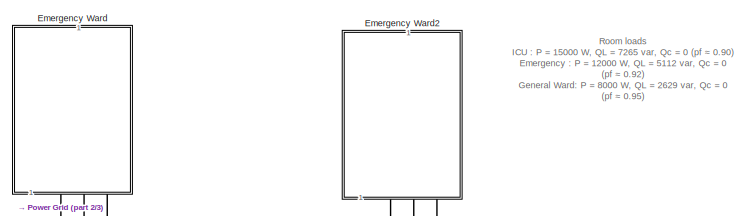
[diagram: root canvas - part 1/3, top center region]
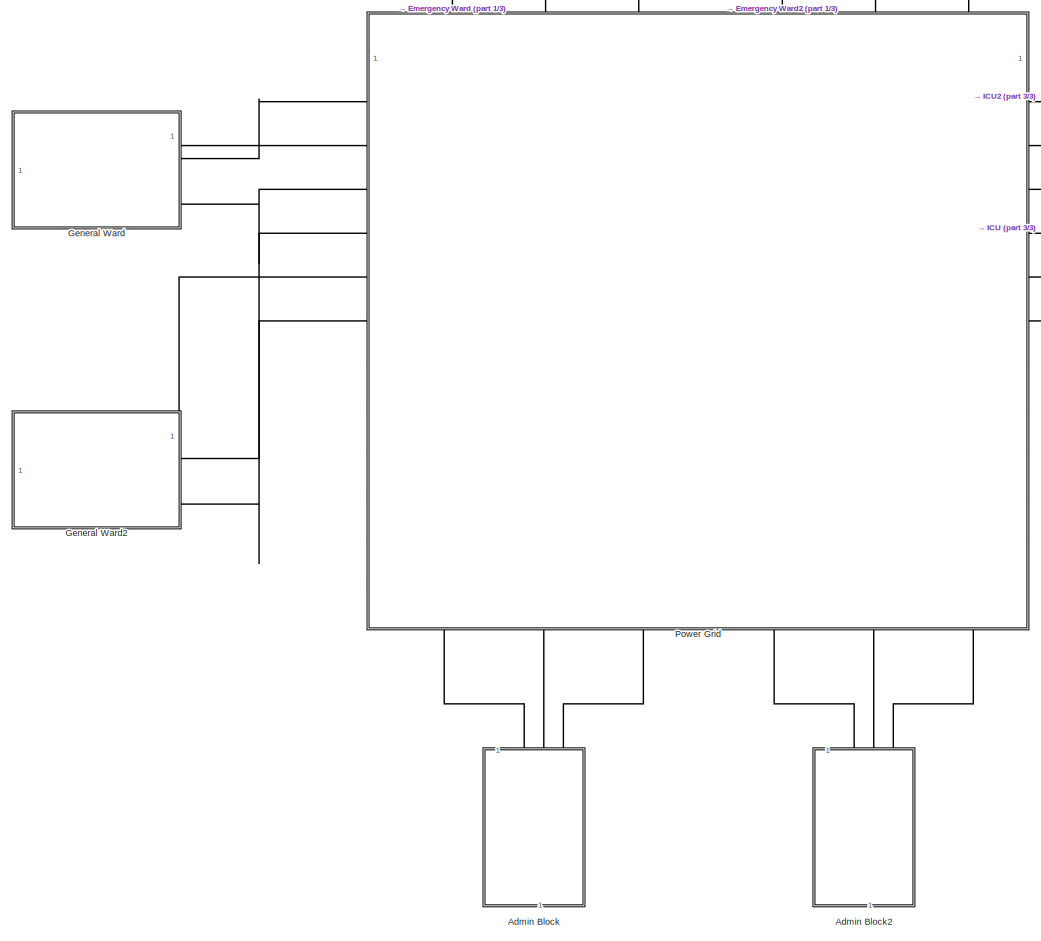
[diagram: root canvas - part 2/3, center side, full height]
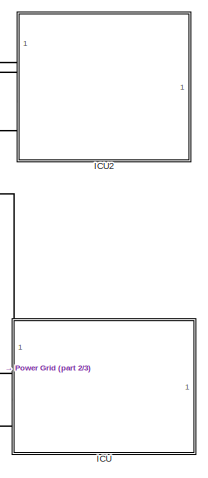
[diagram: root canvas - part 3/3, middle right region]
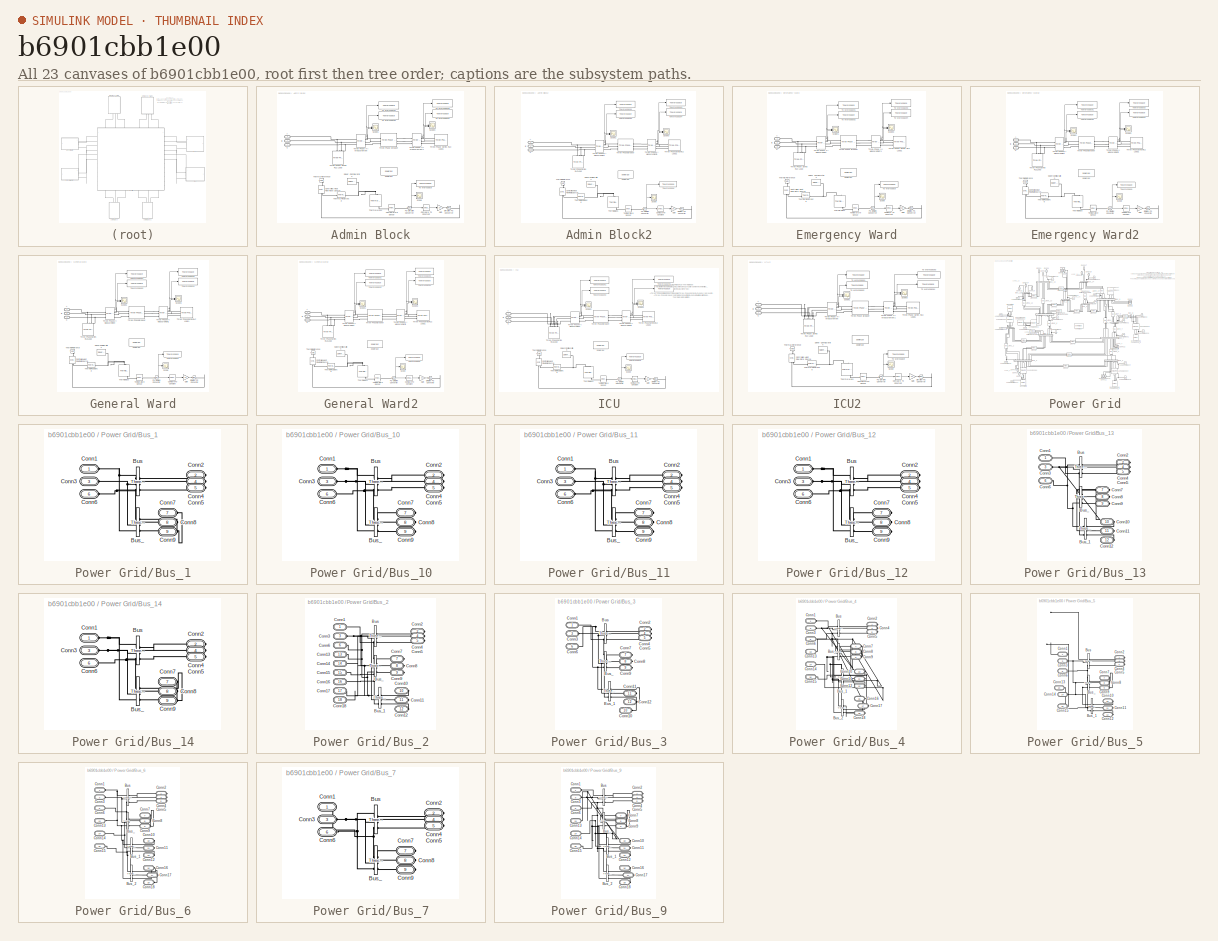
[diagram: thumbnail index - all 23 canvases of the model, root first then tree order]
MODEL slx_b6901cbb1e00
KIND model
CONFIG AbsTol = auto
CONFIG EnableMultiTasking = off
CONFIG FixedStep = auto
CONFIG MaxStep = auto
CONFIG MinStep = auto
CONFIG RelTol = 1e-3
CONFIG SampleTimeConstraint = Unconstrained
CONFIG SolverName = VariableStepAuto
CONFIG StartTime = 0.0
CONFIG StopTime = 5
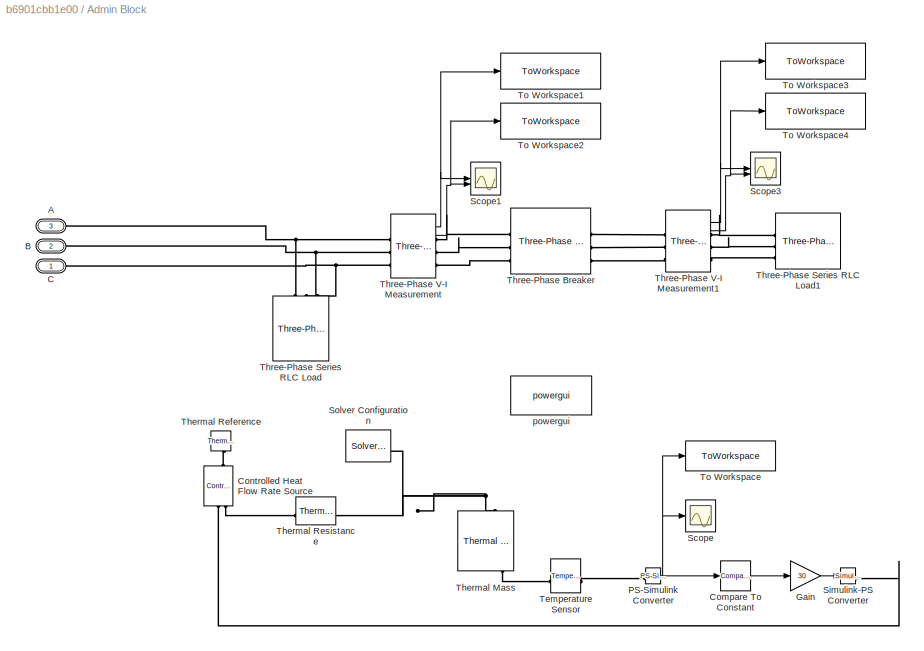
BLOCK [SubSystem] Admin Block
  NameLocation = left
BLOCK [PMIOPort] Admin Block/A
  Port = 3
  Side = Left
BLOCK [PMIOPort] Admin Block/B
  Port = 2
  Side = Left
BLOCK [PMIOPort] Admin Block/C
  Side = Left
BLOCK [Reference] Admin Block/Compare To Constant  REF=simulink/Logic and Bit
Operations/Compare
To Constant
  SourceBlock = simulink/Logic and Bit\nOperations/Compare\nTo Constant
  SourceType = Compare To Constant
BLOCK [Reference] Admin Block/Controlled Heat Flow Rate Source  REF=fl_lib/Thermal/Thermal Sources/Controlled Heat Flow
Rate Source
  NameLocation = right
  SourceBlock = fl_lib/Thermal/Thermal Sources/Controlled Heat Flow\nRate Source
  SourceType = Controlled Heat Flow\nRate Source
BLOCK [Gain] Admin Block/Gain
  Gain = 30
  ParamDataTypeStr = double
BLOCK [Reference] Admin Block/PS-Simulink Converter  REF=nesl_utility/PS-Simulink
Converter
  SourceBlock = nesl_utility/PS-Simulink\nConverter
  SourceType = PS-Simulink\nConverter
BLOCK [Scope] Admin Block/Scope
  ActiveDisplayYMaximum = 312.31320604953584
  ActiveDisplayYMinimum = 283.16288053798348
  ContainerLayout = {"WindowBounds":[128,48,1280,768]}
  Floating = off
  GraphicalSettings = {"Style":{"BackgroundColor":[0.12941176470588237,0.12941176470588237,0.12941176470588237],"AxesColor":[0.07058823529411765,0.07058823529411765,0.07058823529411765],"LabelsColor":[0.8509803921568627,0.8509803921568627,0.8509803921568627],"PreserveColors":false,"Visible":[true],"LineStyle":["-"],"LineWidth":[1.5],"BarWidth":[0.9],"LineColor":["auto"],"LineFaceAlpha":[1],"LineEdgeAlpha":[1],"Marker":...<+2034ch>  <repeated x7 — deduplicated; at blocks: Scope>
  MultipleDisplayCache = [{"MaxYLimMag":333.7066104863116,"MaxYLimReal":312.31320604953584,"MinYLimMag":296.25482105707647,"MinYLimReal":283.16288053798348,"PlotAsMagnitudePhase":false,"ShowGrid":true,"ShowLegend":false,"Title":"%<SignalLabel>","YLabel":""}]  <repeated x6 — deduplicated; at blocks: Scope>
  NumInputPorts = 1
  ScopeFrameLocation = container
  WasSavedAsWebScope = on
  WindowPosition = [128.000000,48.000000,1280.000000,768.000000,]
BLOCK [Scope] Admin Block/Scope1
  ActiveDisplayYMaximum = 34.056738382629064
  ActiveDisplayYMinimum = 34.034866793744406
  DataLoggingVariableName = ScopeData1
  Floating = off
  GraphicalSettings = {"Style":{"BackgroundColor":[0.12941176470588237,0.12941176470588237,0.12941176470588237],"AxesColor":[0.07058823529411765,0.07058823529411765,0.07058823529411765],"LabelsColor":[0.8509803921568627,0.8509803921568627,0.8509803921568627],"PreserveColors":false,"Visible":[true,true,true,true,true,true],"LineStyle":["-","-","-","-","-","-"],"LineWidth":[1.5,1.5,1.5,1.5,1.5,1.5],"BarWidth":[0.9,0.9,0....<+3005ch>  <repeated x4 — deduplicated; at blocks: Scope1>
  LayoutDimensionsString = [1,1]
  MultipleDisplayCache = [{"MaxYLimMag":402.606688680356,"MaxYLimReal":34.056738382629064,"MinYLimMag":0,"MinYLimReal":34.034866793744406,"PlotAsMagnitudePhase":false,"ShowGrid":true,"ShowLegend":false,"Title":"%<SignalLabel>","YLabel":""}]
  NumInputPorts = 2
  ScopeFrameLocation = window
  WasSavedAsWebScope = on
  WindowPosition = [0.000000,36.000000,1536.000000,793.000000,]
BLOCK [Scope] Admin Block/Scope3
  ActiveDisplayYMaximum = 17.089506515472429
  ActiveDisplayYMinimum = -12.660093592625985
  DataLoggingVariableName = ScopeData3
  Floating = off
  GraphicalSettings = {"AxesScalingProperties":{"AlignXAxis":"Center","AlignYAxis":"Center","AutoScaleXAxisLimits":false,"AxesScaling":"Manual","AxesScalingNumUpdates":10,"ExpandOnly":true,"ScaleAxesLimitsAtStop":false,"XAxisDataRange":100,"YAxisDataRange":80},"DisplayProperties":{"ColorOrder":["auto","auto","auto","auto","auto","auto","auto","auto","auto","auto","auto","auto","auto","auto","auto","auto","auto","auto",...<+2711ch>
  MultipleDisplayCache = [{"MaxYLimMag":400.39699046500692,"MaxYLimReal":17.089506515472429,"MinYLimMag":0,"MinYLimReal":-12.660093592625985,"PlotAsMagnitudePhase":false,"ShowGrid":true,"ShowLegend":false,"Title":"%<SignalLabel>","YLabel":""}]  <repeated x3 — deduplicated; at blocks: Scope3>
  NumInputPorts = 2
  ScopeFrameLocation = window
  WasSavedAsWebScope = on
  WindowPosition = [488.000000,222.000000,546.000000,420.000000,]
BLOCK [Reference] Admin Block/Simulink-PS Converter  REF=nesl_utility/Simulink-PS
Converter
  SourceBlock = nesl_utility/Simulink-PS\nConverter
  SourceType = Simulink-PS\nConverter
BLOCK [Reference] Admin Block/Solver Configuration  REF=nesl_utility/Solver
Configuration
  SourceBlock = nesl_utility/Solver\nConfiguration
  SourceType = Solver\nConfiguration
BLOCK [Reference] Admin Block/Temperature Sensor  REF=fl_lib/Thermal/Thermal Sensors/Temperature Sensor
  SourceBlock = fl_lib/Thermal/Thermal Sensors/Temperature Sensor
  SourceType = Temperature Sensor
BLOCK [Reference] Admin Block/Thermal Mass  REF=fl_lib/Thermal/Thermal Elements/Thermal Mass
  NameLocation = right
  SourceBlock = fl_lib/Thermal/Thermal Elements/Thermal Mass
  SourceType = Thermal Mass
BLOCK [Reference] Admin Block/Thermal Reference  REF=fl_lib/Thermal/Thermal Elements/Thermal Reference
  NameLocation = left
  SourceBlock = fl_lib/Thermal/Thermal Elements/Thermal Reference
  SourceType = Thermal Reference
BLOCK [Reference] Admin Block/Thermal Resistance  REF=fl_lib/Thermal/Thermal Elements/Thermal Resistance
  SourceBlock = fl_lib/Thermal/Thermal Elements/Thermal Resistance
  SourceType = Thermal Resistance
BLOCK [Reference] Admin Block/Three-Phase Breaker  REF=spsThreePhaseBreakerLib/Three-Phase Breaker
  LibrarySourceBlock = sps_lib/Power Grid Elements/Three-Phase Breaker
  SourceBlock = spsThreePhaseBreakerLib/Three-Phase Breaker
  SourceType = Three-Phase Breaker
BLOCK [Reference] Admin Block/Three-Phase Series RLC Load  REF=spsThreePhaseSeriesRLCLoadLib/Three-Phase
Series RLC Load
  AttributesFormatString = \n
  LibrarySourceBlock = sps_lib/Passives/Three-Phase\nSeries RLC Load
  SourceBlock = spsThreePhaseSeriesRLCLoadLib/Three-Phase\nSeries RLC Load
  SourceType = Three-Phase Series RLC Load
BLOCK [Reference] Admin Block/Three-Phase Series RLC Load1  REF=spsThreePhaseSeriesRLCLoadLib/Three-Phase
Series RLC Load
  AttributesFormatString = \n
  LibrarySourceBlock = sps_lib/Passives/Three-Phase\nSeries RLC Load
  NameLocation = right
  SourceBlock = spsThreePhaseSeriesRLCLoadLib/Three-Phase\nSeries RLC Load
  SourceType = Three-Phase Series RLC Load
BLOCK [Reference] Admin Block/Three-Phase V-I Measurement  REF=spsThreePhaseVIMeasurementLib/Three-Phase
V-I Measurement
  LibrarySourceBlock = sps_lib/Sensors and Measurements/Three-Phase\nV-I Measurement
  SourceBlock = spsThreePhaseVIMeasurementLib/Three-Phase\nV-I Measurement
  SourceType = Three-Phase VI Measurement
BLOCK [Reference] Admin Block/Three-Phase V-I Measurement1  REF=spsThreePhaseVIMeasurementLib/Three-Phase
V-I Measurement
  LibrarySourceBlock = sps_lib/Sensors and Measurements/Three-Phase\nV-I Measurement
  SourceBlock = spsThreePhaseVIMeasurementLib/Three-Phase\nV-I Measurement
  SourceType = Three-Phase VI Measurement
BLOCK [ToWorkspace] Admin Block/To Workspace
  FixptAsFi = on
  MaxDataPoints = inf
  SampleTime = -1
  VariableName = ADMIN_TEMP
BLOCK [ToWorkspace] Admin Block/To Workspace1
  FixptAsFi = on
  MaxDataPoints = inf
  SampleTime = -1
  VariableName = ADMIN_V_LOAD
BLOCK [ToWorkspace] Admin Block/To Workspace2
  FixptAsFi = on
  MaxDataPoints = inf
  SampleTime = -1
  VariableName = ADMIN_I_LOAD
BLOCK [ToWorkspace] Admin Block/To Workspace3
  FixptAsFi = on
  MaxDataPoints = inf
  SampleTime = -1
  VariableName = ADMIN_V_HVAC
BLOCK [ToWorkspace] Admin Block/To Workspace4
  FixptAsFi = on
  MaxDataPoints = inf
  SampleTime = -1
  VariableName = ADMIN_I_HVAC
BLOCK [Reference] Admin Block/powergui  REF=sps_lib/powergui
  LibrarySourceBlock = sps_lib/powergui
  Priority = 1
  SourceBlock = sps_lib/powergui
  SourceType = PSB option menu block
BLOCK [SubSystem] Admin Block2
  NameLocation = left
BLOCK [PMIOPort] Admin Block2/A
  Port = 3
  Side = Left
BLOCK [PMIOPort] Admin Block2/B
  Port = 2
  Side = Left
BLOCK [PMIOPort] Admin Block2/C
  Side = Left
BLOCK [Reference] Admin Block2/Compare To Constant  REF=simulink/Logic and Bit
Operations/Compare
To Constant
  SourceBlock = simulink/Logic and Bit\nOperations/Compare\nTo Constant
  SourceType = Compare To Constant
BLOCK [Reference] Admin Block2/Controlled Heat Flow Rate Source  REF=fl_lib/Thermal/Thermal Sources/Controlled Heat Flow
Rate Source
  NameLocation = right
  SourceBlock = fl_lib/Thermal/Thermal Sources/Controlled Heat Flow\nRate Source
  SourceType = Controlled Heat Flow\nRate Source
BLOCK [Gain] Admin Block2/Gain
  Gain = 30
  ParamDataTypeStr = double
BLOCK [Reference] Admin Block2/PS-Simulink Converter  REF=nesl_utility/PS-Simulink
Converter
  SourceBlock = nesl_utility/PS-Simulink\nConverter
  SourceType = PS-Simulink\nConverter
BLOCK [Scope] Admin Block2/Scope
  ActiveDisplayYMaximum = 312.31320604953584
  ActiveDisplayYMinimum = 283.16288053798348
  ContainerLayout = {"WindowBounds":[128,48,1280,768]}
  Floating = off
  NumInputPorts = 1
  ScopeFrameLocation = container
  WasSavedAsWebScope = on
  WindowPosition = [128.000000,48.000000,1280.000000,768.000000,]
BLOCK [Scope] Admin Block2/Scope1
  ActiveDisplayYMaximum = 1
  ActiveDisplayYMinimum = -1
  DataLoggingVariableName = ScopeData1
  Floating = off
  LayoutDimensionsString = [1,1]
  MultipleDisplayCache = [{"MaxYLimMag":1,"MaxYLimReal":1,"MinYLimMag":0,"MinYLimReal":-1,"PlotAsMagnitudePhase":false,"ShowGrid":true,"ShowLegend":false,"Title":"%<SignalLabel>","YLabel":""}]
  NumInputPorts = 2
  ScopeFrameLocation = window
  WasSavedAsWebScope = on
  WindowPosition = [0.000000,36.000000,1536.000000,793.000000,]
BLOCK [Scope] Admin Block2/Scope3
  ActiveDisplayYMaximum = 17.089506515472429
  ActiveDisplayYMinimum = -12.660093592625985
  DataLoggingVariableName = ScopeData3
  Floating = off
  GraphicalSettings = {"AxesScalingProperties":{"AlignXAxis":"Center","AlignYAxis":"Center","AutoScaleXAxisLimits":false,"AxesScaling":"Manual","AxesScalingNumUpdates":10,"ExpandOnly":true,"ScaleAxesLimitsAtStop":false,"XAxisDataRange":100,"YAxisDataRange":80},"DisplayProperties":{"ColorOrder":["auto","auto","auto","auto","auto","auto","auto","auto","auto","auto","auto","auto","auto","auto","auto","auto","auto","auto",...<+2711ch>
  NumInputPorts = 2
  ScopeFrameLocation = window
  WasSavedAsWebScope = on
  WindowPosition = [488.000000,222.000000,546.000000,420.000000,]
BLOCK [Reference] Admin Block2/Simulink-PS Converter  REF=nesl_utility/Simulink-PS
Converter
  SourceBlock = nesl_utility/Simulink-PS\nConverter
  SourceType = Simulink-PS\nConverter
BLOCK [Reference] Admin Block2/Solver Configuration  REF=nesl_utility/Solver
Configuration
  SourceBlock = nesl_utility/Solver\nConfiguration
  SourceType = Solver\nConfiguration
BLOCK [Reference] Admin Block2/Temperature Sensor  REF=fl_lib/Thermal/Thermal Sensors/Temperature Sensor
  SourceBlock = fl_lib/Thermal/Thermal Sensors/Temperature Sensor
  SourceType = Temperature Sensor
BLOCK [Reference] Admin Block2/Thermal Mass  REF=fl_lib/Thermal/Thermal Elements/Thermal Mass
  NameLocation = right
  SourceBlock = fl_lib/Thermal/Thermal Elements/Thermal Mass
  SourceType = Thermal Mass
BLOCK [Reference] Admin Block2/Thermal Reference  REF=fl_lib/Thermal/Thermal Elements/Thermal Reference
  NameLocation = left
  SourceBlock = fl_lib/Thermal/Thermal Elements/Thermal Reference
  SourceType = Thermal Reference
BLOCK [Reference] Admin Block2/Thermal Resistance  REF=fl_lib/Thermal/Thermal Elements/Thermal Resistance
  SourceBlock = fl_lib/Thermal/Thermal Elements/Thermal Resistance
  SourceType = Thermal Resistance
BLOCK [Reference] Admin Block2/Three-Phase Breaker  REF=spsThreePhaseBreakerLib/Three-Phase Breaker
  LibrarySourceBlock = sps_lib/Power Grid Elements/Three-Phase Breaker
  SourceBlock = spsThreePhaseBreakerLib/Three-Phase Breaker
  SourceType = Three-Phase Breaker
BLOCK [Reference] Admin Block2/Three-Phase Series RLC Load  REF=spsThreePhaseSeriesRLCLoadLib/Three-Phase
Series RLC Load
  AttributesFormatString = \n
  LibrarySourceBlock = sps_lib/Passives/Three-Phase\nSeries RLC Load
  SourceBlock = spsThreePhaseSeriesRLCLoadLib/Three-Phase\nSeries RLC Load
  SourceType = Three-Phase Series RLC Load
BLOCK [Reference] Admin Block2/Three-Phase Series RLC Load1  REF=spsThreePhaseSeriesRLCLoadLib/Three-Phase
Series RLC Load
  AttributesFormatString = \n
  LibrarySourceBlock = sps_lib/Passives/Three-Phase\nSeries RLC Load
  NameLocation = right
  SourceBlock = spsThreePhaseSeriesRLCLoadLib/Three-Phase\nSeries RLC Load
  SourceType = Three-Phase Series RLC Load
BLOCK [Reference] Admin Block2/Three-Phase V-I Measurement  REF=spsThreePhaseVIMeasurementLib/Three-Phase
V-I Measurement
  LibrarySourceBlock = sps_lib/Sensors and Measurements/Three-Phase\nV-I Measurement
  SourceBlock = spsThreePhaseVIMeasurementLib/Three-Phase\nV-I Measurement
  SourceType = Three-Phase VI Measurement
BLOCK [Reference] Admin Block2/Three-Phase V-I Measurement1  REF=spsThreePhaseVIMeasurementLib/Three-Phase
V-I Measurement
  LibrarySourceBlock = sps_lib/Sensors and Measurements/Three-Phase\nV-I Measurement
  SourceBlock = spsThreePhaseVIMeasurementLib/Three-Phase\nV-I Measurement
  SourceType = Three-Phase VI Measurement
BLOCK [ToWorkspace] Admin Block2/To Workspace
  FixptAsFi = on
  MaxDataPoints = inf
  SampleTime = -1
  VariableName = ADMIN2_TEMP
BLOCK [ToWorkspace] Admin Block2/To Workspace1
  FixptAsFi = on
  MaxDataPoints = inf
  SampleTime = -1
  VariableName = ADMIN2_V_LOAD
BLOCK [ToWorkspace] Admin Block2/To Workspace2
  FixptAsFi = on
  MaxDataPoints = inf
  SampleTime = -1
  VariableName = ADMIN2_I_LOAD
BLOCK [ToWorkspace] Admin Block2/To Workspace3
  FixptAsFi = on
  MaxDataPoints = inf
  SampleTime = -1
  VariableName = ADMIN2_V_HVAC
BLOCK [ToWorkspace] Admin Block2/To Workspace4
  FixptAsFi = on
  MaxDataPoints = inf
  SampleTime = -1
  VariableName = ADMIN2_I_HVAC
BLOCK [Reference] Admin Block2/powergui  REF=spspowerguiLib/powergui
  LibrarySourceBlock = sps_lib/powergui
  Priority = 1
  SourceBlock = spspowerguiLib/powergui
  SourceType = PSB option menu block
BLOCK [SubSystem] Emergency Ward
  NameLocation = right
BLOCK [PMIOPort] Emergency Ward/A
  Side = Left
BLOCK [PMIOPort] Emergency Ward/B
  Port = 2
  Side = Left
BLOCK [PMIOPort] Emergency Ward/C
  Port = 3
  Side = Left
BLOCK [Reference] Emergency Ward/Compare To Constant  REF=simulink/Logic and Bit
Operations/Compare
To Constant
  SourceBlock = simulink/Logic and Bit\nOperations/Compare\nTo Constant
  SourceType = Compare To Constant
BLOCK [Reference] Emergency Ward/Controlled Heat Flow Rate Source  REF=fl_lib/Thermal/Thermal Sources/Controlled Heat Flow
Rate Source
  NameLocation = right
  SourceBlock = fl_lib/Thermal/Thermal Sources/Controlled Heat Flow\nRate Source
  SourceType = Controlled Heat Flow\nRate Source
BLOCK [Gain] Emergency Ward/Gain
  Gain = 50
  ParamDataTypeStr = double
BLOCK [Reference] Emergency Ward/PS-Simulink Converter  REF=nesl_utility/PS-Simulink
Converter
  SourceBlock = nesl_utility/PS-Simulink\nConverter
  SourceType = PS-Simulink\nConverter
BLOCK [Scope] Emergency Ward/Scope
  ActiveDisplayYMaximum = 305.87921634168447
  ActiveDisplayYMinimum = 287.03749587914842
  ContainerLayout = {"WindowBounds":[120,18,1295,806]}
  Floating = off
  MultipleDisplayCache = [{"MaxYLimMag":333.7066104863116,"MaxYLimReal":305.87921634168447,"MinYLimMag":296.25482105707647,"MinYLimReal":287.03749587914842,"PlotAsMagnitudePhase":false,"ShowGrid":true,"ShowLegend":false,"Title":"%<SignalLabel>","YLabel":""}]
  NumInputPorts = 1
  ScopeFrameLocation = container
  Visible = on
  WasSavedAsWebScope = on
  WindowPosition = [128.000000,48.000000,1281.000000,768.000000,]
BLOCK [Scope] Emergency Ward/Scope1
  ActiveDisplayYMaximum = 30737.091390903683
  ActiveDisplayYMinimum = -26725.779530463311
  DataLoggingVariableName = ScopeData1
  Floating = off
  GraphicalSettings = {"Style":{"BackgroundColor":[0.12941176470588237,0.12941176470588237,0.12941176470588237],"AxesColor":[0.07058823529411765,0.07058823529411765,0.07058823529411765],"LabelsColor":[0.8509803921568627,0.8509803921568627,0.8509803921568627],"PreserveColors":false,"Visible":[true,true,true,true,true,true],"LineStyle":["-","-","-","-","-","-"],"LineWidth":[1.5,1.5,1.5,1.5,1.5,1.5],"BarWidth":[0.9,0.9,0....<+3009ch>  <repeated x3 — deduplicated; at blocks: Scope1>
  LayoutDimensionsString = [1,1]
  MultipleDisplayCache = [{"MaxYLimMag":25791.811235050816,"MaxYLimReal":30737.091390903683,"MinYLimMag":0,"MinYLimReal":-26725.779530463311,"PlotAsMagnitudePhase":false,"ShowGrid":true,"ShowLegend":false,"Title":"%<SignalLabel>","YLabel":""}]
  NumInputPorts = 2
  ScopeFrameLocation = window
  WasSavedAsWebScope = on
  WindowPosition = [0.000000,36.000000,1536.000000,793.000000,]
BLOCK [Scope] Emergency Ward/Scope3
  ActiveDisplayYMaximum = 19170.3316166995
  ActiveDisplayYMinimum = -23328.185292377526
  DataLoggingVariableName = ScopeData3
  Floating = off
  GraphicalSettings = {"Style":{"BackgroundColor":[0.12941176470588237,0.12941176470588237,0.12941176470588237],"AxesColor":[0.07058823529411765,0.07058823529411765,0.07058823529411765],"LabelsColor":[0.8509803921568627,0.8509803921568627,0.8509803921568627],"PreserveColors":false,"Visible":[true,true,true,true,true,true],"LineStyle":["-","-","-","-","-","-"],"LineWidth":[1.5,1.5,1.5,1.5,1.5,1.5],"BarWidth":[0.9,0.9,0....<+2688ch>  <repeated x4 — deduplicated; at blocks: Scope3>
  MultipleDisplayCache = [{"MaxYLimMag":23328.185292377526,"MaxYLimReal":19170.3316166995,"MinYLimMag":0,"MinYLimReal":-23328.185292377526,"PlotAsMagnitudePhase":false,"ShowGrid":true,"ShowLegend":false,"Title":"%<SignalLabel>","YLabel":""}]
  NumInputPorts = 2
  ScopeFrameLocation = window
  WasSavedAsWebScope = on
  WindowPosition = [1.000000,49.000000,1536.000000,793.000000,]
BLOCK [Reference] Emergency Ward/Simulink-PS Converter  REF=nesl_utility/Simulink-PS
Converter
  SourceBlock = nesl_utility/Simulink-PS\nConverter
  SourceType = Simulink-PS\nConverter
BLOCK [Reference] Emergency Ward/Solver Configuration  REF=nesl_utility/Solver
Configuration
  SourceBlock = nesl_utility/Solver\nConfiguration
  SourceType = Solver\nConfiguration
BLOCK [Reference] Emergency Ward/Temperature Sensor  REF=fl_lib/Thermal/Thermal Sensors/Temperature Sensor
  SourceBlock = fl_lib/Thermal/Thermal Sensors/Temperature Sensor
  SourceType = Temperature Sensor
BLOCK [Reference] Emergency Ward/Thermal Mass  REF=fl_lib/Thermal/Thermal Elements/Thermal Mass
  NameLocation = right
  SourceBlock = fl_lib/Thermal/Thermal Elements/Thermal Mass
  SourceType = Thermal Mass
BLOCK [Reference] Emergency Ward/Thermal Reference  REF=fl_lib/Thermal/Thermal Elements/Thermal Reference
  NameLocation = left
  SourceBlock = fl_lib/Thermal/Thermal Elements/Thermal Reference
  SourceType = Thermal Reference
BLOCK [Reference] Emergency Ward/Thermal Resistance  REF=fl_lib/Thermal/Thermal Elements/Thermal Resistance
  SourceBlock = fl_lib/Thermal/Thermal Elements/Thermal Resistance
  SourceType = Thermal Resistance
BLOCK [Reference] Emergency Ward/Three-Phase Breaker  REF=spsThreePhaseBreakerLib/Three-Phase Breaker
  LibrarySourceBlock = sps_lib/Power Grid Elements/Three-Phase Breaker
  SourceBlock = spsThreePhaseBreakerLib/Three-Phase Breaker
  SourceType = Three-Phase Breaker
BLOCK [Reference] Emergency Ward/Three-Phase Series RLC Load  REF=spsThreePhaseSeriesRLCLoadLib/Three-Phase
Series RLC Load
  AttributesFormatString = \n
  LibrarySourceBlock = sps_lib/Passives/Three-Phase\nSeries RLC Load
  SourceBlock = spsThreePhaseSeriesRLCLoadLib/Three-Phase\nSeries RLC Load
  SourceType = Three-Phase Series RLC Load
BLOCK [Reference] Emergency Ward/Three-Phase Series RLC Load1  REF=spsThreePhaseSeriesRLCLoadLib/Three-Phase
Series RLC Load
  AttributesFormatString = \n
  LibrarySourceBlock = sps_lib/Passives/Three-Phase\nSeries RLC Load
  NameLocation = right
  SourceBlock = spsThreePhaseSeriesRLCLoadLib/Three-Phase\nSeries RLC Load
  SourceType = Three-Phase Series RLC Load
BLOCK [Reference] Emergency Ward/Three-Phase V-I Measurement  REF=spsThreePhaseVIMeasurementLib/Three-Phase
V-I Measurement
  LibrarySourceBlock = sps_lib/Sensors and Measurements/Three-Phase\nV-I Measurement
  SourceBlock = spsThreePhaseVIMeasurementLib/Three-Phase\nV-I Measurement
  SourceType = Three-Phase VI Measurement
BLOCK [Reference] Emergency Ward/Three-Phase V-I Measurement1  REF=spsThreePhaseVIMeasurementLib/Three-Phase
V-I Measurement
  LibrarySourceBlock = sps_lib/Sensors and Measurements/Three-Phase\nV-I Measurement
  SourceBlock = spsThreePhaseVIMeasurementLib/Three-Phase\nV-I Measurement
  SourceType = Three-Phase VI Measurement
BLOCK [ToWorkspace] Emergency Ward/To Workspace
  FixptAsFi = on
  MaxDataPoints = inf
  SampleTime = -1
  VariableName = EWARD_TEMP
BLOCK [ToWorkspace] Emergency Ward/To Workspace1
  FixptAsFi = on
  MaxDataPoints = inf
  SampleTime = -1
  VariableName = EWARD_V_LOAD
BLOCK [ToWorkspace] Emergency Ward/To Workspace2
  FixptAsFi = on
  MaxDataPoints = inf
  SampleTime = -1
  VariableName = EWARD_I_LOAD
BLOCK [ToWorkspace] Emergency Ward/To Workspace3
  FixptAsFi = on
  MaxDataPoints = inf
  SampleTime = -1
  VariableName = EWARD_V_HVAC
BLOCK [ToWorkspace] Emergency Ward/To Workspace4
  FixptAsFi = on
  MaxDataPoints = inf
  SampleTime = -1
  VariableName = EWARD_I_HVAC
BLOCK [Reference] Emergency Ward/powergui  REF=spspowerguiLib/powergui
  LibrarySourceBlock = sps_lib/powergui
  Priority = 1
  SourceBlock = spspowerguiLib/powergui
  SourceType = PSB option menu block
BLOCK [SubSystem] Emergency Ward2
  NameLocation = right
BLOCK [PMIOPort] Emergency Ward2/A
  Side = Left
BLOCK [PMIOPort] Emergency Ward2/B
  Port = 2
  Side = Left
BLOCK [PMIOPort] Emergency Ward2/C
  Port = 3
  Side = Left
BLOCK [Reference] Emergency Ward2/Compare To Constant  REF=simulink/Logic and Bit
Operations/Compare
To Constant
  SourceBlock = simulink/Logic and Bit\nOperations/Compare\nTo Constant
  SourceType = Compare To Constant
BLOCK [Reference] Emergency Ward2/Controlled Heat Flow Rate Source  REF=fl_lib/Thermal/Thermal Sources/Controlled Heat Flow
Rate Source
  NameLocation = right
  SourceBlock = fl_lib/Thermal/Thermal Sources/Controlled Heat Flow\nRate Source
  SourceType = Controlled Heat Flow\nRate Source
BLOCK [Gain] Emergency Ward2/Gain
  Gain = 50
  ParamDataTypeStr = double
BLOCK [Reference] Emergency Ward2/PS-Simulink Converter  REF=nesl_utility/PS-Simulink
Converter
  SourceBlock = nesl_utility/PS-Simulink\nConverter
  SourceType = PS-Simulink\nConverter
BLOCK [Scope] Emergency Ward2/Scope
  ActiveDisplayYMaximum = 312.31320604953584
  ActiveDisplayYMinimum = 283.16288053798348
  ContainerLayout = {"WindowBounds":[128,48,1280,768]}
  Floating = off
  NumInputPorts = 1
  ScopeFrameLocation = container
  WasSavedAsWebScope = on
  WindowPosition = [128.000000,48.000000,1280.000000,768.000000,]
BLOCK [Scope] Emergency Ward2/Scope1
  ActiveDisplayYMaximum = 21691.878188343202
  ActiveDisplayYMinimum = -21277.928587762108
  DataLoggingVariableName = ScopeData1
  Floating = off
  LayoutDimensionsString = [1,1]
  MultipleDisplayCache = [{"MaxYLimMag":20352.710736163579,"MaxYLimReal":21691.878188343202,"MinYLimMag":0,"MinYLimReal":-21277.928587762108,"PlotAsMagnitudePhase":false,"ShowGrid":true,"ShowLegend":false,"Title":"%<SignalLabel>","YLabel":""}]
  NumInputPorts = 2
  ScopeFrameLocation = window
  WasSavedAsWebScope = on
  WindowPosition = [0.000000,36.000000,1536.000000,793.000000,]
BLOCK [Scope] Emergency Ward2/Scope3
  ActiveDisplayYMaximum = 7246.715049133476
  ActiveDisplayYMinimum = -13751.921422579007
  DataLoggingVariableName = ScopeData3
  Floating = off
  GraphicalSettings = {"Style":{"BackgroundColor":[0.12941176470588237,0.12941176470588237,0.12941176470588237],"AxesColor":[0.07058823529411765,0.07058823529411765,0.07058823529411765],"LabelsColor":[0.8509803921568627,0.8509803921568627,0.8509803921568627],"PreserveColors":false,"Visible":[true,true,true,true,true,true],"LineStyle":["-","-","-","-","-","-"],"LineWidth":[1.5,1.5,1.5,1.5,1.5,1.5],"BarWidth":[0.9,0.9,0....<+2690ch>
  MultipleDisplayCache = [{"MaxYLimMag":13844.828892239131,"MaxYLimReal":7246.715049133476,"MinYLimMag":0,"MinYLimReal":-13751.921422579007,"PlotAsMagnitudePhase":false,"ShowGrid":true,"ShowLegend":false,"Title":"%<SignalLabel>","YLabel":""}]
  NumInputPorts = 2
  ScopeFrameLocation = window
  WasSavedAsWebScope = on
  WindowPosition = [488.000000,222.000000,546.000000,420.000000,]
BLOCK [Reference] Emergency Ward2/Simulink-PS Converter  REF=nesl_utility/Simulink-PS
Converter
  SourceBlock = nesl_utility/Simulink-PS\nConverter
  SourceType = Simulink-PS\nConverter
BLOCK [Reference] Emergency Ward2/Solver Configuration  REF=nesl_utility/Solver
Configuration
  SourceBlock = nesl_utility/Solver\nConfiguration
  SourceType = Solver\nConfiguration
BLOCK [Reference] Emergency Ward2/Temperature Sensor  REF=fl_lib/Thermal/Thermal Sensors/Temperature Sensor
  SourceBlock = fl_lib/Thermal/Thermal Sensors/Temperature Sensor
  SourceType = Temperature Sensor
BLOCK [Reference] Emergency Ward2/Thermal Mass  REF=fl_lib/Thermal/Thermal Elements/Thermal Mass
  NameLocation = right
  SourceBlock = fl_lib/Thermal/Thermal Elements/Thermal Mass
  SourceType = Thermal Mass
BLOCK [Reference] Emergency Ward2/Thermal Reference  REF=fl_lib/Thermal/Thermal Elements/Thermal Reference
  NameLocation = left
  SourceBlock = fl_lib/Thermal/Thermal Elements/Thermal Reference
  SourceType = Thermal Reference
BLOCK [Reference] Emergency Ward2/Thermal Resistance  REF=fl_lib/Thermal/Thermal Elements/Thermal Resistance
  SourceBlock = fl_lib/Thermal/Thermal Elements/Thermal Resistance
  SourceType = Thermal Resistance
BLOCK [Reference] Emergency Ward2/Three-Phase Breaker  REF=spsThreePhaseBreakerLib/Three-Phase Breaker
  LibrarySourceBlock = sps_lib/Power Grid Elements/Three-Phase Breaker
  SourceBlock = spsThreePhaseBreakerLib/Three-Phase Breaker
  SourceType = Three-Phase Breaker
BLOCK [Reference] Emergency Ward2/Three-Phase Series RLC Load  REF=spsThreePhaseSeriesRLCLoadLib/Three-Phase
Series RLC Load
  AttributesFormatString = \n
  LibrarySourceBlock = sps_lib/Passives/Three-Phase\nSeries RLC Load
  SourceBlock = spsThreePhaseSeriesRLCLoadLib/Three-Phase\nSeries RLC Load
  SourceType = Three-Phase Series RLC Load
BLOCK [Reference] Emergency Ward2/Three-Phase Series RLC Load1  REF=spsThreePhaseSeriesRLCLoadLib/Three-Phase
Series RLC Load
  AttributesFormatString = \n
  LibrarySourceBlock = sps_lib/Passives/Three-Phase\nSeries RLC Load
  NameLocation = right
  SourceBlock = spsThreePhaseSeriesRLCLoadLib/Three-Phase\nSeries RLC Load
  SourceType = Three-Phase Series RLC Load
BLOCK [Reference] Emergency Ward2/Three-Phase V-I Measurement  REF=spsThreePhaseVIMeasurementLib/Three-Phase
V-I Measurement
  LibrarySourceBlock = sps_lib/Sensors and Measurements/Three-Phase\nV-I Measurement
  SourceBlock = spsThreePhaseVIMeasurementLib/Three-Phase\nV-I Measurement
  SourceType = Three-Phase VI Measurement
BLOCK [Reference] Emergency Ward2/Three-Phase V-I Measurement1  REF=spsThreePhaseVIMeasurementLib/Three-Phase
V-I Measurement
  LibrarySourceBlock = sps_lib/Sensors and Measurements/Three-Phase\nV-I Measurement
  SourceBlock = spsThreePhaseVIMeasurementLib/Three-Phase\nV-I Measurement
  SourceType = Three-Phase VI Measurement
BLOCK [ToWorkspace] Emergency Ward2/To Workspace
  FixptAsFi = on
  MaxDataPoints = inf
  SampleTime = -1
  VariableName = EWARD2_TEMP
BLOCK [ToWorkspace] Emergency Ward2/To Workspace1
  FixptAsFi = on
  MaxDataPoints = inf
  SampleTime = -1
  VariableName = EWARD2_V_LOAD
BLOCK [ToWorkspace] Emergency Ward2/To Workspace2
  FixptAsFi = on
  MaxDataPoints = inf
  SampleTime = -1
  VariableName = EWARD2_I_LOAD
BLOCK [ToWorkspace] Emergency Ward2/To Workspace3
  FixptAsFi = on
  MaxDataPoints = inf
  SampleTime = -1
  VariableName = EWARD2_V_HVAC
BLOCK [ToWorkspace] Emergency Ward2/To Workspace4
  FixptAsFi = on
  MaxDataPoints = inf
  SampleTime = -1
  VariableName = EWARD2_I_HVAC
BLOCK [Reference] Emergency Ward2/powergui  REF=spspowerguiLib/powergui
  LibrarySourceBlock = sps_lib/powergui
  Priority = 1
  SourceBlock = spspowerguiLib/powergui
  SourceType = PSB option menu block
BLOCK [SubSystem] General Ward
  NameLocation = top
BLOCK [PMIOPort] General Ward/A
  Side = Left
BLOCK [PMIOPort] General Ward/B
  Port = 2
  Side = Left
BLOCK [PMIOPort] General Ward/C
  Port = 3
  Side = Left
BLOCK [Reference] General Ward/Compare To Constant  REF=simulink/Logic and Bit
Operations/Compare
To Constant
  SourceBlock = simulink/Logic and Bit\nOperations/Compare\nTo Constant
  SourceType = Compare To Constant
BLOCK [Reference] General Ward/Controlled Heat Flow Rate Source  REF=fl_lib/Thermal/Thermal Sources/Controlled Heat Flow
Rate Source
  NameLocation = right
  SourceBlock = fl_lib/Thermal/Thermal Sources/Controlled Heat Flow\nRate Source
  SourceType = Controlled Heat Flow\nRate Source
BLOCK [Gain] General Ward/Gain
  Gain = 40
  ParamDataTypeStr = double
BLOCK [Reference] General Ward/PS-Simulink Converter  REF=nesl_utility/PS-Simulink
Converter
  SourceBlock = nesl_utility/PS-Simulink\nConverter
  SourceType = PS-Simulink\nConverter
BLOCK [Scope] General Ward/Scope
  ActiveDisplayYMaximum = 312.31320604953584
  ActiveDisplayYMinimum = 283.16288053798348
  ContainerLayout = {"WindowBounds":[128,48,1280,768]}
  Floating = off
  NumInputPorts = 1
  ScopeFrameLocation = container
  WasSavedAsWebScope = on
  WindowPosition = [128.000000,48.000000,1280.000000,768.000000,]
BLOCK [Scope] General Ward/Scope1
  ActiveDisplayYMaximum = 34.046356087024286
  ActiveDisplayYMinimum = 34.045991689279816
  DataLoggingVariableName = ScopeData1
  Floating = off
  LayoutDimensionsString = [1,1]
  MultipleDisplayCache = [{"MaxYLimMag":402.606688680356,"MaxYLimReal":34.046356087024286,"MinYLimMag":0,"MinYLimReal":34.045991689279816,"PlotAsMagnitudePhase":false,"ShowGrid":true,"ShowLegend":false,"Title":"%<SignalLabel>","YLabel":""}]
  NumInputPorts = 2
  ScopeFrameLocation = window
  WasSavedAsWebScope = on
  WindowPosition = [0.000000,36.000000,1536.000000,793.000000,]
BLOCK [Scope] General Ward/Scope3
  ActiveDisplayYMaximum = 17.089506515472429
  ActiveDisplayYMinimum = -12.660093592625985
  DataLoggingVariableName = ScopeData3
  Floating = off
  NumInputPorts = 2
  ScopeFrameLocation = window
  WasSavedAsWebScope = on
  WindowPosition = [488.000000,222.000000,546.000000,420.000000,]
BLOCK [Reference] General Ward/Simulink-PS Converter  REF=nesl_utility/Simulink-PS
Converter
  SourceBlock = nesl_utility/Simulink-PS\nConverter
  SourceType = Simulink-PS\nConverter
BLOCK [Reference] General Ward/Solver Configuration  REF=nesl_utility/Solver
Configuration
  SourceBlock = nesl_utility/Solver\nConfiguration
  SourceType = Solver\nConfiguration
BLOCK [Reference] General Ward/Temperature Sensor  REF=fl_lib/Thermal/Thermal Sensors/Temperature Sensor
  SourceBlock = fl_lib/Thermal/Thermal Sensors/Temperature Sensor
  SourceType = Temperature Sensor
BLOCK [Reference] General Ward/Thermal Mass  REF=fl_lib/Thermal/Thermal Elements/Thermal Mass
  NameLocation = right
  SourceBlock = fl_lib/Thermal/Thermal Elements/Thermal Mass
  SourceType = Thermal Mass
BLOCK [Reference] General Ward/Thermal Reference  REF=fl_lib/Thermal/Thermal Elements/Thermal Reference
  NameLocation = left
  SourceBlock = fl_lib/Thermal/Thermal Elements/Thermal Reference
  SourceType = Thermal Reference
BLOCK [Reference] General Ward/Thermal Resistance  REF=fl_lib/Thermal/Thermal Elements/Thermal Resistance
  SourceBlock = fl_lib/Thermal/Thermal Elements/Thermal Resistance
  SourceType = Thermal Resistance
BLOCK [Reference] General Ward/Three-Phase Breaker  REF=spsThreePhaseBreakerLib/Three-Phase Breaker
  LibrarySourceBlock = sps_lib/Power Grid Elements/Three-Phase Breaker
  SourceBlock = spsThreePhaseBreakerLib/Three-Phase Breaker
  SourceType = Three-Phase Breaker
BLOCK [Reference] General Ward/Three-Phase Series RLC Load  REF=spsThreePhaseSeriesRLCLoadLib/Three-Phase
Series RLC Load
  AttributesFormatString = \n
  LibrarySourceBlock = sps_lib/Passives/Three-Phase\nSeries RLC Load
  SourceBlock = spsThreePhaseSeriesRLCLoadLib/Three-Phase\nSeries RLC Load
  SourceType = Three-Phase Series RLC Load
BLOCK [Reference] General Ward/Three-Phase Series RLC Load1  REF=spsThreePhaseSeriesRLCLoadLib/Three-Phase
Series RLC Load
  AttributesFormatString = \n
  LibrarySourceBlock = sps_lib/Passives/Three-Phase\nSeries RLC Load
  NameLocation = right
  SourceBlock = spsThreePhaseSeriesRLCLoadLib/Three-Phase\nSeries RLC Load
  SourceType = Three-Phase Series RLC Load
BLOCK [Reference] General Ward/Three-Phase V-I Measurement  REF=spsThreePhaseVIMeasurementLib/Three-Phase
V-I Measurement
  LibrarySourceBlock = sps_lib/Sensors and Measurements/Three-Phase\nV-I Measurement
  SourceBlock = spsThreePhaseVIMeasurementLib/Three-Phase\nV-I Measurement
  SourceType = Three-Phase VI Measurement
BLOCK [Reference] General Ward/Three-Phase V-I Measurement1  REF=spsThreePhaseVIMeasurementLib/Three-Phase
V-I Measurement
  LibrarySourceBlock = sps_lib/Sensors and Measurements/Three-Phase\nV-I Measurement
  SourceBlock = spsThreePhaseVIMeasurementLib/Three-Phase\nV-I Measurement
  SourceType = Three-Phase VI Measurement
BLOCK [ToWorkspace] General Ward/To Workspace
  FixptAsFi = on
  MaxDataPoints = inf
  SampleTime = -1
  VariableName = GWARD_TEMP
BLOCK [ToWorkspace] General Ward/To Workspace1
  FixptAsFi = on
  MaxDataPoints = inf
  SampleTime = -1
  VariableName = GWARD_V_LOAD
BLOCK [ToWorkspace] General Ward/To Workspace2
  FixptAsFi = on
  MaxDataPoints = inf
  SampleTime = -1
  VariableName = GWARD_I_LOAD
BLOCK [ToWorkspace] General Ward/To Workspace3
  FixptAsFi = on
  MaxDataPoints = inf
  SampleTime = -1
  VariableName = GWARD_V_HVAC
BLOCK [ToWorkspace] General Ward/To Workspace4
  FixptAsFi = on
  MaxDataPoints = inf
  SampleTime = -1
  VariableName = GWARD_I_HVAC
BLOCK [Reference] General Ward/powergui  REF=spspowerguiLib/powergui
  LibrarySourceBlock = sps_lib/powergui
  Priority = 1
  SourceBlock = spspowerguiLib/powergui
  SourceType = PSB option menu block
BLOCK [SubSystem] General Ward2
  NameLocation = top
BLOCK [PMIOPort] General Ward2/A
  Side = Left
BLOCK [PMIOPort] General Ward2/B
  Port = 2
  Side = Left
BLOCK [PMIOPort] General Ward2/C
  Port = 3
  Side = Left
BLOCK [Reference] General Ward2/Compare To Constant  REF=simulink/Logic and Bit
Operations/Compare
To Constant
  SourceBlock = simulink/Logic and Bit\nOperations/Compare\nTo Constant
  SourceType = Compare To Constant
BLOCK [Reference] General Ward2/Controlled Heat Flow Rate Source  REF=fl_lib/Thermal/Thermal Sources/Controlled Heat Flow
Rate Source
  NameLocation = right
  SourceBlock = fl_lib/Thermal/Thermal Sources/Controlled Heat Flow\nRate Source
  SourceType = Controlled Heat Flow\nRate Source
BLOCK [Gain] General Ward2/Gain
  Gain = 40
  ParamDataTypeStr = double
BLOCK [Reference] General Ward2/PS-Simulink Converter  REF=nesl_utility/PS-Simulink
Converter
  SourceBlock = nesl_utility/PS-Simulink\nConverter
  SourceType = PS-Simulink\nConverter
BLOCK [Scope] General Ward2/Scope
  ActiveDisplayYMaximum = 312.31320604953584
  ActiveDisplayYMinimum = 283.16288053798348
  ContainerLayout = {"WindowBounds":[128,48,1280,768]}
  Floating = off
  NumInputPorts = 1
  ScopeFrameLocation = container
  WasSavedAsWebScope = on
  WindowPosition = [128.000000,48.000000,1280.000000,768.000000,]
BLOCK [Scope] General Ward2/Scope1
  ActiveDisplayYMaximum = 66160.172439438349
  ActiveDisplayYMinimum = -65940.5098785614
  DataLoggingVariableName = ScopeData1
  Floating = off
  GraphicalSettings = {"Style":{"BackgroundColor":[0.12941176470588237,0.12941176470588237,0.12941176470588237],"AxesColor":[0.07058823529411765,0.07058823529411765,0.07058823529411765],"LabelsColor":[0.8509803921568627,0.8509803921568627,0.8509803921568627],"PreserveColors":false,"Visible":[true,true,true,true,true,true],"LineStyle":["-","-","-","-","-","-"],"LineWidth":[1.5,1.5,1.5,1.5,1.5,1.5],"BarWidth":[0.9,0.9,0....<+3553ch>
  LayoutDimensionsString = [1,2]
  MultipleDisplayCache = [{"MaxYLimMag":66160.172439438349,"MaxYLimReal":66160.172439438349,"MinYLimMag":0,"MinYLimReal":-65940.5098785614,"PlotAsMagnitudePhase":false,"ShowGrid":true,"ShowLegend":false,"Title":"%<SignalLabel>","YLabel":""},{"MaxYLimMag":66160.172439438349,"MaxYLimReal":62581.752610942989,"MinYLimMag":0,"MinYLimReal":-62505.975349100845,"PlotAsMagnitudePhase":false,"ShowGrid":true,"ShowLegend":false,"Titl...<+33ch>
  NumInputPorts = 2
  ScopeFrameLocation = window
  WasSavedAsWebScope = on
  WindowPosition = [0.000000,36.000000,1536.000000,793.000000,]
BLOCK [Scope] General Ward2/Scope3
  ActiveDisplayYMaximum = 54528.277103265718
  ActiveDisplayYMinimum = -51286.007351212284
  DataLoggingVariableName = ScopeData3
  Floating = off
  MultipleDisplayCache = [{"MaxYLimMag":54528.277103265718,"MaxYLimReal":54528.277103265718,"MinYLimMag":0,"MinYLimReal":-51286.007351212284,"PlotAsMagnitudePhase":false,"ShowGrid":true,"ShowLegend":false,"Title":"%<SignalLabel>","YLabel":""}]
  NumInputPorts = 2
  ScopeFrameLocation = window
  WasSavedAsWebScope = on
  WindowPosition = [946.000000,201.000000,546.000000,420.000000,]
BLOCK [Reference] General Ward2/Simulink-PS Converter  REF=nesl_utility/Simulink-PS
Converter
  SourceBlock = nesl_utility/Simulink-PS\nConverter
  SourceType = Simulink-PS\nConverter
BLOCK [Reference] General Ward2/Solver Configuration  REF=nesl_utility/Solver
Configuration
  SourceBlock = nesl_utility/Solver\nConfiguration
  SourceType = Solver\nConfiguration
BLOCK [Reference] General Ward2/Temperature Sensor  REF=fl_lib/Thermal/Thermal Sensors/Temperature Sensor
  SourceBlock = fl_lib/Thermal/Thermal Sensors/Temperature Sensor
  SourceType = Temperature Sensor
BLOCK [Reference] General Ward2/Thermal Mass  REF=fl_lib/Thermal/Thermal Elements/Thermal Mass
  NameLocation = right
  SourceBlock = fl_lib/Thermal/Thermal Elements/Thermal Mass
  SourceType = Thermal Mass
BLOCK [Reference] General Ward2/Thermal Reference  REF=fl_lib/Thermal/Thermal Elements/Thermal Reference
  NameLocation = left
  SourceBlock = fl_lib/Thermal/Thermal Elements/Thermal Reference
  SourceType = Thermal Reference
BLOCK [Reference] General Ward2/Thermal Resistance  REF=fl_lib/Thermal/Thermal Elements/Thermal Resistance
  SourceBlock = fl_lib/Thermal/Thermal Elements/Thermal Resistance
  SourceType = Thermal Resistance
BLOCK [Reference] General Ward2/Three-Phase Breaker  REF=spsThreePhaseBreakerLib/Three-Phase Breaker
  LibrarySourceBlock = sps_lib/Power Grid Elements/Three-Phase Breaker
  SourceBlock = spsThreePhaseBreakerLib/Three-Phase Breaker
  SourceType = Three-Phase Breaker
BLOCK [Reference] General Ward2/Three-Phase Series RLC Load  REF=spsThreePhaseSeriesRLCLoadLib/Three-Phase
Series RLC Load
  AttributesFormatString = \n
  LibrarySourceBlock = sps_lib/Passives/Three-Phase\nSeries RLC Load
  SourceBlock = spsThreePhaseSeriesRLCLoadLib/Three-Phase\nSeries RLC Load
  SourceType = Three-Phase Series RLC Load
BLOCK [Reference] General Ward2/Three-Phase Series RLC Load1  REF=spsThreePhaseSeriesRLCLoadLib/Three-Phase
Series RLC Load
  AttributesFormatString = \n
  LibrarySourceBlock = sps_lib/Passives/Three-Phase\nSeries RLC Load
  NameLocation = right
  SourceBlock = spsThreePhaseSeriesRLCLoadLib/Three-Phase\nSeries RLC Load
  SourceType = Three-Phase Series RLC Load
BLOCK [Reference] General Ward2/Three-Phase V-I Measurement  REF=spsThreePhaseVIMeasurementLib/Three-Phase
V-I Measurement
  LibrarySourceBlock = sps_lib/Sensors and Measurements/Three-Phase\nV-I Measurement
  SourceBlock = spsThreePhaseVIMeasurementLib/Three-Phase\nV-I Measurement
  SourceType = Three-Phase VI Measurement
BLOCK [Reference] General Ward2/Three-Phase V-I Measurement1  REF=spsThreePhaseVIMeasurementLib/Three-Phase
V-I Measurement
  LibrarySourceBlock = sps_lib/Sensors and Measurements/Three-Phase\nV-I Measurement
  SourceBlock = spsThreePhaseVIMeasurementLib/Three-Phase\nV-I Measurement
  SourceType = Three-Phase VI Measurement
BLOCK [ToWorkspace] General Ward2/To Workspace
  FixptAsFi = on
  MaxDataPoints = inf
  SampleTime = -1
  VariableName = GWARD2_TEMP
BLOCK [ToWorkspace] General Ward2/To Workspace1
  FixptAsFi = on
  MaxDataPoints = inf
  SampleTime = -1
  VariableName = GWARD2_V_LOAD
BLOCK [ToWorkspace] General Ward2/To Workspace2
  FixptAsFi = on
  MaxDataPoints = inf
  SampleTime = -1
  VariableName = GWARD2_I_LOAD
BLOCK [ToWorkspace] General Ward2/To Workspace3
  FixptAsFi = on
  MaxDataPoints = inf
  SampleTime = -1
  VariableName = GWARD2_V_HVAC
BLOCK [ToWorkspace] General Ward2/To Workspace4
  FixptAsFi = on
  MaxDataPoints = inf
  SampleTime = -1
  VariableName = GWARD2_I_HVAC
BLOCK [Reference] General Ward2/powergui  REF=spspowerguiLib/powergui
  LibrarySourceBlock = sps_lib/powergui
  Priority = 1
  SourceBlock = spspowerguiLib/powergui
  SourceType = PSB option menu block
BLOCK [SubSystem] ICU
BLOCK [PMIOPort] ICU/A
  Side = Left
BLOCK [PMIOPort] ICU/B
  Port = 2
  Side = Left
BLOCK [PMIOPort] ICU/C
  Port = 3
  Side = Left
BLOCK [Reference] ICU/Compare To Constant  REF=simulink/Logic and Bit
Operations/Compare
To Constant
  SourceBlock = simulink/Logic and Bit\nOperations/Compare\nTo Constant
  SourceType = Compare To Constant
BLOCK [Reference] ICU/Controlled Heat Flow Rate Source  REF=fl_lib/Thermal/Thermal Sources/Controlled Heat Flow
Rate Source
  NameLocation = right
  SourceBlock = fl_lib/Thermal/Thermal Sources/Controlled Heat Flow\nRate Source
  SourceType = Controlled Heat Flow\nRate Source
BLOCK [Gain] ICU/Gain
  Gain = 60
  ParamDataTypeStr = double
BLOCK [Reference] ICU/PS-Simulink Converter  REF=nesl_utility/PS-Simulink
Converter
  SourceBlock = nesl_utility/PS-Simulink\nConverter
  SourceType = PS-Simulink\nConverter
BLOCK [Scope] ICU/Scope
  ActiveDisplayYMaximum = 312.31320604953584
  ActiveDisplayYMinimum = 283.16288053798348
  ContainerLayout = {"WindowBounds":[128,48,1280,768]}
  DataLoggingVariableName = ScopeData2
  Floating = off
  NumInputPorts = 1
  ScopeFrameLocation = container
  WasSavedAsWebScope = on
  WindowPosition = [128.000000,48.000000,1280.000000,768.000000,]
BLOCK [Scope] ICU/Scope1
  ActiveDisplayYMaximum = 68052.775528432132
  ActiveDisplayYMinimum = -67716.371531934827
  DataLoggingVariableName = ScopeData4
  Floating = off
  LayoutDimensionsString = [1,1]
  MultipleDisplayCache = [{"MaxYLimMag":68052.775528432132,"MaxYLimReal":68052.775528432132,"MinYLimMag":0,"MinYLimReal":-67716.371531934827,"PlotAsMagnitudePhase":false,"ShowGrid":true,"ShowLegend":false,"Title":"%<SignalLabel>","YLabel":""}]
  NumInputPorts = 2
  ScopeFrameLocation = window
  WasSavedAsWebScope = on
  WindowPosition = [0.000000,36.000000,1536.000000,793.000000,]
BLOCK [Scope] ICU/Scope3
  ActiveDisplayYMaximum = 44462.66579572497
  ActiveDisplayYMinimum = -61025.797080276752
  DataLoggingVariableName = ScopeData5
  Floating = off
  MultipleDisplayCache = [{"MaxYLimMag":55611.011260259445,"MaxYLimReal":44462.66579572497,"MinYLimMag":0,"MinYLimReal":-61025.797080276752,"PlotAsMagnitudePhase":false,"ShowGrid":true,"ShowLegend":false,"Title":"%<SignalLabel>","YLabel":""}]
  NumInputPorts = 2
  ScopeFrameLocation = window
  WasSavedAsWebScope = on
  WindowPosition = [1.000000,49.000000,1536.000000,793.000000,]
BLOCK [Reference] ICU/Simulink-PS Converter  REF=nesl_utility/Simulink-PS
Converter
  SourceBlock = nesl_utility/Simulink-PS\nConverter
  SourceType = Simulink-PS\nConverter
BLOCK [Reference] ICU/Solver Configuration  REF=nesl_utility/Solver
Configuration
  SourceBlock = nesl_utility/Solver\nConfiguration
  SourceType = Solver\nConfiguration
BLOCK [Reference] ICU/Temperature Sensor  REF=fl_lib/Thermal/Thermal Sensors/Temperature Sensor
  SourceBlock = fl_lib/Thermal/Thermal Sensors/Temperature Sensor
  SourceType = Temperature Sensor
BLOCK [Reference] ICU/Thermal Mass  REF=fl_lib/Thermal/Thermal Elements/Thermal Mass
  NameLocation = right
  SourceBlock = fl_lib/Thermal/Thermal Elements/Thermal Mass
  SourceType = Thermal Mass
BLOCK [Reference] ICU/Thermal Reference  REF=fl_lib/Thermal/Thermal Elements/Thermal Reference
  NameLocation = left
  SourceBlock = fl_lib/Thermal/Thermal Elements/Thermal Reference
  SourceType = Thermal Reference
BLOCK [Reference] ICU/Thermal Resistance  REF=fl_lib/Thermal/Thermal Elements/Thermal Resistance
  SourceBlock = fl_lib/Thermal/Thermal Elements/Thermal Resistance
  SourceType = Thermal Resistance
BLOCK [Reference] ICU/Three-Phase Breaker  REF=spsThreePhaseBreakerLib/Three-Phase Breaker
  LibrarySourceBlock = sps_lib/Power Grid Elements/Three-Phase Breaker
  SourceBlock = spsThreePhaseBreakerLib/Three-Phase Breaker
  SourceType = Three-Phase Breaker
BLOCK [Reference] ICU/Three-Phase Series RLC Load  REF=spsThreePhaseSeriesRLCLoadLib/Three-Phase
Series RLC Load
  AttributesFormatString = \n
  LibrarySourceBlock = sps_lib/Passives/Three-Phase\nSeries RLC Load
  SourceBlock = spsThreePhaseSeriesRLCLoadLib/Three-Phase\nSeries RLC Load
  SourceType = Three-Phase Series RLC Load
BLOCK [Reference] ICU/Three-Phase Series RLC Load1  REF=spsThreePhaseSeriesRLCLoadLib/Three-Phase
Series RLC Load
  AttributesFormatString = \n
  LibrarySourceBlock = sps_lib/Passives/Three-Phase\nSeries RLC Load
  NameLocation = right
  SourceBlock = spsThreePhaseSeriesRLCLoadLib/Three-Phase\nSeries RLC Load
  SourceType = Three-Phase Series RLC Load
BLOCK [Reference] ICU/Three-Phase V-I Measurement  REF=spsThreePhaseVIMeasurementLib/Three-Phase
V-I Measurement
  LibrarySourceBlock = sps_lib/Sensors and Measurements/Three-Phase\nV-I Measurement
  SourceBlock = spsThreePhaseVIMeasurementLib/Three-Phase\nV-I Measurement
  SourceType = Three-Phase VI Measurement
BLOCK [Reference] ICU/Three-Phase V-I Measurement1  REF=spsThreePhaseVIMeasurementLib/Three-Phase
V-I Measurement
  LibrarySourceBlock = sps_lib/Sensors and Measurements/Three-Phase\nV-I Measurement
  SourceBlock = spsThreePhaseVIMeasurementLib/Three-Phase\nV-I Measurement
  SourceType = Three-Phase VI Measurement
BLOCK [ToWorkspace] ICU/To Workspace
  FixptAsFi = on
  MaxDataPoints = inf
  SampleTime = -1
  VariableName = ICU_TEMP
BLOCK [ToWorkspace] ICU/To Workspace1
  FixptAsFi = on
  MaxDataPoints = inf
  SampleTime = -1
  VariableName = ICU_V_LOAD
BLOCK [ToWorkspace] ICU/To Workspace2
  FixptAsFi = on
  MaxDataPoints = inf
  SampleTime = -1
  VariableName = ICU_I_LOAD
BLOCK [ToWorkspace] ICU/To Workspace3
  FixptAsFi = on
  MaxDataPoints = inf
  SampleTime = -1
  VariableName = ICU_V_HVAC
BLOCK [ToWorkspace] ICU/To Workspace4
  FixptAsFi = on
  MaxDataPoints = inf
  SampleTime = -1
  VariableName = ICU_I_HVAC
BLOCK [Reference] ICU/powergui  REF=spspowerguiLib/powergui
  LibrarySourceBlock = sps_lib/powergui
  Priority = 1
  SourceBlock = spspowerguiLib/powergui
  SourceType = PSB option menu block
BLOCK [SubSystem] ICU2
BLOCK [PMIOPort] ICU2/A
  Side = Left
BLOCK [PMIOPort] ICU2/B
  Port = 2
  Side = Left
BLOCK [PMIOPort] ICU2/C
  Port = 3
  Side = Left
BLOCK [Reference] ICU2/Compare To Constant  REF=simulink/Logic and Bit
Operations/Compare
To Constant
  SourceBlock = simulink/Logic and Bit\nOperations/Compare\nTo Constant
  SourceType = Compare To Constant
BLOCK [Reference] ICU2/Controlled Heat Flow Rate Source  REF=fl_lib/Thermal/Thermal Sources/Controlled Heat Flow
Rate Source
  NameLocation = right
  SourceBlock = fl_lib/Thermal/Thermal Sources/Controlled Heat Flow\nRate Source
  SourceType = Controlled Heat Flow\nRate Source
BLOCK [Gain] ICU2/Gain
  Gain = 60
  ParamDataTypeStr = double
BLOCK [Reference] ICU2/PS-Simulink Converter  REF=nesl_utility/PS-Simulink
Converter
  SourceBlock = nesl_utility/PS-Simulink\nConverter
  SourceType = PS-Simulink\nConverter
BLOCK [Scope] ICU2/Scope
  ActiveDisplayYMaximum = 320.09427218562331
  ActiveDisplayYMinimum = 272.46690026881026
  ContainerLayout = {"WindowBounds":[120,18,1295,806]}
  DataLoggingVariableName = ScopeData6
  Floating = off
  GraphicalSettings = {"Style":{"BackgroundColor":[0.12941176470588237,0.12941176470588237,0.12941176470588237],"AxesColor":[0.07058823529411765,0.07058823529411765,0.07058823529411765],"LabelsColor":[0.8509803921568627,0.8509803921568627,0.8509803921568627],"PreserveColors":false,"Visible":[true],"LineStyle":["-"],"LineWidth":[1.5],"BarWidth":[0.9],"LineColor":["auto"],"LineFaceAlpha":[1],"LineEdgeAlpha":[1],"Marker":...<+2055ch>
  MultipleDisplayCache = [{"MaxYLimMag":333.7066104863116,"MaxYLimReal":320.09427218562331,"MinYLimMag":296.25482105707647,"MinYLimReal":272.46690026881026,"PlotAsMagnitudePhase":false,"ShowGrid":true,"ShowLegend":false,"Title":"%<SignalLabel>","YLabel":""}]
  NumInputPorts = 1
  ScopeFrameLocation = container
  Visible = on
  WasSavedAsWebScope = on
  WindowPosition = [128.000000,48.000000,1281.000000,768.000000,]
BLOCK [Scope] ICU2/Scope1
  ActiveDisplayYMaximum = 13597.008550574161
  ActiveDisplayYMinimum = -13610.826882793735
  DataLoggingVariableName = ScopeData7
  Floating = off
  LayoutDimensionsString = [1,1]
  MultipleDisplayCache = [{"MaxYLimMag":13610.826882793735,"MaxYLimReal":13597.008550574161,"MinYLimMag":0,"MinYLimReal":-13610.826882793735,"PlotAsMagnitudePhase":false,"ShowGrid":true,"ShowLegend":false,"Title":"%<SignalLabel>","YLabel":""}]
  NumInputPorts = 2
  ScopeFrameLocation = window
  Visible = on
  WasSavedAsWebScope = on
  WindowPosition = [0.000000,36.000000,1536.000000,793.000000,]
BLOCK [Scope] ICU2/Scope3
  ActiveDisplayYMaximum = 12162.7699440024
  ActiveDisplayYMinimum = -13590.367251959371
  DataLoggingVariableName = ScopeData8
  Floating = off
  GraphicalSettings = {"AxesScalingProperties":{"AlignXAxis":"Center","AlignYAxis":"Center","AutoScaleXAxisLimits":false,"AxesScaling":"Manual","AxesScalingNumUpdates":10,"ExpandOnly":true,"ScaleAxesLimitsAtStop":false,"XAxisDataRange":100,"YAxisDataRange":80},"DisplayProperties":{"ColorOrder":["auto","auto","auto","auto","auto","auto","auto","auto","auto","auto","auto","auto","auto","auto","auto","auto","auto","auto",...<+2713ch>
  MultipleDisplayCache = [{"MaxYLimMag":14932.26893392686,"MaxYLimReal":12162.7699440024,"MinYLimMag":0,"MinYLimReal":-13590.367251959371,"PlotAsMagnitudePhase":false,"ShowGrid":true,"ShowLegend":false,"Title":"%<SignalLabel>","YLabel":""}]
  NumInputPorts = 2
  ScopeFrameLocation = window
  WasSavedAsWebScope = on
  WindowPosition = [488.000000,222.000000,546.000000,420.000000,]
BLOCK [Reference] ICU2/Simulink-PS Converter  REF=nesl_utility/Simulink-PS
Converter
  SourceBlock = nesl_utility/Simulink-PS\nConverter
  SourceType = Simulink-PS\nConverter
BLOCK [Reference] ICU2/Solver Configuration  REF=nesl_utility/Solver
Configuration
  SourceBlock = nesl_utility/Solver\nConfiguration
  SourceType = Solver\nConfiguration
BLOCK [Reference] ICU2/Temperature Sensor  REF=fl_lib/Thermal/Thermal Sensors/Temperature Sensor
  SourceBlock = fl_lib/Thermal/Thermal Sensors/Temperature Sensor
  SourceType = Temperature Sensor
BLOCK [Reference] ICU2/Thermal Mass  REF=fl_lib/Thermal/Thermal Elements/Thermal Mass
  NameLocation = right
  SourceBlock = fl_lib/Thermal/Thermal Elements/Thermal Mass
  SourceType = Thermal Mass
BLOCK [Reference] ICU2/Thermal Reference  REF=fl_lib/Thermal/Thermal Elements/Thermal Reference
  NameLocation = left
  SourceBlock = fl_lib/Thermal/Thermal Elements/Thermal Reference
  SourceType = Thermal Reference
BLOCK [Reference] ICU2/Thermal Resistance  REF=fl_lib/Thermal/Thermal Elements/Thermal Resistance
  SourceBlock = fl_lib/Thermal/Thermal Elements/Thermal Resistance
  SourceType = Thermal Resistance
BLOCK [Reference] ICU2/Three-Phase Breaker  REF=spsThreePhaseBreakerLib/Three-Phase Breaker
  LibrarySourceBlock = sps_lib/Power Grid Elements/Three-Phase Breaker
  SourceBlock = spsThreePhaseBreakerLib/Three-Phase Breaker
  SourceType = Three-Phase Breaker
BLOCK [Reference] ICU2/Three-Phase Series RLC Load  REF=spsThreePhaseSeriesRLCLoadLib/Three-Phase
Series RLC Load
  AttributesFormatString = \n
  LibrarySourceBlock = sps_lib/Passives/Three-Phase\nSeries RLC Load
  SourceBlock = spsThreePhaseSeriesRLCLoadLib/Three-Phase\nSeries RLC Load
  SourceType = Three-Phase Series RLC Load
BLOCK [Reference] ICU2/Three-Phase Series RLC Load1  REF=spsThreePhaseSeriesRLCLoadLib/Three-Phase
Series RLC Load
  AttributesFormatString = \n
  LibrarySourceBlock = sps_lib/Passives/Three-Phase\nSeries RLC Load
  NameLocation = right
  SourceBlock = spsThreePhaseSeriesRLCLoadLib/Three-Phase\nSeries RLC Load
  SourceType = Three-Phase Series RLC Load
BLOCK [Reference] ICU2/Three-Phase V-I Measurement  REF=spsThreePhaseVIMeasurementLib/Three-Phase
V-I Measurement
  LibrarySourceBlock = sps_lib/Sensors and Measurements/Three-Phase\nV-I Measurement
  SourceBlock = spsThreePhaseVIMeasurementLib/Three-Phase\nV-I Measurement
  SourceType = Three-Phase VI Measurement
BLOCK [Reference] ICU2/Three-Phase V-I Measurement1  REF=spsThreePhaseVIMeasurementLib/Three-Phase
V-I Measurement
  LibrarySourceBlock = sps_lib/Sensors and Measurements/Three-Phase\nV-I Measurement
  SourceBlock = spsThreePhaseVIMeasurementLib/Three-Phase\nV-I Measurement
  SourceType = Three-Phase VI Measurement
BLOCK [ToWorkspace] ICU2/To Workspace
  FixptAsFi = on
  MaxDataPoints = inf
  SampleTime = -1
  VariableName = ICU2_TEMP
BLOCK [ToWorkspace] ICU2/To Workspace1
  FixptAsFi = on
  MaxDataPoints = inf
  SampleTime = -1
  VariableName = ICU2_V_LOAD
BLOCK [ToWorkspace] ICU2/To Workspace2
  FixptAsFi = on
  MaxDataPoints = inf
  SampleTime = -1
  VariableName = ICU2_I_LOAD
BLOCK [ToWorkspace] ICU2/To Workspace3
  FixptAsFi = on
  MaxDataPoints = inf
  SampleTime = -1
  VariableName = ICU2_V_HVAC
BLOCK [ToWorkspace] ICU2/To Workspace4
  FixptAsFi = on
  MaxDataPoints = inf
  SampleTime = -1
  VariableName = ICU2_I_HVAC
BLOCK [Reference] ICU2/powergui  REF=spspowerguiLib/powergui
  LibrarySourceBlock = sps_lib/powergui
  Priority = 1
  SourceBlock = spspowerguiLib/powergui
  SourceType = PSB option menu block
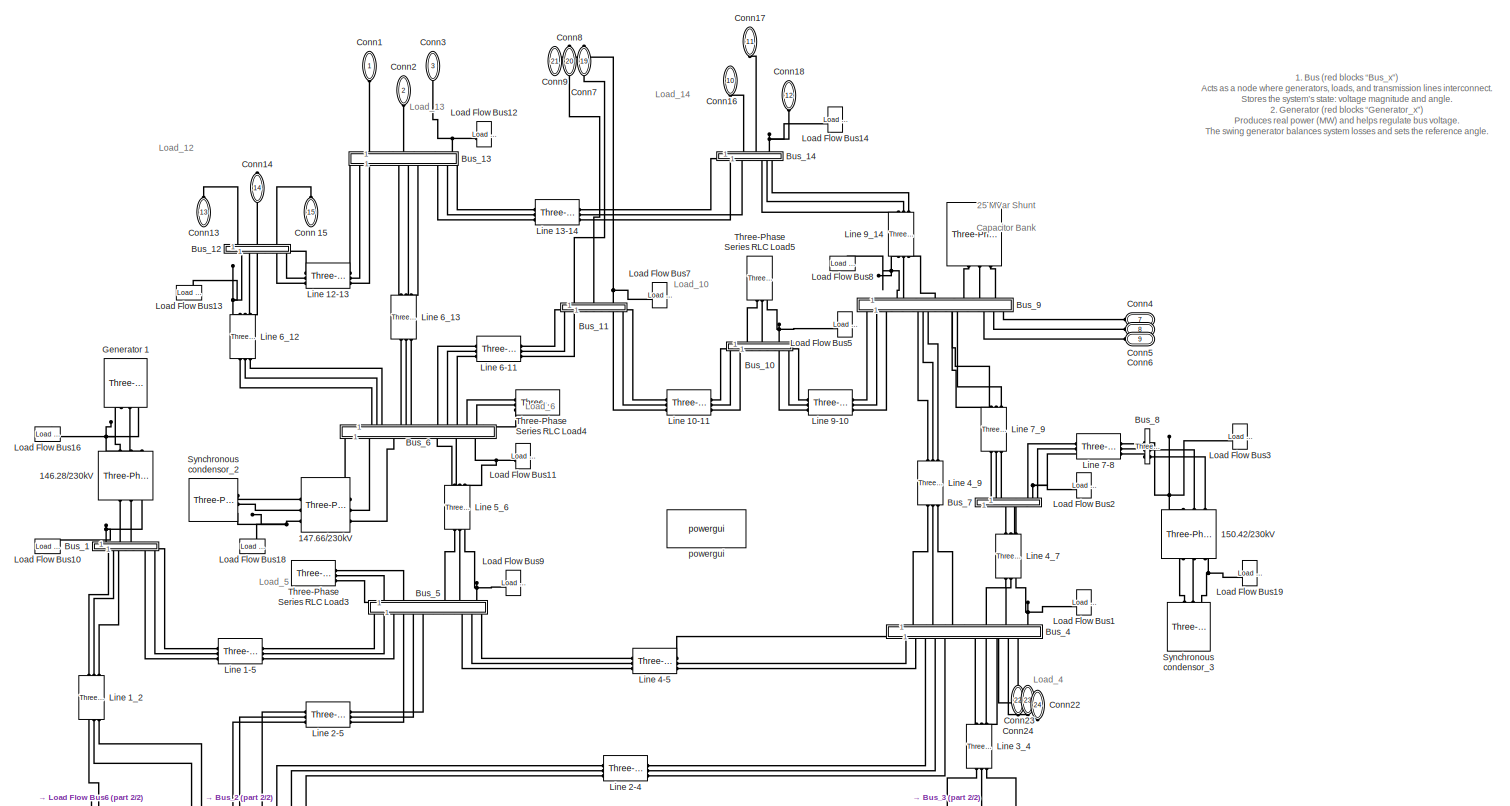
[diagram: Power Grid - part 1/2, most of the canvas]
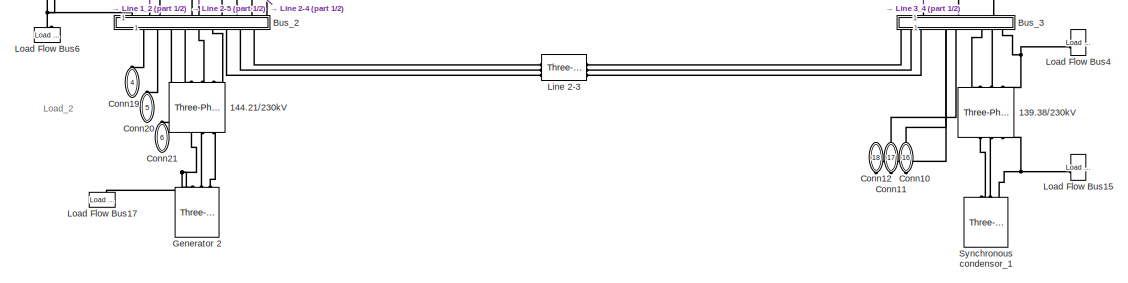
[diagram: Power Grid - part 2/2, bottom center region]
BLOCK [SubSystem] Power Grid
  PortSchema = {"entries":[{"content":{"sides":[{"content":{"connectorIds":["LConn1","LConn2","LConn3","LConn4","LConn5","LConn6"]},"type":"ConnectorPlacement.EquallySpacedRectSide","uuid":"af9cb375-9228-47ca-ae3a-758d18aa314f"},{"content":{"connectorIds":["RConn1","RConn2","RConn3","RConn4","RConn5","RConn6"],"side":"RIGHT"},"type":"ConnectorPlacement.EquallySpacedRectSide","uuid":"1a5e4143-639d-4301-b022-bd0c0...<+591ch>
BLOCK [Reference] Power Grid/   REF=spsThreePhaseSeriesRLCLoadLib/Three-Phase
Series RLC Load
  AttributesFormatString = \n
  LibrarySourceBlock = sps_lib/Passives/Three-Phase\nSeries RLC Load
  NameLocation = right
  SourceBlock = spsThreePhaseSeriesRLCLoadLib/Three-Phase\nSeries RLC Load
  SourceType = Three-Phase Series RLC Load
BLOCK [Reference] Power Grid/139.38//230kV  REF=spsThreePhaseTransformerTwoWindingsLib/Three-Phase
Transformer
(Two Windings)
  LibrarySourceBlock = sps_lib/Power Grid Elements/Three-Phase\nTransformer\n(Two Windings)
  NameLocation = right
  SourceBlock = spsThreePhaseTransformerTwoWindingsLib/Three-Phase\nTransformer\n(Two Windings)
  SourceType = Three-Phase Transformer (Two Windings)
BLOCK [Reference] Power Grid/144.21//230kV  REF=spsThreePhaseTransformerTwoWindingsLib/Three-Phase
Transformer
(Two Windings)
  LibrarySourceBlock = sps_lib/Power Grid Elements/Three-Phase\nTransformer\n(Two Windings)
  NameLocation = right
  SourceBlock = spsThreePhaseTransformerTwoWindingsLib/Three-Phase\nTransformer\n(Two Windings)
  SourceType = Three-Phase Transformer (Two Windings)
BLOCK [Reference] Power Grid/146.28//230kV  REF=spsThreePhaseTransformerTwoWindingsLib/Three-Phase
Transformer
(Two Windings)
  LibrarySourceBlock = sps_lib/Power Grid Elements/Three-Phase\nTransformer\n(Two Windings)
  NameLocation = left
  SourceBlock = spsThreePhaseTransformerTwoWindingsLib/Three-Phase\nTransformer\n(Two Windings)
  SourceType = Three-Phase Transformer (Two Windings)
BLOCK [Reference] Power Grid/147.66//230kV  REF=spsThreePhaseTransformerTwoWindingsLib/Three-Phase
Transformer
(Two Windings)
  LibrarySourceBlock = sps_lib/Power Grid Elements/Three-Phase\nTransformer\n(Two Windings)
  SourceBlock = spsThreePhaseTransformerTwoWindingsLib/Three-Phase\nTransformer\n(Two Windings)
  SourceType = Three-Phase Transformer (Two Windings)
BLOCK [Reference] Power Grid/150.42//230kV  REF=spsThreePhaseTransformerTwoWindingsLib/Three-Phase
Transformer
(Two Windings)
  LibrarySourceBlock = sps_lib/Power Grid Elements/Three-Phase\nTransformer\n(Two Windings)
  NameLocation = right
  SourceBlock = spsThreePhaseTransformerTwoWindingsLib/Three-Phase\nTransformer\n(Two Windings)
  SourceType = Three-Phase Transformer (Two Windings)
BLOCK [SubSystem] Power Grid/Bus_1
  NameLocation = left
BLOCK [Reference] Power Grid/Bus_1/Bus  REF=spsThreePhaseVIMeasurementLib/Three-Phase
V-I Measurement
  LibrarySourceBlock = sps_lib/Sensors and Measurements/Three-Phase\nV-I Measurement
  SourceBlock = spsThreePhaseVIMeasurementLib/Three-Phase\nV-I Measurement
  SourceType = Three-Phase VI Measurement
BLOCK [Reference] Power Grid/Bus_1/Bus_  REF=spsThreePhaseVIMeasurementLib/Three-Phase
V-I Measurement
  LibrarySourceBlock = sps_lib/Sensors and Measurements/Three-Phase\nV-I Measurement
  SourceBlock = spsThreePhaseVIMeasurementLib/Three-Phase\nV-I Measurement
  SourceType = Three-Phase VI Measurement
BLOCK [PMIOPort] Power Grid/Bus_1/Conn1
  Side = Left
BLOCK [PMIOPort] Power Grid/Bus_1/Conn2
  Port = 2
  Side = Right
BLOCK [PMIOPort] Power Grid/Bus_1/Conn3
  Port = 3
  Side = Left
BLOCK [PMIOPort] Power Grid/Bus_1/Conn4
  Port = 4
  Side = Right
BLOCK [PMIOPort] Power Grid/Bus_1/Conn5
  Port = 5
  Side = Right
BLOCK [PMIOPort] Power Grid/Bus_1/Conn6
  Port = 6
  Side = Left
BLOCK [PMIOPort] Power Grid/Bus_1/Conn7
  Port = 7
  Side = Right
BLOCK [PMIOPort] Power Grid/Bus_1/Conn8
  Port = 8
  Side = Right
BLOCK [PMIOPort] Power Grid/Bus_1/Conn9
  Port = 9
  Side = Right
BLOCK [SubSystem] Power Grid/Bus_10
  NameLocation = left
BLOCK [Reference] Power Grid/Bus_10/Bus  REF=spsThreePhaseVIMeasurementLib/Three-Phase
V-I Measurement
  LibrarySourceBlock = sps_lib/Sensors and Measurements/Three-Phase\nV-I Measurement
  SourceBlock = spsThreePhaseVIMeasurementLib/Three-Phase\nV-I Measurement
  SourceType = Three-Phase VI Measurement
BLOCK [Reference] Power Grid/Bus_10/Bus_  REF=spsThreePhaseVIMeasurementLib/Three-Phase
V-I Measurement
  LibrarySourceBlock = sps_lib/Sensors and Measurements/Three-Phase\nV-I Measurement
  SourceBlock = spsThreePhaseVIMeasurementLib/Three-Phase\nV-I Measurement
  SourceType = Three-Phase VI Measurement
BLOCK [PMIOPort] Power Grid/Bus_10/Conn1
  Side = Left
BLOCK [PMIOPort] Power Grid/Bus_10/Conn2
  Port = 2
  Side = Right
BLOCK [PMIOPort] Power Grid/Bus_10/Conn3
  Port = 3
  Side = Left
BLOCK [PMIOPort] Power Grid/Bus_10/Conn4
  Port = 4
  Side = Right
BLOCK [PMIOPort] Power Grid/Bus_10/Conn5
  Port = 5
  Side = Right
BLOCK [PMIOPort] Power Grid/Bus_10/Conn6
  Port = 6
  Side = Left
BLOCK [PMIOPort] Power Grid/Bus_10/Conn7
  Port = 7
  Side = Right
BLOCK [PMIOPort] Power Grid/Bus_10/Conn8
  Port = 8
  Side = Right
BLOCK [PMIOPort] Power Grid/Bus_10/Conn9
  Port = 9
  Side = Right
BLOCK [SubSystem] Power Grid/Bus_11
  NameLocation = left
BLOCK [Reference] Power Grid/Bus_11/Bus  REF=spsThreePhaseVIMeasurementLib/Three-Phase
V-I Measurement
  LibrarySourceBlock = sps_lib/Sensors and Measurements/Three-Phase\nV-I Measurement
  SourceBlock = spsThreePhaseVIMeasurementLib/Three-Phase\nV-I Measurement
  SourceType = Three-Phase VI Measurement
BLOCK [Reference] Power Grid/Bus_11/Bus_  REF=spsThreePhaseVIMeasurementLib/Three-Phase
V-I Measurement
  LibrarySourceBlock = sps_lib/Sensors and Measurements/Three-Phase\nV-I Measurement
  SourceBlock = spsThreePhaseVIMeasurementLib/Three-Phase\nV-I Measurement
  SourceType = Three-Phase VI Measurement
BLOCK [PMIOPort] Power Grid/Bus_11/Conn1
  Side = Left
BLOCK [PMIOPort] Power Grid/Bus_11/Conn2
  Port = 2
  Side = Right
BLOCK [PMIOPort] Power Grid/Bus_11/Conn3
  Port = 3
  Side = Left
BLOCK [PMIOPort] Power Grid/Bus_11/Conn4
  Port = 4
  Side = Right
BLOCK [PMIOPort] Power Grid/Bus_11/Conn5
  Port = 5
  Side = Right
BLOCK [PMIOPort] Power Grid/Bus_11/Conn6
  Port = 6
  Side = Left
BLOCK [PMIOPort] Power Grid/Bus_11/Conn7
  Port = 7
  Side = Right
BLOCK [PMIOPort] Power Grid/Bus_11/Conn8
  Port = 8
  Side = Right
BLOCK [PMIOPort] Power Grid/Bus_11/Conn9
  Port = 9
  Side = Right
BLOCK [SubSystem] Power Grid/Bus_12
  NameLocation = left
BLOCK [Reference] Power Grid/Bus_12/Bus  REF=spsThreePhaseVIMeasurementLib/Three-Phase
V-I Measurement
  LibrarySourceBlock = sps_lib/Sensors and Measurements/Three-Phase\nV-I Measurement
  SourceBlock = spsThreePhaseVIMeasurementLib/Three-Phase\nV-I Measurement
  SourceType = Three-Phase VI Measurement
BLOCK [Reference] Power Grid/Bus_12/Bus_  REF=spsThreePhaseVIMeasurementLib/Three-Phase
V-I Measurement
  LibrarySourceBlock = sps_lib/Sensors and Measurements/Three-Phase\nV-I Measurement
  SourceBlock = spsThreePhaseVIMeasurementLib/Three-Phase\nV-I Measurement
  SourceType = Three-Phase VI Measurement
BLOCK [PMIOPort] Power Grid/Bus_12/Conn1
  Side = Left
BLOCK [PMIOPort] Power Grid/Bus_12/Conn2
  Port = 2
  Side = Right
BLOCK [PMIOPort] Power Grid/Bus_12/Conn3
  Port = 3
  Side = Left
BLOCK [PMIOPort] Power Grid/Bus_12/Conn4
  Port = 4
  Side = Right
BLOCK [PMIOPort] Power Grid/Bus_12/Conn5
  Port = 5
  Side = Right
BLOCK [PMIOPort] Power Grid/Bus_12/Conn6
  Port = 6
  Side = Left
BLOCK [PMIOPort] Power Grid/Bus_12/Conn7
  Port = 7
  Side = Right
BLOCK [PMIOPort] Power Grid/Bus_12/Conn8
  Port = 8
  Side = Right
BLOCK [PMIOPort] Power Grid/Bus_12/Conn9
  Port = 9
  Side = Right
BLOCK [SubSystem] Power Grid/Bus_13
  NameLocation = left
BLOCK [Reference] Power Grid/Bus_13/Bus  REF=spsThreePhaseVIMeasurementLib/Three-Phase
V-I Measurement
  LibrarySourceBlock = sps_lib/Sensors and Measurements/Three-Phase\nV-I Measurement
  SourceBlock = spsThreePhaseVIMeasurementLib/Three-Phase\nV-I Measurement
  SourceType = Three-Phase VI Measurement
BLOCK [Reference] Power Grid/Bus_13/Bus_  REF=spsThreePhaseVIMeasurementLib/Three-Phase
V-I Measurement
  LibrarySourceBlock = sps_lib/Sensors and Measurements/Three-Phase\nV-I Measurement
  SourceBlock = spsThreePhaseVIMeasurementLib/Three-Phase\nV-I Measurement
  SourceType = Three-Phase VI Measurement
BLOCK [Reference] Power Grid/Bus_13/Bus_1  REF=spsThreePhaseVIMeasurementLib/Three-Phase
V-I Measurement
  LibrarySourceBlock = sps_lib/Sensors and Measurements/Three-Phase\nV-I Measurement
  SourceBlock = spsThreePhaseVIMeasurementLib/Three-Phase\nV-I Measurement
  SourceType = Three-Phase VI Measurement
BLOCK [PMIOPort] Power Grid/Bus_13/Conn1
  Side = Left
BLOCK [PMIOPort] Power Grid/Bus_13/Conn10
  Port = 10
  Side = Right
BLOCK [PMIOPort] Power Grid/Bus_13/Conn11
  Port = 11
  Side = Right
BLOCK [PMIOPort] Power Grid/Bus_13/Conn12
  Port = 12
  Side = Right
BLOCK [PMIOPort] Power Grid/Bus_13/Conn2
  Port = 2
  Side = Right
BLOCK [PMIOPort] Power Grid/Bus_13/Conn3
  Port = 3
  Side = Left
BLOCK [PMIOPort] Power Grid/Bus_13/Conn4
  Port = 4
  Side = Right
BLOCK [PMIOPort] Power Grid/Bus_13/Conn5
  Port = 5
  Side = Right
BLOCK [PMIOPort] Power Grid/Bus_13/Conn6
  Port = 6
  Side = Left
BLOCK [PMIOPort] Power Grid/Bus_13/Conn7
  Port = 7
  Side = Right
BLOCK [PMIOPort] Power Grid/Bus_13/Conn8
  Port = 8
  Side = Right
BLOCK [PMIOPort] Power Grid/Bus_13/Conn9
  Port = 9
  Side = Right
BLOCK [SubSystem] Power Grid/Bus_14
  NameLocation = left
BLOCK [Reference] Power Grid/Bus_14/Bus  REF=spsThreePhaseVIMeasurementLib/Three-Phase
V-I Measurement
  LibrarySourceBlock = sps_lib/Sensors and Measurements/Three-Phase\nV-I Measurement
  SourceBlock = spsThreePhaseVIMeasurementLib/Three-Phase\nV-I Measurement
  SourceType = Three-Phase VI Measurement
BLOCK [Reference] Power Grid/Bus_14/Bus_  REF=spsThreePhaseVIMeasurementLib/Three-Phase
V-I Measurement
  LibrarySourceBlock = sps_lib/Sensors and Measurements/Three-Phase\nV-I Measurement
  SourceBlock = spsThreePhaseVIMeasurementLib/Three-Phase\nV-I Measurement
  SourceType = Three-Phase VI Measurement
BLOCK [PMIOPort] Power Grid/Bus_14/Conn1
  Side = Left
BLOCK [PMIOPort] Power Grid/Bus_14/Conn2
  Port = 2
  Side = Right
BLOCK [PMIOPort] Power Grid/Bus_14/Conn3
  Port = 3
  Side = Left
BLOCK [PMIOPort] Power Grid/Bus_14/Conn4
  Port = 4
  Side = Right
BLOCK [PMIOPort] Power Grid/Bus_14/Conn5
  Port = 5
  Side = Right
BLOCK [PMIOPort] Power Grid/Bus_14/Conn6
  Port = 6
  Side = Left
BLOCK [PMIOPort] Power Grid/Bus_14/Conn7
  Port = 7
  Side = Right
BLOCK [PMIOPort] Power Grid/Bus_14/Conn8
  Port = 8
  Side = Right
BLOCK [PMIOPort] Power Grid/Bus_14/Conn9
  Port = 9
  Side = Right
BLOCK [SubSystem] Power Grid/Bus_2
  NameLocation = left
BLOCK [Reference] Power Grid/Bus_2/Bus  REF=spsThreePhaseVIMeasurementLib/Three-Phase
V-I Measurement
  LibrarySourceBlock = sps_lib/Sensors and Measurements/Three-Phase\nV-I Measurement
  SourceBlock = spsThreePhaseVIMeasurementLib/Three-Phase\nV-I Measurement
  SourceType = Three-Phase VI Measurement
BLOCK [Reference] Power Grid/Bus_2/Bus_  REF=spsThreePhaseVIMeasurementLib/Three-Phase
V-I Measurement
  LibrarySourceBlock = sps_lib/Sensors and Measurements/Three-Phase\nV-I Measurement
  SourceBlock = spsThreePhaseVIMeasurementLib/Three-Phase\nV-I Measurement
  SourceType = Three-Phase VI Measurement
BLOCK [Reference] Power Grid/Bus_2/Bus_1  REF=spsThreePhaseVIMeasurementLib/Three-Phase
V-I Measurement
  LibrarySourceBlock = sps_lib/Sensors and Measurements/Three-Phase\nV-I Measurement
  SourceBlock = spsThreePhaseVIMeasurementLib/Three-Phase\nV-I Measurement
  SourceType = Three-Phase VI Measurement
BLOCK [PMIOPort] Power Grid/Bus_2/Conn1
  Side = Left
BLOCK [PMIOPort] Power Grid/Bus_2/Conn10
  Port = 10
  Side = Right
BLOCK [PMIOPort] Power Grid/Bus_2/Conn11
  Port = 11
  Side = Right
BLOCK [PMIOPort] Power Grid/Bus_2/Conn12
  Port = 12
  Side = Right
BLOCK [PMIOPort] Power Grid/Bus_2/Conn13
  Port = 13
  Side = Left
BLOCK [PMIOPort] Power Grid/Bus_2/Conn14
  Port = 14
  Side = Left
BLOCK [PMIOPort] Power Grid/Bus_2/Conn15
  Port = 15
  Side = Left
BLOCK [PMIOPort] Power Grid/Bus_2/Conn16
  Port = 16
  Side = Left
BLOCK [PMIOPort] Power Grid/Bus_2/Conn17
  Port = 17
  Side = Left
BLOCK [PMIOPort] Power Grid/Bus_2/Conn18
  Port = 18
  Side = Left
BLOCK [PMIOPort] Power Grid/Bus_2/Conn2
  Port = 2
  Side = Right
BLOCK [PMIOPort] Power Grid/Bus_2/Conn3
  Port = 3
  Side = Left
BLOCK [PMIOPort] Power Grid/Bus_2/Conn4
  Port = 4
  Side = Right
BLOCK [PMIOPort] Power Grid/Bus_2/Conn5
  Port = 5
  Side = Right
BLOCK [PMIOPort] Power Grid/Bus_2/Conn6
  Port = 6
  Side = Left
BLOCK [PMIOPort] Power Grid/Bus_2/Conn7
  Port = 7
  Side = Right
BLOCK [PMIOPort] Power Grid/Bus_2/Conn8
  Port = 8
  Side = Right
BLOCK [PMIOPort] Power Grid/Bus_2/Conn9
  Port = 9
  Side = Right
BLOCK [SubSystem] Power Grid/Bus_3
  NameLocation = left
BLOCK [Reference] Power Grid/Bus_3/Bus  REF=spsThreePhaseVIMeasurementLib/Three-Phase
V-I Measurement
  LibrarySourceBlock = sps_lib/Sensors and Measurements/Three-Phase\nV-I Measurement
  SourceBlock = spsThreePhaseVIMeasurementLib/Three-Phase\nV-I Measurement
  SourceType = Three-Phase VI Measurement
BLOCK [Reference] Power Grid/Bus_3/Bus_  REF=spsThreePhaseVIMeasurementLib/Three-Phase
V-I Measurement
  LibrarySourceBlock = sps_lib/Sensors and Measurements/Three-Phase\nV-I Measurement
  SourceBlock = spsThreePhaseVIMeasurementLib/Three-Phase\nV-I Measurement
  SourceType = Three-Phase VI Measurement
BLOCK [Reference] Power Grid/Bus_3/Bus_1  REF=spsThreePhaseVIMeasurementLib/Three-Phase
V-I Measurement
  LibrarySourceBlock = sps_lib/Sensors and Measurements/Three-Phase\nV-I Measurement
  SourceBlock = spsThreePhaseVIMeasurementLib/Three-Phase\nV-I Measurement
  SourceType = Three-Phase VI Measurement
BLOCK [PMIOPort] Power Grid/Bus_3/Conn1
  Side = Left
BLOCK [PMIOPort] Power Grid/Bus_3/Conn10
  Port = 10
  Side = Right
BLOCK [PMIOPort] Power Grid/Bus_3/Conn11
  Port = 11
  Side = Right
BLOCK [PMIOPort] Power Grid/Bus_3/Conn12
  Port = 12
  Side = Right
BLOCK [PMIOPort] Power Grid/Bus_3/Conn2
  Port = 2
  Side = Right
BLOCK [PMIOPort] Power Grid/Bus_3/Conn3
  Port = 3
  Side = Left
BLOCK [PMIOPort] Power Grid/Bus_3/Conn4
  Port = 4
  Side = Right
BLOCK [PMIOPort] Power Grid/Bus_3/Conn5
  Port = 5
  Side = Right
BLOCK [PMIOPort] Power Grid/Bus_3/Conn6
  Port = 6
  Side = Left
BLOCK [PMIOPort] Power Grid/Bus_3/Conn7
  Port = 7
  Side = Right
BLOCK [PMIOPort] Power Grid/Bus_3/Conn8
  Port = 8
  Side = Right
BLOCK [PMIOPort] Power Grid/Bus_3/Conn9
  Port = 9
  Side = Right
BLOCK [SubSystem] Power Grid/Bus_4
  NameLocation = left
BLOCK [Reference] Power Grid/Bus_4/Bus  REF=spsThreePhaseVIMeasurementLib/Three-Phase
V-I Measurement
  LibrarySourceBlock = sps_lib/Sensors and Measurements/Three-Phase\nV-I Measurement
  SourceBlock = spsThreePhaseVIMeasurementLib/Three-Phase\nV-I Measurement
  SourceType = Three-Phase VI Measurement
BLOCK [Reference] Power Grid/Bus_4/Bus_  REF=spsThreePhaseVIMeasurementLib/Three-Phase
V-I Measurement
  LibrarySourceBlock = sps_lib/Sensors and Measurements/Three-Phase\nV-I Measurement
  SourceBlock = spsThreePhaseVIMeasurementLib/Three-Phase\nV-I Measurement
  SourceType = Three-Phase VI Measurement
BLOCK [Reference] Power Grid/Bus_4/Bus_1  REF=spsThreePhaseVIMeasurementLib/Three-Phase
V-I Measurement
  LibrarySourceBlock = sps_lib/Sensors and Measurements/Three-Phase\nV-I Measurement
  SourceBlock = spsThreePhaseVIMeasurementLib/Three-Phase\nV-I Measurement
  SourceType = Three-Phase VI Measurement
BLOCK [Reference] Power Grid/Bus_4/Bus_2  REF=spsThreePhaseVIMeasurementLib/Three-Phase
V-I Measurement
  LibrarySourceBlock = sps_lib/Sensors and Measurements/Three-Phase\nV-I Measurement
  SourceBlock = spsThreePhaseVIMeasurementLib/Three-Phase\nV-I Measurement
  SourceType = Three-Phase VI Measurement
BLOCK [PMIOPort] Power Grid/Bus_4/Conn1
  Side = Left
BLOCK [PMIOPort] Power Grid/Bus_4/Conn10
  Port = 10
  Side = Right
BLOCK [PMIOPort] Power Grid/Bus_4/Conn11
  Port = 11
  Side = Right
BLOCK [PMIOPort] Power Grid/Bus_4/Conn12
  Port = 12
  Side = Right
BLOCK [PMIOPort] Power Grid/Bus_4/Conn13
  Port = 13
  Side = Left
BLOCK [PMIOPort] Power Grid/Bus_4/Conn14
  Port = 14
  Side = Left
BLOCK [PMIOPort] Power Grid/Bus_4/Conn15
  Port = 15
  Side = Left
BLOCK [PMIOPort] Power Grid/Bus_4/Conn16
  Port = 16
  Side = Right
BLOCK [PMIOPort] Power Grid/Bus_4/Conn17
  Port = 17
  Side = Right
BLOCK [PMIOPort] Power Grid/Bus_4/Conn18
  Port = 18
  Side = Right
BLOCK [PMIOPort] Power Grid/Bus_4/Conn2
  Port = 2
  Side = Right
BLOCK [PMIOPort] Power Grid/Bus_4/Conn3
  Port = 3
  Side = Left
BLOCK [PMIOPort] Power Grid/Bus_4/Conn4
  Port = 4
  Side = Right
BLOCK [PMIOPort] Power Grid/Bus_4/Conn5
  Port = 5
  Side = Right
BLOCK [PMIOPort] Power Grid/Bus_4/Conn6
  Port = 6
  Side = Left
BLOCK [PMIOPort] Power Grid/Bus_4/Conn7
  Port = 7
  Side = Right
BLOCK [PMIOPort] Power Grid/Bus_4/Conn8
  Port = 8
  Side = Right
BLOCK [PMIOPort] Power Grid/Bus_4/Conn9
  Port = 9
  Side = Right
BLOCK [SubSystem] Power Grid/Bus_5
  NameLocation = left
BLOCK [Reference] Power Grid/Bus_5/Bus  REF=spsThreePhaseVIMeasurementLib/Three-Phase
V-I Measurement
  LibrarySourceBlock = sps_lib/Sensors and Measurements/Three-Phase\nV-I Measurement
  SourceBlock = spsThreePhaseVIMeasurementLib/Three-Phase\nV-I Measurement
  SourceType = Three-Phase VI Measurement
BLOCK [Reference] Power Grid/Bus_5/Bus_  REF=spsThreePhaseVIMeasurementLib/Three-Phase
V-I Measurement
  LibrarySourceBlock = sps_lib/Sensors and Measurements/Three-Phase\nV-I Measurement
  SourceBlock = spsThreePhaseVIMeasurementLib/Three-Phase\nV-I Measurement
  SourceType = Three-Phase VI Measurement
BLOCK [Reference] Power Grid/Bus_5/Bus_1  REF=spsThreePhaseVIMeasurementLib/Three-Phase
V-I Measurement
  LibrarySourceBlock = sps_lib/Sensors and Measurements/Three-Phase\nV-I Measurement
  SourceBlock = spsThreePhaseVIMeasurementLib/Three-Phase\nV-I Measurement
  SourceType = Three-Phase VI Measurement
BLOCK [PMIOPort] Power Grid/Bus_5/Conn1
  Side = Left
BLOCK [PMIOPort] Power Grid/Bus_5/Conn10
  Port = 10
  Side = Right
BLOCK [PMIOPort] Power Grid/Bus_5/Conn11
  Port = 11
  Side = Right
BLOCK [PMIOPort] Power Grid/Bus_5/Conn12
  Port = 12
  Side = Right
BLOCK [PMIOPort] Power Grid/Bus_5/Conn13
  Port = 13
  Side = Left
BLOCK [PMIOPort] Power Grid/Bus_5/Conn14
  Port = 14
  Side = Left
BLOCK [PMIOPort] Power Grid/Bus_5/Conn15
  Port = 15
  Side = Left
BLOCK [PMIOPort] Power Grid/Bus_5/Conn2
  Port = 2
  Side = Right
BLOCK [PMIOPort] Power Grid/Bus_5/Conn3
  Port = 3
  Side = Left
BLOCK [PMIOPort] Power Grid/Bus_5/Conn4
  Port = 4
  Side = Right
BLOCK [PMIOPort] Power Grid/Bus_5/Conn5
  Port = 5
  Side = Right
BLOCK [PMIOPort] Power Grid/Bus_5/Conn6
  Port = 6
  Side = Left
BLOCK [PMIOPort] Power Grid/Bus_5/Conn7
  Port = 7
  Side = Right
BLOCK [PMIOPort] Power Grid/Bus_5/Conn8
  Port = 8
  Side = Right
BLOCK [PMIOPort] Power Grid/Bus_5/Conn9
  Port = 9
  Side = Right
BLOCK [SubSystem] Power Grid/Bus_6
  NameLocation = right
BLOCK [Reference] Power Grid/Bus_6/Bus  REF=spsThreePhaseVIMeasurementLib/Three-Phase
V-I Measurement
  LibrarySourceBlock = sps_lib/Sensors and Measurements/Three-Phase\nV-I Measurement
  SourceBlock = spsThreePhaseVIMeasurementLib/Three-Phase\nV-I Measurement
  SourceType = Three-Phase VI Measurement
BLOCK [Reference] Power Grid/Bus_6/Bus_  REF=spsThreePhaseVIMeasurementLib/Three-Phase
V-I Measurement
  LibrarySourceBlock = sps_lib/Sensors and Measurements/Three-Phase\nV-I Measurement
  SourceBlock = spsThreePhaseVIMeasurementLib/Three-Phase\nV-I Measurement
  SourceType = Three-Phase VI Measurement
BLOCK [Reference] Power Grid/Bus_6/Bus_1  REF=spsThreePhaseVIMeasurementLib/Three-Phase
V-I Measurement
  LibrarySourceBlock = sps_lib/Sensors and Measurements/Three-Phase\nV-I Measurement
  SourceBlock = spsThreePhaseVIMeasurementLib/Three-Phase\nV-I Measurement
  SourceType = Three-Phase VI Measurement
BLOCK [Reference] Power Grid/Bus_6/Bus_2  REF=spsThreePhaseVIMeasurementLib/Three-Phase
V-I Measurement
  LibrarySourceBlock = sps_lib/Sensors and Measurements/Three-Phase\nV-I Measurement
  SourceBlock = spsThreePhaseVIMeasurementLib/Three-Phase\nV-I Measurement
  SourceType = Three-Phase VI Measurement
BLOCK [PMIOPort] Power Grid/Bus_6/Conn1
  Side = Left
BLOCK [PMIOPort] Power Grid/Bus_6/Conn10
  Port = 10
  Side = Right
BLOCK [PMIOPort] Power Grid/Bus_6/Conn11
  Port = 11
  Side = Right
BLOCK [PMIOPort] Power Grid/Bus_6/Conn12
  Port = 12
  Side = Right
BLOCK [PMIOPort] Power Grid/Bus_6/Conn13
  Port = 13
  Side = Left
BLOCK [PMIOPort] Power Grid/Bus_6/Conn14
  Port = 14
  Side = Left
BLOCK [PMIOPort] Power Grid/Bus_6/Conn15
  Port = 15
  Side = Left
BLOCK [PMIOPort] Power Grid/Bus_6/Conn16
  Port = 16
  Side = Right
BLOCK [PMIOPort] Power Grid/Bus_6/Conn17
  Port = 17
  Side = Right
BLOCK [PMIOPort] Power Grid/Bus_6/Conn18
  Port = 18
  Side = Right
BLOCK [PMIOPort] Power Grid/Bus_6/Conn2
  Port = 2
  Side = Right
BLOCK [PMIOPort] Power Grid/Bus_6/Conn3
  Port = 3
  Side = Left
BLOCK [PMIOPort] Power Grid/Bus_6/Conn4
  Port = 4
  Side = Right
BLOCK [PMIOPort] Power Grid/Bus_6/Conn5
  Port = 5
  Side = Right
BLOCK [PMIOPort] Power Grid/Bus_6/Conn6
  Port = 6
  Side = Left
BLOCK [PMIOPort] Power Grid/Bus_6/Conn7
  Port = 7
  Side = Right
BLOCK [PMIOPort] Power Grid/Bus_6/Conn8
  Port = 8
  Side = Right
BLOCK [PMIOPort] Power Grid/Bus_6/Conn9
  Port = 9
  Side = Right
BLOCK [SubSystem] Power Grid/Bus_7
  NameLocation = right
BLOCK [Reference] Power Grid/Bus_7/Bus  REF=spsThreePhaseVIMeasurementLib/Three-Phase
V-I Measurement
  LibrarySourceBlock = sps_lib/Sensors and Measurements/Three-Phase\nV-I Measurement
  SourceBlock = spsThreePhaseVIMeasurementLib/Three-Phase\nV-I Measurement
  SourceType = Three-Phase VI Measurement
BLOCK [Reference] Power Grid/Bus_7/Bus_  REF=spsThreePhaseVIMeasurementLib/Three-Phase
V-I Measurement
  LibrarySourceBlock = sps_lib/Sensors and Measurements/Three-Phase\nV-I Measurement
  SourceBlock = spsThreePhaseVIMeasurementLib/Three-Phase\nV-I Measurement
  SourceType = Three-Phase VI Measurement
BLOCK [PMIOPort] Power Grid/Bus_7/Conn1
  Side = Left
BLOCK [PMIOPort] Power Grid/Bus_7/Conn2
  Port = 2
  Side = Right
BLOCK [PMIOPort] Power Grid/Bus_7/Conn3
  Port = 3
  Side = Left
BLOCK [PMIOPort] Power Grid/Bus_7/Conn4
  Port = 4
  Side = Right
BLOCK [PMIOPort] Power Grid/Bus_7/Conn5
  Port = 5
  Side = Right
BLOCK [PMIOPort] Power Grid/Bus_7/Conn6
  Port = 6
  Side = Left
BLOCK [PMIOPort] Power Grid/Bus_7/Conn7
  Port = 7
  Side = Right
BLOCK [PMIOPort] Power Grid/Bus_7/Conn8
  Port = 8
  Side = Right
BLOCK [PMIOPort] Power Grid/Bus_7/Conn9
  Port = 9
  Side = Right
BLOCK [Reference] Power Grid/Bus_8  REF=spsThreePhaseVIMeasurementLib/Three-Phase
V-I Measurement
  LibrarySourceBlock = sps_lib/Sensors and Measurements/Three-Phase\nV-I Measurement
  SourceBlock = spsThreePhaseVIMeasurementLib/Three-Phase\nV-I Measurement
  SourceType = Three-Phase VI Measurement
BLOCK [SubSystem] Power Grid/Bus_9
  NameLocation = left
BLOCK [Reference] Power Grid/Bus_9/Bus  REF=spsThreePhaseVIMeasurementLib/Three-Phase
V-I Measurement
  LibrarySourceBlock = sps_lib/Sensors and Measurements/Three-Phase\nV-I Measurement
  SourceBlock = spsThreePhaseVIMeasurementLib/Three-Phase\nV-I Measurement
  SourceType = Three-Phase VI Measurement
BLOCK [Reference] Power Grid/Bus_9/Bus_  REF=spsThreePhaseVIMeasurementLib/Three-Phase
V-I Measurement
  LibrarySourceBlock = sps_lib/Sensors and Measurements/Three-Phase\nV-I Measurement
  SourceBlock = spsThreePhaseVIMeasurementLib/Three-Phase\nV-I Measurement
  SourceType = Three-Phase VI Measurement
BLOCK [Reference] Power Grid/Bus_9/Bus_1  REF=spsThreePhaseVIMeasurementLib/Three-Phase
V-I Measurement
  LibrarySourceBlock = sps_lib/Sensors and Measurements/Three-Phase\nV-I Measurement
  SourceBlock = spsThreePhaseVIMeasurementLib/Three-Phase\nV-I Measurement
  SourceType = Three-Phase VI Measurement
BLOCK [Reference] Power Grid/Bus_9/Bus_2  REF=spsThreePhaseVIMeasurementLib/Three-Phase
V-I Measurement
  LibrarySourceBlock = sps_lib/Sensors and Measurements/Three-Phase\nV-I Measurement
  SourceBlock = spsThreePhaseVIMeasurementLib/Three-Phase\nV-I Measurement
  SourceType = Three-Phase VI Measurement
BLOCK [PMIOPort] Power Grid/Bus_9/Conn1
  Side = Left
BLOCK [PMIOPort] Power Grid/Bus_9/Conn10
  Port = 10
  Side = Right
BLOCK [PMIOPort] Power Grid/Bus_9/Conn11
  Port = 11
  Side = Right
BLOCK [PMIOPort] Power Grid/Bus_9/Conn12
  Port = 12
  Side = Right
BLOCK [PMIOPort] Power Grid/Bus_9/Conn13
  Port = 13
  Side = Left
BLOCK [PMIOPort] Power Grid/Bus_9/Conn14
  Port = 14
  Side = Left
BLOCK [PMIOPort] Power Grid/Bus_9/Conn15
  Port = 15
  Side = Left
BLOCK [PMIOPort] Power Grid/Bus_9/Conn16
  Port = 16
  Side = Right
BLOCK [PMIOPort] Power Grid/Bus_9/Conn17
  Port = 17
  Side = Right
BLOCK [PMIOPort] Power Grid/Bus_9/Conn18
  Port = 18
  Side = Right
BLOCK [PMIOPort] Power Grid/Bus_9/Conn2
  Port = 2
  Side = Right
BLOCK [PMIOPort] Power Grid/Bus_9/Conn3
  Port = 3
  Side = Left
BLOCK [PMIOPort] Power Grid/Bus_9/Conn4
  Port = 4
  Side = Right
BLOCK [PMIOPort] Power Grid/Bus_9/Conn5
  Port = 5
  Side = Right
BLOCK [PMIOPort] Power Grid/Bus_9/Conn6
  Port = 6
  Side = Left
BLOCK [PMIOPort] Power Grid/Bus_9/Conn7
  Port = 7
  Side = Right
BLOCK [PMIOPort] Power Grid/Bus_9/Conn8
  Port = 8
  Side = Right
BLOCK [PMIOPort] Power Grid/Bus_9/Conn9
  Port = 9
  Side = Right
BLOCK [PMIOPort] Power Grid/Conn 15
  NameLocation = left
  Port = 15
  Side = Right
BLOCK [PMIOPort] Power Grid/Conn1
  NameLocation = left
  Side = Left
BLOCK [PMIOPort] Power Grid/Conn10
  NameLocation = left
  Port = 16
  Side = Right
BLOCK [PMIOPort] Power Grid/Conn11
  NameLocation = left
  Port = 17
  Side = Right
BLOCK [PMIOPort] Power Grid/Conn12
  NameLocation = left
  Port = 18
  Side = Right
BLOCK [PMIOPort] Power Grid/Conn13
  NameLocation = left
  Port = 13
  Side = Right
BLOCK [PMIOPort] Power Grid/Conn14
  NameLocation = left
  Port = 14
  Side = Right
BLOCK [PMIOPort] Power Grid/Conn16
  NameLocation = left
  Port = 10
  Side = Left
BLOCK [PMIOPort] Power Grid/Conn17
  NameLocation = left
  Port = 11
  Side = Left
BLOCK [PMIOPort] Power Grid/Conn18
  NameLocation = left
  Port = 12
  Side = Left
BLOCK [PMIOPort] Power Grid/Conn19
  NameLocation = left
  Port = 4
  Side = Left
BLOCK [PMIOPort] Power Grid/Conn2
  NameLocation = left
  Port = 2
  Side = Left
BLOCK [PMIOPort] Power Grid/Conn20
  NameLocation = left
  Port = 5
  Side = Left
BLOCK [PMIOPort] Power Grid/Conn21
  NameLocation = left
  Port = 6
  Side = Left
BLOCK [PMIOPort] Power Grid/Conn22
  NameLocation = left
  Port = 24
  Side = Right
BLOCK [PMIOPort] Power Grid/Conn23
  NameLocation = left
  Port = 23
  Side = Right
BLOCK [PMIOPort] Power Grid/Conn24
  NameLocation = left
  Port = 22
  Side = Right
BLOCK [PMIOPort] Power Grid/Conn3
  NameLocation = left
  Port = 3
  Side = Left
BLOCK [PMIOPort] Power Grid/Conn4
  Port = 7
  Side = Left
BLOCK [PMIOPort] Power Grid/Conn5
  Port = 8
  Side = Left
BLOCK [PMIOPort] Power Grid/Conn6
  Port = 9
  Side = Left
BLOCK [PMIOPort] Power Grid/Conn7
  NameLocation = left
  Port = 19
  Side = Right
BLOCK [PMIOPort] Power Grid/Conn8
  NameLocation = left
  Port = 20
  Side = Right
BLOCK [PMIOPort] Power Grid/Conn9
  NameLocation = left
  Port = 21
  Side = Right
BLOCK [Reference] Power Grid/Generator 1  REF=spsThreePhaseSourceLib/Three-Phase Source
  LibrarySourceBlock = sps_lib/Sources/Three-Phase Source
  NameLocation = right
  SourceBlock = spsThreePhaseSourceLib/Three-Phase Source
  SourceType = Three-Phase Source
BLOCK [Reference] Power Grid/Generator 2  REF=spsThreePhaseSourceLib/Three-Phase Source
  LibrarySourceBlock = sps_lib/Sources/Three-Phase Source
  NameLocation = left
  SourceBlock = spsThreePhaseSourceLib/Three-Phase Source
  SourceType = Three-Phase Source
BLOCK [Reference] Power Grid/Line 1-5  REF=spsThreePhasePISectionLineLib/Three-Phase
PI Section Line
  AttributesFormatString = \n
  LibrarySourceBlock = sps_lib/Power Grid Elements/Three-Phase\nPI Section Line
  SourceBlock = spsThreePhasePISectionLineLib/Three-Phase\nPI Section Line
  SourceType = Three-Phase PI Section Line
BLOCK [Reference] Power Grid/Line 10-11  REF=spsThreePhasePISectionLineLib/Three-Phase
PI Section Line
  AttributesFormatString = \n
  LibrarySourceBlock = sps_lib/Power Grid Elements/Three-Phase\nPI Section Line
  SourceBlock = spsThreePhasePISectionLineLib/Three-Phase\nPI Section Line
  SourceType = Three-Phase PI Section Line
BLOCK [Reference] Power Grid/Line 12-13  REF=spsThreePhasePISectionLineLib/Three-Phase
PI Section Line
  AttributesFormatString = \n
  LibrarySourceBlock = sps_lib/Power Grid Elements/Three-Phase\nPI Section Line
  SourceBlock = spsThreePhasePISectionLineLib/Three-Phase\nPI Section Line
  SourceType = Three-Phase PI Section Line
BLOCK [Reference] Power Grid/Line 13-14  REF=spsThreePhasePISectionLineLib/Three-Phase
PI Section Line
  AttributesFormatString = \n
  LibrarySourceBlock = sps_lib/Power Grid Elements/Three-Phase\nPI Section Line
  SourceBlock = spsThreePhasePISectionLineLib/Three-Phase\nPI Section Line
  SourceType = Three-Phase PI Section Line
BLOCK [Reference] Power Grid/Line 1_2  REF=spsThreePhasePISectionLineLib/Three-Phase
PI Section Line
  AttributesFormatString = \n
  LibrarySourceBlock = sps_lib/Power Grid Elements/Three-Phase\nPI Section Line
  NameLocation = left
  SourceBlock = spsThreePhasePISectionLineLib/Three-Phase\nPI Section Line
  SourceType = Three-Phase PI Section Line
BLOCK [Reference] Power Grid/Line 2-3  REF=spsThreePhasePISectionLineLib/Three-Phase
PI Section Line
  AttributesFormatString = \n
  LibrarySourceBlock = sps_lib/Power Grid Elements/Three-Phase\nPI Section Line
  SourceBlock = spsThreePhasePISectionLineLib/Three-Phase\nPI Section Line
  SourceType = Three-Phase PI Section Line
BLOCK [Reference] Power Grid/Line 2-4  REF=spsThreePhasePISectionLineLib/Three-Phase
PI Section Line
  AttributesFormatString = \n
  LibrarySourceBlock = sps_lib/Power Grid Elements/Three-Phase\nPI Section Line
  SourceBlock = spsThreePhasePISectionLineLib/Three-Phase\nPI Section Line
  SourceType = Three-Phase PI Section Line
BLOCK [Reference] Power Grid/Line 2-5  REF=spsThreePhasePISectionLineLib/Three-Phase
PI Section Line
  AttributesFormatString = \n
  LibrarySourceBlock = sps_lib/Power Grid Elements/Three-Phase\nPI Section Line
  SourceBlock = spsThreePhasePISectionLineLib/Three-Phase\nPI Section Line
  SourceType = Three-Phase PI Section Line
BLOCK [Reference] Power Grid/Line 3_4  REF=spsThreePhasePISectionLineLib/Three-Phase
PI Section Line
  AttributesFormatString = \n
  LibrarySourceBlock = sps_lib/Power Grid Elements/Three-Phase\nPI Section Line
  NameLocation = right
  SourceBlock = spsThreePhasePISectionLineLib/Three-Phase\nPI Section Line
  SourceType = Three-Phase PI Section Line
BLOCK [Reference] Power Grid/Line 4-5  REF=spsThreePhasePISectionLineLib/Three-Phase
PI Section Line
  AttributesFormatString = \n
  LibrarySourceBlock = sps_lib/Power Grid Elements/Three-Phase\nPI Section Line
  SourceBlock = spsThreePhasePISectionLineLib/Three-Phase\nPI Section Line
  SourceType = Three-Phase PI Section Line
BLOCK [Reference] Power Grid/Line 4_7  REF=spsThreePhasePISectionLineLib/Three-Phase
PI Section Line
  AttributesFormatString = \n
  LibrarySourceBlock = sps_lib/Power Grid Elements/Three-Phase\nPI Section Line
  NameLocation = left
  SourceBlock = spsThreePhasePISectionLineLib/Three-Phase\nPI Section Line
  SourceType = Three-Phase PI Section Line
BLOCK [Reference] Power Grid/Line 4_9  REF=spsThreePhasePISectionLineLib/Three-Phase
PI Section Line
  AttributesFormatString = \n
  LibrarySourceBlock = sps_lib/Power Grid Elements/Three-Phase\nPI Section Line
  NameLocation = left
  SourceBlock = spsThreePhasePISectionLineLib/Three-Phase\nPI Section Line
  SourceType = Three-Phase PI Section Line
BLOCK [Reference] Power Grid/Line 5_6  REF=spsThreePhasePISectionLineLib/Three-Phase
PI Section Line
  AttributesFormatString = \n
  LibrarySourceBlock = sps_lib/Power Grid Elements/Three-Phase\nPI Section Line
  NameLocation = left
  SourceBlock = spsThreePhasePISectionLineLib/Three-Phase\nPI Section Line
  SourceType = Three-Phase PI Section Line
BLOCK [Reference] Power Grid/Line 6-11  REF=spsThreePhasePISectionLineLib/Three-Phase
PI Section Line
  AttributesFormatString = \n
  LibrarySourceBlock = sps_lib/Power Grid Elements/Three-Phase\nPI Section Line
  SourceBlock = spsThreePhasePISectionLineLib/Three-Phase\nPI Section Line
  SourceType = Three-Phase PI Section Line
BLOCK [Reference] Power Grid/Line 6_12  REF=spsThreePhasePISectionLineLib/Three-Phase
PI Section Line
  AttributesFormatString = \n
  LibrarySourceBlock = sps_lib/Power Grid Elements/Three-Phase\nPI Section Line
  NameLocation = left
  SourceBlock = spsThreePhasePISectionLineLib/Three-Phase\nPI Section Line
  SourceType = Three-Phase PI Section Line
BLOCK [Reference] Power Grid/Line 6_13  REF=spsThreePhasePISectionLineLib/Three-Phase
PI Section Line
  AttributesFormatString = \n
  LibrarySourceBlock = sps_lib/Power Grid Elements/Three-Phase\nPI Section Line
  NameLocation = left
  SourceBlock = spsThreePhasePISectionLineLib/Three-Phase\nPI Section Line
  SourceType = Three-Phase PI Section Line
BLOCK [Reference] Power Grid/Line 7-8  REF=spsThreePhasePISectionLineLib/Three-Phase
PI Section Line
  AttributesFormatString = \n
  LibrarySourceBlock = sps_lib/Power Grid Elements/Three-Phase\nPI Section Line
  SourceBlock = spsThreePhasePISectionLineLib/Three-Phase\nPI Section Line
  SourceType = Three-Phase PI Section Line
BLOCK [Reference] Power Grid/Line 7_9  REF=spsThreePhasePISectionLineLib/Three-Phase
PI Section Line
  AttributesFormatString = \n
  LibrarySourceBlock = sps_lib/Power Grid Elements/Three-Phase\nPI Section Line
  NameLocation = left
  SourceBlock = spsThreePhasePISectionLineLib/Three-Phase\nPI Section Line
  SourceType = Three-Phase PI Section Line
BLOCK [Reference] Power Grid/Line 9-10  REF=spsThreePhasePISectionLineLib/Three-Phase
PI Section Line
  AttributesFormatString = \n
  LibrarySourceBlock = sps_lib/Power Grid Elements/Three-Phase\nPI Section Line
  SourceBlock = spsThreePhasePISectionLineLib/Three-Phase\nPI Section Line
  SourceType = Three-Phase PI Section Line
BLOCK [Reference] Power Grid/Line 9_14  REF=spsThreePhasePISectionLineLib/Three-Phase
PI Section Line
  AttributesFormatString = \n
  LibrarySourceBlock = sps_lib/Power Grid Elements/Three-Phase\nPI Section Line
  NameLocation = left
  SourceBlock = spsThreePhasePISectionLineLib/Three-Phase\nPI Section Line
  SourceType = Three-Phase PI Section Line
BLOCK [Reference] Power Grid/Load Flow Bus1  REF=spsLoadFlowBusLib/Load Flow Bus
  AttributesFormatString = %<ID>\n%<Vbase>V\n%<VLF>pu\n%<angleLF>deg.
  LibrarySourceBlock = sps_lib/Utilities/Load Flow Bus
  SourceBlock = spsLoadFlowBusLib/Load Flow Bus
  SourceType = Load Flow Bus
BLOCK [Reference] Power Grid/Load Flow Bus10  REF=spsLoadFlowBusLib/Load Flow Bus
  AttributesFormatString = %<ID>\n%<Vbase>V\n%<VLF>pu\n%<angleLF>deg.
  LibrarySourceBlock = sps_lib/Utilities/Load Flow Bus
  NameLocation = left
  SourceBlock = spsLoadFlowBusLib/Load Flow Bus
  SourceType = Load Flow Bus
BLOCK [Reference] Power Grid/Load Flow Bus11  REF=spsLoadFlowBusLib/Load Flow Bus
  AttributesFormatString = %<ID>\n%<Vbase>V\n%<VLF>pu\n%<angleLF>deg.
  LibrarySourceBlock = sps_lib/Utilities/Load Flow Bus
  SourceBlock = spsLoadFlowBusLib/Load Flow Bus
  SourceType = Load Flow Bus
BLOCK [Reference] Power Grid/Load Flow Bus12  REF=spsLoadFlowBusLib/Load Flow Bus
  AttributesFormatString = %<ID>\n%<Vbase>V\n%<VLF>pu\n%<angleLF>deg.
  LibrarySourceBlock = sps_lib/Utilities/Load Flow Bus
  SourceBlock = spsLoadFlowBusLib/Load Flow Bus
  SourceType = Load Flow Bus
BLOCK [Reference] Power Grid/Load Flow Bus13  REF=spsLoadFlowBusLib/Load Flow Bus
  AttributesFormatString = %<ID>\n%<Vbase>V\n%<VLF>pu\n%<angleLF>deg.
  LibrarySourceBlock = sps_lib/Utilities/Load Flow Bus
  NameLocation = left
  SourceBlock = spsLoadFlowBusLib/Load Flow Bus
  SourceType = Load Flow Bus
BLOCK [Reference] Power Grid/Load Flow Bus14  REF=spsLoadFlowBusLib/Load Flow Bus
  AttributesFormatString = %<ID>\n%<Vbase>V\n%<VLF>pu\n%<angleLF>deg.
  LibrarySourceBlock = sps_lib/Utilities/Load Flow Bus
  SourceBlock = spsLoadFlowBusLib/Load Flow Bus
  SourceType = Load Flow Bus
BLOCK [Reference] Power Grid/Load Flow Bus15  REF=spsLoadFlowBusLib/Load Flow Bus
  AttributesFormatString = %<ID>\n%<Vbase>V\n%<VLF>pu\n%<angleLF>deg.
  LibrarySourceBlock = sps_lib/Utilities/Load Flow Bus
  SourceBlock = spsLoadFlowBusLib/Load Flow Bus
  SourceType = Load Flow Bus
BLOCK [Reference] Power Grid/Load Flow Bus16  REF=spsLoadFlowBusLib/Load Flow Bus
  AttributesFormatString = %<ID>\n%<Vbase>V\n%<VLF>pu\n%<angleLF>deg.
  LibrarySourceBlock = sps_lib/Utilities/Load Flow Bus
  NameLocation = left
  SourceBlock = spsLoadFlowBusLib/Load Flow Bus
  SourceType = Load Flow Bus
BLOCK [Reference] Power Grid/Load Flow Bus17  REF=spsLoadFlowBusLib/Load Flow Bus
  AttributesFormatString = %<ID>\n%<Vbase>V\n%<VLF>pu\n%<angleLF>deg.
  LibrarySourceBlock = sps_lib/Utilities/Load Flow Bus
  NameLocation = left
  SourceBlock = spsLoadFlowBusLib/Load Flow Bus
  SourceType = Load Flow Bus
BLOCK [Reference] Power Grid/Load Flow Bus18  REF=spsLoadFlowBusLib/Load Flow Bus
  AttributesFormatString = %<ID>\n%<Vbase>V\n%<VLF>pu\n%<angleLF>deg.
  LibrarySourceBlock = sps_lib/Utilities/Load Flow Bus
  NameLocation = left
  SourceBlock = spsLoadFlowBusLib/Load Flow Bus
  SourceType = Load Flow Bus
BLOCK [Reference] Power Grid/Load Flow Bus19  REF=spsLoadFlowBusLib/Load Flow Bus
  AttributesFormatString = %<ID>\n%<Vbase>V\n%<VLF>pu\n%<angleLF>deg.
  LibrarySourceBlock = sps_lib/Utilities/Load Flow Bus
  SourceBlock = spsLoadFlowBusLib/Load Flow Bus
  SourceType = Load Flow Bus
BLOCK [Reference] Power Grid/Load Flow Bus2  REF=spsLoadFlowBusLib/Load Flow Bus
  AttributesFormatString = %<ID>\n%<Vbase>V\n%<VLF>pu\n%<angleLF>deg.
  LibrarySourceBlock = sps_lib/Utilities/Load Flow Bus
  SourceBlock = spsLoadFlowBusLib/Load Flow Bus
  SourceType = Load Flow Bus
BLOCK [Reference] Power Grid/Load Flow Bus3  REF=spsLoadFlowBusLib/Load Flow Bus
  AttributesFormatString = %<ID>\n%<Vbase>V\n%<VLF>pu\n%<angleLF>deg.
  LibrarySourceBlock = sps_lib/Utilities/Load Flow Bus
  SourceBlock = spsLoadFlowBusLib/Load Flow Bus
  SourceType = Load Flow Bus
BLOCK [Reference] Power Grid/Load Flow Bus4  REF=spsLoadFlowBusLib/Load Flow Bus
  AttributesFormatString = %<ID>\n%<Vbase>V\n%<VLF>pu\n%<angleLF>deg.
  LibrarySourceBlock = sps_lib/Utilities/Load Flow Bus
  SourceBlock = spsLoadFlowBusLib/Load Flow Bus
  SourceType = Load Flow Bus
BLOCK [Reference] Power Grid/Load Flow Bus5  REF=spsLoadFlowBusLib/Load Flow Bus
  AttributesFormatString = %<ID>\n%<Vbase>V\n%<VLF>pu\n%<angleLF>deg.
  LibrarySourceBlock = sps_lib/Utilities/Load Flow Bus
  SourceBlock = spsLoadFlowBusLib/Load Flow Bus
  SourceType = Load Flow Bus
BLOCK [Reference] Power Grid/Load Flow Bus6  REF=spsLoadFlowBusLib/Load Flow Bus
  AttributesFormatString = %<ID>\n%<Vbase>V\n%<VLF>pu\n%<angleLF>deg.
  LibrarySourceBlock = sps_lib/Utilities/Load Flow Bus
  NameLocation = left
  SourceBlock = spsLoadFlowBusLib/Load Flow Bus
  SourceType = Load Flow Bus
BLOCK [Reference] Power Grid/Load Flow Bus7  REF=spsLoadFlowBusLib/Load Flow Bus
  AttributesFormatString = %<ID>\n%<Vbase>V\n%<VLF>pu\n%<angleLF>deg.
  LibrarySourceBlock = sps_lib/Utilities/Load Flow Bus
  SourceBlock = spsLoadFlowBusLib/Load Flow Bus
  SourceType = Load Flow Bus
BLOCK [Reference] Power Grid/Load Flow Bus8  REF=spsLoadFlowBusLib/Load Flow Bus
  AttributesFormatString = %<ID>\n%<Vbase>V\n%<VLF>pu\n%<angleLF>deg.
  LibrarySourceBlock = sps_lib/Utilities/Load Flow Bus
  NameLocation = left
  SourceBlock = spsLoadFlowBusLib/Load Flow Bus
  SourceType = Load Flow Bus
BLOCK [Reference] Power Grid/Load Flow Bus9  REF=spsLoadFlowBusLib/Load Flow Bus
  AttributesFormatString = %<ID>\n%<Vbase>V\n%<VLF>pu\n%<angleLF>deg.
  LibrarySourceBlock = sps_lib/Utilities/Load Flow Bus
  SourceBlock = spsLoadFlowBusLib/Load Flow Bus
  SourceType = Load Flow Bus
BLOCK [Reference] Power Grid/Synchronous condensor_1  REF=spsThreePhaseSourceLib/Three-Phase Source
  LibrarySourceBlock = sps_lib/Sources/Three-Phase Source
  NameLocation = left
  SourceBlock = spsThreePhaseSourceLib/Three-Phase Source
  SourceType = Three-Phase Source
BLOCK [Reference] Power Grid/Synchronous condensor_2  REF=spsThreePhaseSourceLib/Three-Phase Source
  LibrarySourceBlock = sps_lib/Sources/Three-Phase Source
  NameLocation = top
  SourceBlock = spsThreePhaseSourceLib/Three-Phase Source
  SourceType = Three-Phase Source
BLOCK [Reference] Power Grid/Synchronous condensor_3  REF=spsThreePhaseSourceLib/Three-Phase Source
  LibrarySourceBlock = sps_lib/Sources/Three-Phase Source
  NameLocation = left
  SourceBlock = spsThreePhaseSourceLib/Three-Phase Source
  SourceType = Three-Phase Source
BLOCK [Reference] Power Grid/Three-Phase Series RLC Load3  REF=spsThreePhaseSeriesRLCLoadLib/Three-Phase
Series RLC Load
  AttributesFormatString = \n
  LibrarySourceBlock = sps_lib/Passives/Three-Phase\nSeries RLC Load
  SourceBlock = spsThreePhaseSeriesRLCLoadLib/Three-Phase\nSeries RLC Load
  SourceType = Three-Phase Series RLC Load
BLOCK [Reference] Power Grid/Three-Phase Series RLC Load4  REF=spsThreePhaseSeriesRLCLoadLib/Three-Phase
Series RLC Load
  AttributesFormatString = \n
  LibrarySourceBlock = sps_lib/Passives/Three-Phase\nSeries RLC Load
  NameLocation = top
  SourceBlock = spsThreePhaseSeriesRLCLoadLib/Three-Phase\nSeries RLC Load
  SourceType = Three-Phase Series RLC Load
BLOCK [Reference] Power Grid/Three-Phase Series RLC Load5  REF=spsThreePhaseSeriesRLCLoadLib/Three-Phase
Series RLC Load
  AttributesFormatString = \n
  LibrarySourceBlock = sps_lib/Passives/Three-Phase\nSeries RLC Load
  NameLocation = left
  SourceBlock = spsThreePhaseSeriesRLCLoadLib/Three-Phase\nSeries RLC Load
  SourceType = Three-Phase Series RLC Load
BLOCK [Reference] Power Grid/powergui  REF=spspowerguiLib/powergui
  LibrarySourceBlock = sps_lib/powergui
  Priority = 1
  SourceBlock = spspowerguiLib/powergui
  SourceType = PSB option menu block
ANNOTATION (root): Room loads ICU : P = 15000 W, QL = 7265 var, Qc = 0 (pf ≈ 0.90) Emergency : P = 12000 W, QL = 5112 var, Qc = 0 (pf ≈ 0.92) General Ward: P = 8000 W, QL = 2629 var, Qc = 0 (pf ≈ 0.95) Admin / Offices: P = 5000 W, QL = 1015 var, Qc = 0 (pf ≈ 0.98)
ANNOTATION ICU: ICU Room Electrical-Thermal Model This Simulink model simulates an ICU (Intensive Care Unit) room environment that integrates both electrical power delivery and thermal (temperature) regulation . Electrical System (Top): A Three-Phase Voltage Source feeds two Three-Phase Series RLC Loads (representing static ICU equipment like ventilators and monitors). A Three-Phase Breaker controls the connectio...<+778ch>
ANNOTATION Power Grid: 1. Bus (red blocks “Bus_x”) Acts as a node where generators, loads, and transmission lines interconnect. Stores the system’s state: voltage magnitude and angle. 2. Generator (red blocks “Generator_x”) Produces real power (MW) and helps regulate bus voltage. The swing generator balances system losses and sets the reference angle. 3. Transmission Line (orange “Line i-j”) Transfers power between buse...<+884ch>
ANNOTATION Power Grid: 25 MVar Shunt Capacitor Bank
ANNOTATION Power Grid: Load_10
ANNOTATION Power Grid: Load_12
ANNOTATION Power Grid: Load_13
ANNOTATION Power Grid: Load_14
ANNOTATION Power Grid: Load_2
ANNOTATION Power Grid: Load_4
ANNOTATION Power Grid: Load_5
ANNOTATION Power Grid: Load_6
LINE Admin Block/Compare To Constant:1 -> Admin Block/Gain:1
LINE Admin Block/Gain:1 -> Admin Block/Simulink-PS Converter:1
NET Admin Block/PS-Simulink Converter:1 -> Admin Block/Compare To Constant:1, Admin Block/Scope:1, Admin Block/To Workspace:1
NET Admin Block/Three-Phase V-I Measurement1:1 -> Admin Block/Scope3:1, Admin Block/To Workspace3:1
NET Admin Block/Three-Phase V-I Measurement1:2 -> Admin Block/Scope3:2, Admin Block/To Workspace4:1
NET Admin Block/Three-Phase V-I Measurement:1 -> Admin Block/Scope1:1, Admin Block/To Workspace1:1
NET Admin Block/Three-Phase V-I Measurement:2 -> Admin Block/Scope1:2, Admin Block/To Workspace2:1
LINE Admin Block2/Compare To Constant:1 -> Admin Block2/Gain:1
LINE Admin Block2/Gain:1 -> Admin Block2/Simulink-PS Converter:1
NET Admin Block2/PS-Simulink Converter:1 -> Admin Block2/Compare To Constant:1, Admin Block2/Scope:1, Admin Block2/To Workspace:1
NET Admin Block2/Three-Phase V-I Measurement1:1 -> Admin Block2/Scope3:1, Admin Block2/To Workspace3:1
NET Admin Block2/Three-Phase V-I Measurement1:2 -> Admin Block2/Scope3:2, Admin Block2/To Workspace4:1
NET Admin Block2/Three-Phase V-I Measurement:1 -> Admin Block2/Scope1:1, Admin Block2/To Workspace1:1
NET Admin Block2/Three-Phase V-I Measurement:2 -> Admin Block2/Scope1:2, Admin Block2/To Workspace2:1
LINE Emergency Ward/Compare To Constant:1 -> Emergency Ward/Gain:1
LINE Emergency Ward/Gain:1 -> Emergency Ward/Simulink-PS Converter:1
NET Emergency Ward/PS-Simulink Converter:1 -> Emergency Ward/Compare To Constant:1, Emergency Ward/Scope:1, Emergency Ward/To Workspace:1
NET Emergency Ward/Three-Phase V-I Measurement1:1 -> Emergency Ward/Scope3:1, Emergency Ward/To Workspace3:1
NET Emergency Ward/Three-Phase V-I Measurement1:2 -> Emergency Ward/Scope3:2, Emergency Ward/To Workspace4:1
NET Emergency Ward/Three-Phase V-I Measurement:1 -> Emergency Ward/Scope1:1, Emergency Ward/To Workspace1:1
NET Emergency Ward/Three-Phase V-I Measurement:2 -> Emergency Ward/Scope1:2, Emergency Ward/To Workspace2:1
LINE Emergency Ward2/Compare To Constant:1 -> Emergency Ward2/Gain:1
LINE Emergency Ward2/Gain:1 -> Emergency Ward2/Simulink-PS Converter:1
NET Emergency Ward2/PS-Simulink Converter:1 -> Emergency Ward2/Compare To Constant:1, Emergency Ward2/Scope:1, Emergency Ward2/To Workspace:1
NET Emergency Ward2/Three-Phase V-I Measurement1:1 -> Emergency Ward2/Scope3:1, Emergency Ward2/To Workspace3:1
NET Emergency Ward2/Three-Phase V-I Measurement1:2 -> Emergency Ward2/Scope3:2, Emergency Ward2/To Workspace4:1
NET Emergency Ward2/Three-Phase V-I Measurement:1 -> Emergency Ward2/Scope1:1, Emergency Ward2/To Workspace1:1
NET Emergency Ward2/Three-Phase V-I Measurement:2 -> Emergency Ward2/Scope1:2, Emergency Ward2/To Workspace2:1
LINE General Ward/Compare To Constant:1 -> General Ward/Gain:1
LINE General Ward/Gain:1 -> General Ward/Simulink-PS Converter:1
NET General Ward/PS-Simulink Converter:1 -> General Ward/Compare To Constant:1, General Ward/Scope:1, General Ward/To Workspace:1
NET General Ward/Three-Phase V-I Measurement1:1 -> General Ward/Scope3:1, General Ward/To Workspace3:1
NET General Ward/Three-Phase V-I Measurement1:2 -> General Ward/Scope3:2, General Ward/To Workspace4:1
NET General Ward/Three-Phase V-I Measurement:1 -> General Ward/Scope1:1, General Ward/To Workspace1:1
NET General Ward/Three-Phase V-I Measurement:2 -> General Ward/Scope1:2, General Ward/To Workspace2:1
LINE General Ward2/Compare To Constant:1 -> General Ward2/Gain:1
LINE General Ward2/Gain:1 -> General Ward2/Simulink-PS Converter:1
NET General Ward2/PS-Simulink Converter:1 -> General Ward2/Compare To Constant:1, General Ward2/Scope:1, General Ward2/To Workspace:1
NET General Ward2/Three-Phase V-I Measurement1:1 -> General Ward2/Scope3:1, General Ward2/To Workspace3:1
NET General Ward2/Three-Phase V-I Measurement1:2 -> General Ward2/Scope3:2, General Ward2/To Workspace4:1
NET General Ward2/Three-Phase V-I Measurement:1 -> General Ward2/Scope1:1, General Ward2/To Workspace1:1
NET General Ward2/Three-Phase V-I Measurement:2 -> General Ward2/Scope1:2, General Ward2/To Workspace2:1
LINE ICU/Compare To Constant:1 -> ICU/Gain:1
LINE ICU/Gain:1 -> ICU/Simulink-PS Converter:1
NET ICU/PS-Simulink Converter:1 -> ICU/Compare To Constant:1, ICU/Scope:1, ICU/To Workspace:1
NET ICU/Three-Phase V-I Measurement1:1 -> ICU/Scope3:1, ICU/To Workspace3:1
NET ICU/Three-Phase V-I Measurement1:2 -> ICU/Scope3:2, ICU/To Workspace4:1
NET ICU/Three-Phase V-I Measurement:1 -> ICU/Scope1:1, ICU/To Workspace1:1
NET ICU/Three-Phase V-I Measurement:2 -> ICU/Scope1:2, ICU/To Workspace2:1
LINE ICU2/Compare To Constant:1 -> ICU2/Gain:1
LINE ICU2/Gain:1 -> ICU2/Simulink-PS Converter:1
NET ICU2/PS-Simulink Converter:1 -> ICU2/Compare To Constant:1, ICU2/Scope:1, ICU2/To Workspace:1
NET ICU2/Three-Phase V-I Measurement1:1 -> ICU2/Scope3:1, ICU2/To Workspace3:1
NET ICU2/Three-Phase V-I Measurement1:2 -> ICU2/Scope3:2, ICU2/To Workspace4:1
NET ICU2/Three-Phase V-I Measurement:1 -> ICU2/Scope1:1, ICU2/To Workspace1:1
NET ICU2/Three-Phase V-I Measurement:2 -> ICU2/Scope1:2, ICU2/To Workspace2:1
PNET net1: Admin Block/A:RConn1 -- Admin Block/Three-Phase Series RLC Load:LConn1 -- Admin Block/Three-Phase V-I Measurement:LConn1
PNET net2: Admin Block/B:RConn1 -- Admin Block/Three-Phase Series RLC Load:LConn2 -- Admin Block/Three-Phase V-I Measurement:LConn2
PNET net3: Admin Block/C:RConn1 -- Admin Block/Three-Phase Series RLC Load:LConn3 -- Admin Block/Three-Phase V-I Measurement:LConn3
PLINE Admin Block/Controlled Heat Flow Rate Source:LConn1 -- Admin Block/Thermal Reference:LConn1
PLINE Admin Block/Controlled Heat Flow Rate Source:RConn1 -- Admin Block/Simulink-PS Converter:RConn1
PLINE Admin Block/Controlled Heat Flow Rate Source:RConn2 -- Admin Block/Thermal Resistance:LConn1
PLINE Admin Block/PS-Simulink Converter:LConn1 -- Admin Block/Temperature Sensor:RConn1
PNET net4: Admin Block/Solver Configuration:RConn1 -- Admin Block/Thermal Mass:LConn1 -- Admin Block/Thermal Resistance:RConn1
PLINE Admin Block/Temperature Sensor:LConn1 -- Admin Block/Thermal Mass:RConn3
PLINE Admin Block/Three-Phase Breaker:LConn1 -- Admin Block/Three-Phase V-I Measurement:RConn1
PLINE Admin Block/Three-Phase Breaker:LConn2 -- Admin Block/Three-Phase V-I Measurement:RConn2
PLINE Admin Block/Three-Phase Breaker:LConn3 -- Admin Block/Three-Phase V-I Measurement:RConn3
PLINE Admin Block/Three-Phase Breaker:RConn1 -- Admin Block/Three-Phase V-I Measurement1:LConn1
PLINE Admin Block/Three-Phase Breaker:RConn2 -- Admin Block/Three-Phase V-I Measurement1:LConn2
PLINE Admin Block/Three-Phase Breaker:RConn3 -- Admin Block/Three-Phase V-I Measurement1:LConn3
PLINE Admin Block/Three-Phase Series RLC Load1:LConn1 -- Admin Block/Three-Phase V-I Measurement1:RConn1
PLINE Admin Block/Three-Phase Series RLC Load1:LConn2 -- Admin Block/Three-Phase V-I Measurement1:RConn2
PLINE Admin Block/Three-Phase Series RLC Load1:LConn3 -- Admin Block/Three-Phase V-I Measurement1:RConn3
PNET net5: Admin Block2/A:RConn1 -- Admin Block2/Three-Phase Series RLC Load:LConn1 -- Admin Block2/Three-Phase V-I Measurement:LConn1
PNET net6: Admin Block2/B:RConn1 -- Admin Block2/Three-Phase Series RLC Load:LConn2 -- Admin Block2/Three-Phase V-I Measurement:LConn2
PNET net7: Admin Block2/C:RConn1 -- Admin Block2/Three-Phase Series RLC Load:LConn3 -- Admin Block2/Three-Phase V-I Measurement:LConn3
PLINE Admin Block2/Controlled Heat Flow Rate Source:LConn1 -- Admin Block2/Thermal Reference:LConn1
PLINE Admin Block2/Controlled Heat Flow Rate Source:RConn1 -- Admin Block2/Simulink-PS Converter:RConn1
PLINE Admin Block2/Controlled Heat Flow Rate Source:RConn2 -- Admin Block2/Thermal Resistance:LConn1
PLINE Admin Block2/PS-Simulink Converter:LConn1 -- Admin Block2/Temperature Sensor:RConn1
PNET net8: Admin Block2/Solver Configuration:RConn1 -- Admin Block2/Thermal Mass:LConn1 -- Admin Block2/Thermal Resistance:RConn1
PLINE Admin Block2/Temperature Sensor:LConn1 -- Admin Block2/Thermal Mass:RConn3
PLINE Admin Block2/Three-Phase Breaker:LConn1 -- Admin Block2/Three-Phase V-I Measurement:RConn1
PLINE Admin Block2/Three-Phase Breaker:LConn2 -- Admin Block2/Three-Phase V-I Measurement:RConn2
PLINE Admin Block2/Three-Phase Breaker:LConn3 -- Admin Block2/Three-Phase V-I Measurement:RConn3
PLINE Admin Block2/Three-Phase Breaker:RConn1 -- Admin Block2/Three-Phase V-I Measurement1:LConn1
PLINE Admin Block2/Three-Phase Breaker:RConn2 -- Admin Block2/Three-Phase V-I Measurement1:LConn2
PLINE Admin Block2/Three-Phase Breaker:RConn3 -- Admin Block2/Three-Phase V-I Measurement1:LConn3
PLINE Admin Block2/Three-Phase Series RLC Load1:LConn1 -- Admin Block2/Three-Phase V-I Measurement1:RConn1
PLINE Admin Block2/Three-Phase Series RLC Load1:LConn2 -- Admin Block2/Three-Phase V-I Measurement1:RConn2
PLINE Admin Block2/Three-Phase Series RLC Load1:LConn3 -- Admin Block2/Three-Phase V-I Measurement1:RConn3
PLINE Admin Block2:LConn1 -- Power Grid:RConn10
PLINE Admin Block2:LConn2 -- Power Grid:RConn11
PLINE Admin Block2:LConn3 -- Power Grid:RConn12
PLINE Admin Block:LConn1 -- Power Grid:RConn7
PLINE Admin Block:LConn2 -- Power Grid:RConn8
PLINE Admin Block:LConn3 -- Power Grid:RConn9
PNET net9: Emergency Ward/A:RConn1 -- Emergency Ward/Three-Phase Series RLC Load:LConn1 -- Emergency Ward/Three-Phase V-I Measurement:LConn1
PNET net10: Emergency Ward/B:RConn1 -- Emergency Ward/Three-Phase Series RLC Load:LConn2 -- Emergency Ward/Three-Phase V-I Measurement:LConn2
PNET net11: Emergency Ward/C:RConn1 -- Emergency Ward/Three-Phase Series RLC Load:LConn3 -- Emergency Ward/Three-Phase V-I Measurement:LConn3
PLINE Emergency Ward/Controlled Heat Flow Rate Source:LConn1 -- Emergency Ward/Thermal Reference:LConn1
PLINE Emergency Ward/Controlled Heat Flow Rate Source:RConn1 -- Emergency Ward/Simulink-PS Converter:RConn1
PLINE Emergency Ward/Controlled Heat Flow Rate Source:RConn2 -- Emergency Ward/Thermal Resistance:LConn1
PLINE Emergency Ward/PS-Simulink Converter:LConn1 -- Emergency Ward/Temperature Sensor:RConn1
PNET net12: Emergency Ward/Solver Configuration:RConn1 -- Emergency Ward/Thermal Mass:LConn1 -- Emergency Ward/Thermal Resistance:RConn1
PLINE Emergency Ward/Temperature Sensor:LConn1 -- Emergency Ward/Thermal Mass:RConn3
PLINE Emergency Ward/Three-Phase Breaker:LConn1 -- Emergency Ward/Three-Phase V-I Measurement:RConn1
PLINE Emergency Ward/Three-Phase Breaker:LConn2 -- Emergency Ward/Three-Phase V-I Measurement:RConn2
PLINE Emergency Ward/Three-Phase Breaker:LConn3 -- Emergency Ward/Three-Phase V-I Measurement:RConn3
PLINE Emergency Ward/Three-Phase Breaker:RConn1 -- Emergency Ward/Three-Phase V-I Measurement1:LConn1
PLINE Emergency Ward/Three-Phase Breaker:RConn2 -- Emergency Ward/Three-Phase V-I Measurement1:LConn2
PLINE Emergency Ward/Three-Phase Breaker:RConn3 -- Emergency Ward/Three-Phase V-I Measurement1:LConn3
PLINE Emergency Ward/Three-Phase Series RLC Load1:LConn1 -- Emergency Ward/Three-Phase V-I Measurement1:RConn1
PLINE Emergency Ward/Three-Phase Series RLC Load1:LConn2 -- Emergency Ward/Three-Phase V-I Measurement1:RConn2
PLINE Emergency Ward/Three-Phase Series RLC Load1:LConn3 -- Emergency Ward/Three-Phase V-I Measurement1:RConn3
PNET net13: Emergency Ward2/A:RConn1 -- Emergency Ward2/Three-Phase Series RLC Load:LConn1 -- Emergency Ward2/Three-Phase V-I Measurement:LConn1
PNET net14: Emergency Ward2/B:RConn1 -- Emergency Ward2/Three-Phase Series RLC Load:LConn2 -- Emergency Ward2/Three-Phase V-I Measurement:LConn2
PNET net15: Emergency Ward2/C:RConn1 -- Emergency Ward2/Three-Phase Series RLC Load:LConn3 -- Emergency Ward2/Three-Phase V-I Measurement:LConn3
PLINE Emergency Ward2/Controlled Heat Flow Rate Source:LConn1 -- Emergency Ward2/Thermal Reference:LConn1
PLINE Emergency Ward2/Controlled Heat Flow Rate Source:RConn1 -- Emergency Ward2/Simulink-PS Converter:RConn1
PLINE Emergency Ward2/Controlled Heat Flow Rate Source:RConn2 -- Emergency Ward2/Thermal Resistance:LConn1
PLINE Emergency Ward2/PS-Simulink Converter:LConn1 -- Emergency Ward2/Temperature Sensor:RConn1
PNET net16: Emergency Ward2/Solver Configuration:RConn1 -- Emergency Ward2/Thermal Mass:LConn1 -- Emergency Ward2/Thermal Resistance:RConn1
PLINE Emergency Ward2/Temperature Sensor:LConn1 -- Emergency Ward2/Thermal Mass:RConn3
PLINE Emergency Ward2/Three-Phase Breaker:LConn1 -- Emergency Ward2/Three-Phase V-I Measurement:RConn1
PLINE Emergency Ward2/Three-Phase Breaker:LConn2 -- Emergency Ward2/Three-Phase V-I Measurement:RConn2
PLINE Emergency Ward2/Three-Phase Breaker:LConn3 -- Emergency Ward2/Three-Phase V-I Measurement:RConn3
PLINE Emergency Ward2/Three-Phase Breaker:RConn1 -- Emergency Ward2/Three-Phase V-I Measurement1:LConn1
PLINE Emergency Ward2/Three-Phase Breaker:RConn2 -- Emergency Ward2/Three-Phase V-I Measurement1:LConn2
PLINE Emergency Ward2/Three-Phase Breaker:RConn3 -- Emergency Ward2/Three-Phase V-I Measurement1:LConn3
PLINE Emergency Ward2/Three-Phase Series RLC Load1:LConn1 -- Emergency Ward2/Three-Phase V-I Measurement1:RConn1
PLINE Emergency Ward2/Three-Phase Series RLC Load1:LConn2 -- Emergency Ward2/Three-Phase V-I Measurement1:RConn2
PLINE Emergency Ward2/Three-Phase Series RLC Load1:LConn3 -- Emergency Ward2/Three-Phase V-I Measurement1:RConn3
PLINE Emergency Ward2:LConn1 -- Power Grid:LConn10
PLINE Emergency Ward2:LConn2 -- Power Grid:LConn11
PLINE Emergency Ward2:LConn3 -- Power Grid:LConn12
PLINE Emergency Ward:LConn1 -- Power Grid:LConn7
PLINE Emergency Ward:LConn2 -- Power Grid:LConn8
PLINE Emergency Ward:LConn3 -- Power Grid:LConn9
PNET net17: General Ward/A:RConn1 -- General Ward/Three-Phase Series RLC Load:LConn1 -- General Ward/Three-Phase V-I Measurement:LConn1
PNET net18: General Ward/B:RConn1 -- General Ward/Three-Phase Series RLC Load:LConn2 -- General Ward/Three-Phase V-I Measurement:LConn2
PNET net19: General Ward/C:RConn1 -- General Ward/Three-Phase Series RLC Load:LConn3 -- General Ward/Three-Phase V-I Measurement:LConn3
PLINE General Ward/Controlled Heat Flow Rate Source:LConn1 -- General Ward/Thermal Reference:LConn1
PLINE General Ward/Controlled Heat Flow Rate Source:RConn1 -- General Ward/Simulink-PS Converter:RConn1
PLINE General Ward/Controlled Heat Flow Rate Source:RConn2 -- General Ward/Thermal Resistance:LConn1
PLINE General Ward/PS-Simulink Converter:LConn1 -- General Ward/Temperature Sensor:RConn1
PNET net20: General Ward/Solver Configuration:RConn1 -- General Ward/Thermal Mass:LConn1 -- General Ward/Thermal Resistance:RConn1
PLINE General Ward/Temperature Sensor:LConn1 -- General Ward/Thermal Mass:RConn3
PLINE General Ward/Three-Phase Breaker:LConn1 -- General Ward/Three-Phase V-I Measurement:RConn1
PLINE General Ward/Three-Phase Breaker:LConn2 -- General Ward/Three-Phase V-I Measurement:RConn2
PLINE General Ward/Three-Phase Breaker:LConn3 -- General Ward/Three-Phase V-I Measurement:RConn3
PLINE General Ward/Three-Phase Breaker:RConn1 -- General Ward/Three-Phase V-I Measurement1:LConn1
PLINE General Ward/Three-Phase Breaker:RConn2 -- General Ward/Three-Phase V-I Measurement1:LConn2
PLINE General Ward/Three-Phase Breaker:RConn3 -- General Ward/Three-Phase V-I Measurement1:LConn3
PLINE General Ward/Three-Phase Series RLC Load1:LConn1 -- General Ward/Three-Phase V-I Measurement1:RConn1
PLINE General Ward/Three-Phase Series RLC Load1:LConn2 -- General Ward/Three-Phase V-I Measurement1:RConn2
PLINE General Ward/Three-Phase Series RLC Load1:LConn3 -- General Ward/Three-Phase V-I Measurement1:RConn3
PNET net21: General Ward2/A:RConn1 -- General Ward2/Three-Phase Series RLC Load:LConn1 -- General Ward2/Three-Phase V-I Measurement:LConn1
PNET net22: General Ward2/B:RConn1 -- General Ward2/Three-Phase Series RLC Load:LConn2 -- General Ward2/Three-Phase V-I Measurement:LConn2
PNET net23: General Ward2/C:RConn1 -- General Ward2/Three-Phase Series RLC Load:LConn3 -- General Ward2/Three-Phase V-I Measurement:LConn3
PLINE General Ward2/Controlled Heat Flow Rate Source:LConn1 -- General Ward2/Thermal Reference:LConn1
PLINE General Ward2/Controlled Heat Flow Rate Source:RConn1 -- General Ward2/Simulink-PS Converter:RConn1
PLINE General Ward2/Controlled Heat Flow Rate Source:RConn2 -- General Ward2/Thermal Resistance:LConn1
PLINE General Ward2/PS-Simulink Converter:LConn1 -- General Ward2/Temperature Sensor:RConn1
PNET net24: General Ward2/Solver Configuration:RConn1 -- General Ward2/Thermal Mass:LConn1 -- General Ward2/Thermal Resistance:RConn1
PLINE General Ward2/Temperature Sensor:LConn1 -- General Ward2/Thermal Mass:RConn3
PLINE General Ward2/Three-Phase Breaker:LConn1 -- General Ward2/Three-Phase V-I Measurement:RConn1
PLINE General Ward2/Three-Phase Breaker:LConn2 -- General Ward2/Three-Phase V-I Measurement:RConn2
PLINE General Ward2/Three-Phase Breaker:LConn3 -- General Ward2/Three-Phase V-I Measurement:RConn3
PLINE General Ward2/Three-Phase Breaker:RConn1 -- General Ward2/Three-Phase V-I Measurement1:LConn1
PLINE General Ward2/Three-Phase Breaker:RConn2 -- General Ward2/Three-Phase V-I Measurement1:LConn2
PLINE General Ward2/Three-Phase Breaker:RConn3 -- General Ward2/Three-Phase V-I Measurement1:LConn3
PLINE General Ward2/Three-Phase Series RLC Load1:LConn1 -- General Ward2/Three-Phase V-I Measurement1:RConn1
PLINE General Ward2/Three-Phase Series RLC Load1:LConn2 -- General Ward2/Three-Phase V-I Measurement1:RConn2
PLINE General Ward2/Three-Phase Series RLC Load1:LConn3 -- General Ward2/Three-Phase V-I Measurement1:RConn3
PLINE General Ward2:LConn1 -- Power Grid:LConn4
PLINE General Ward2:LConn2 -- Power Grid:LConn5
PLINE General Ward2:LConn3 -- Power Grid:LConn6
PLINE General Ward:LConn1 -- Power Grid:LConn1
PLINE General Ward:LConn2 -- Power Grid:LConn2
PLINE General Ward:LConn3 -- Power Grid:LConn3
PNET net25: ICU/A:RConn1 -- ICU/Three-Phase Series RLC Load:LConn1 -- ICU/Three-Phase V-I Measurement:LConn1
PNET net26: ICU/B:RConn1 -- ICU/Three-Phase Series RLC Load:LConn2 -- ICU/Three-Phase V-I Measurement:LConn2
PNET net27: ICU/C:RConn1 -- ICU/Three-Phase Series RLC Load:LConn3 -- ICU/Three-Phase V-I Measurement:LConn3
PLINE ICU/Controlled Heat Flow Rate Source:LConn1 -- ICU/Thermal Reference:LConn1
PLINE ICU/Controlled Heat Flow Rate Source:RConn1 -- ICU/Simulink-PS Converter:RConn1
PLINE ICU/Controlled Heat Flow Rate Source:RConn2 -- ICU/Thermal Resistance:LConn1
PLINE ICU/PS-Simulink Converter:LConn1 -- ICU/Temperature Sensor:RConn1
PNET net28: ICU/Solver Configuration:RConn1 -- ICU/Thermal Mass:LConn1 -- ICU/Thermal Resistance:RConn1
PLINE ICU/Temperature Sensor:LConn1 -- ICU/Thermal Mass:RConn3
PLINE ICU/Three-Phase Breaker:LConn1 -- ICU/Three-Phase V-I Measurement:RConn1
PLINE ICU/Three-Phase Breaker:LConn2 -- ICU/Three-Phase V-I Measurement:RConn2
PLINE ICU/Three-Phase Breaker:LConn3 -- ICU/Three-Phase V-I Measurement:RConn3
PLINE ICU/Three-Phase Breaker:RConn1 -- ICU/Three-Phase V-I Measurement1:LConn1
PLINE ICU/Three-Phase Breaker:RConn2 -- ICU/Three-Phase V-I Measurement1:LConn2
PLINE ICU/Three-Phase Breaker:RConn3 -- ICU/Three-Phase V-I Measurement1:LConn3
PLINE ICU/Three-Phase Series RLC Load1:LConn1 -- ICU/Three-Phase V-I Measurement1:RConn1
PLINE ICU/Three-Phase Series RLC Load1:LConn2 -- ICU/Three-Phase V-I Measurement1:RConn2
PLINE ICU/Three-Phase Series RLC Load1:LConn3 -- ICU/Three-Phase V-I Measurement1:RConn3
PNET net29: ICU2/A:RConn1 -- ICU2/Three-Phase Series RLC Load:LConn1 -- ICU2/Three-Phase V-I Measurement:LConn1
PNET net30: ICU2/B:RConn1 -- ICU2/Three-Phase Series RLC Load:LConn2 -- ICU2/Three-Phase V-I Measurement:LConn2
PNET net31: ICU2/C:RConn1 -- ICU2/Three-Phase Series RLC Load:LConn3 -- ICU2/Three-Phase V-I Measurement:LConn3
PLINE ICU2/Controlled Heat Flow Rate Source:LConn1 -- ICU2/Thermal Reference:LConn1
PLINE ICU2/Controlled Heat Flow Rate Source:RConn1 -- ICU2/Simulink-PS Converter:RConn1
PLINE ICU2/Controlled Heat Flow Rate Source:RConn2 -- ICU2/Thermal Resistance:LConn1
PLINE ICU2/PS-Simulink Converter:LConn1 -- ICU2/Temperature Sensor:RConn1
PNET net32: ICU2/Solver Configuration:RConn1 -- ICU2/Thermal Mass:LConn1 -- ICU2/Thermal Resistance:RConn1
PLINE ICU2/Temperature Sensor:LConn1 -- ICU2/Thermal Mass:RConn3
PLINE ICU2/Three-Phase Breaker:LConn1 -- ICU2/Three-Phase V-I Measurement:RConn1
PLINE ICU2/Three-Phase Breaker:LConn2 -- ICU2/Three-Phase V-I Measurement:RConn2
PLINE ICU2/Three-Phase Breaker:LConn3 -- ICU2/Three-Phase V-I Measurement:RConn3
PLINE ICU2/Three-Phase Breaker:RConn1 -- ICU2/Three-Phase V-I Measurement1:LConn1
PLINE ICU2/Three-Phase Breaker:RConn2 -- ICU2/Three-Phase V-I Measurement1:LConn2
PLINE ICU2/Three-Phase Breaker:RConn3 -- ICU2/Three-Phase V-I Measurement1:LConn3
PLINE ICU2/Three-Phase Series RLC Load1:LConn1 -- ICU2/Three-Phase V-I Measurement1:RConn1
PLINE ICU2/Three-Phase Series RLC Load1:LConn2 -- ICU2/Three-Phase V-I Measurement1:RConn2
PLINE ICU2/Three-Phase Series RLC Load1:LConn3 -- ICU2/Three-Phase V-I Measurement1:RConn3
PLINE ICU2:LConn1 -- Power Grid:RConn1
PLINE ICU2:LConn2 -- Power Grid:RConn2
PLINE ICU2:LConn3 -- Power Grid:RConn3
PLINE ICU:LConn1 -- Power Grid:RConn4
PLINE ICU:LConn2 -- Power Grid:RConn5
PLINE ICU:LConn3 -- Power Grid:RConn6
PLINE Power Grid/ :LConn1 -- Power Grid/Bus_9:LConn4
PLINE Power Grid/ :LConn2 -- Power Grid/Bus_9:LConn5
PLINE Power Grid/ :LConn3 -- Power Grid/Bus_9:LConn6
PLINE Power Grid/139.38//230kV:LConn1 -- Power Grid/Synchronous condensor_1:RConn1
PLINE Power Grid/139.38//230kV:LConn2 -- Power Grid/Synchronous condensor_1:RConn2
PNET net33: Power Grid/139.38//230kV:LConn3 -- Power Grid/Load Flow Bus15:LConn1 -- Power Grid/Synchronous condensor_1:RConn3
PLINE Power Grid/139.38//230kV:RConn1 -- Power Grid/Bus_3:RConn7
PLINE Power Grid/139.38//230kV:RConn2 -- Power Grid/Bus_3:RConn8
PNET net34: Power Grid/139.38//230kV:RConn3 -- Power Grid/Bus_3:RConn9 -- Power Grid/Load Flow Bus4:LConn1
PNET net35: Power Grid/144.21//230kV:LConn1 -- Power Grid/Generator 2:RConn1 -- Power Grid/Load Flow Bus17:LConn1
PLINE Power Grid/144.21//230kV:LConn2 -- Power Grid/Generator 2:RConn2
PLINE Power Grid/144.21//230kV:LConn3 -- Power Grid/Generator 2:RConn3
PLINE Power Grid/144.21//230kV:RConn1 -- Power Grid/Bus_2:RConn4
PLINE Power Grid/144.21//230kV:RConn2 -- Power Grid/Bus_2:RConn5
PLINE Power Grid/144.21//230kV:RConn3 -- Power Grid/Bus_2:RConn6
PLINE Power Grid/146.28//230kV:LConn1 -- Power Grid/Generator 1:RConn1
PLINE Power Grid/146.28//230kV:LConn2 -- Power Grid/Generator 1:RConn2
PNET net36: Power Grid/146.28//230kV:LConn3 -- Power Grid/Generator 1:RConn3 -- Power Grid/Load Flow Bus16:LConn1
PLINE Power Grid/146.28//230kV:RConn1 -- Power Grid/Bus_1:LConn3
PLINE Power Grid/146.28//230kV:RConn2 -- Power Grid/Bus_1:LConn2
PNET net37: Power Grid/146.28//230kV:RConn3 -- Power Grid/Bus_1:LConn1 -- Power Grid/Load Flow Bus10:LConn1
PLINE Power Grid/147.66//230kV:LConn1 -- Power Grid/Synchronous condensor_2:RConn1
PLINE Power Grid/147.66//230kV:LConn2 -- Power Grid/Synchronous condensor_2:RConn2
PNET net38: Power Grid/147.66//230kV:LConn3 -- Power Grid/Load Flow Bus18:LConn1 -- Power Grid/Synchronous condensor_2:RConn3
PLINE Power Grid/147.66//230kV:RConn1 -- Power Grid/Bus_6:LConn1
PLINE Power Grid/147.66//230kV:RConn2 -- Power Grid/Bus_6:LConn2
PLINE Power Grid/147.66//230kV:RConn3 -- Power Grid/Bus_6:LConn3
PLINE Power Grid/150.42//230kV:LConn1 -- Power Grid/Synchronous condensor_3:RConn1
PLINE Power Grid/150.42//230kV:LConn2 -- Power Grid/Synchronous condensor_3:RConn2
PNET net39: Power Grid/150.42//230kV:LConn3 -- Power Grid/Load Flow Bus19:LConn1 -- Power Grid/Synchronous condensor_3:RConn3
PNET net40: Power Grid/150.42//230kV:RConn1 -- Power Grid/Bus_8:RConn1 -- Power Grid/Load Flow Bus3:LConn1
PLINE Power Grid/150.42//230kV:RConn2 -- Power Grid/Bus_8:RConn2
PLINE Power Grid/150.42//230kV:RConn3 -- Power Grid/Bus_8:RConn3
PNET net41: Power Grid/Bus_1/Bus:LConn1 -- Power Grid/Bus_1/Bus_:LConn3 -- Power Grid/Bus_1/Conn1:RConn1
PNET net42: Power Grid/Bus_1/Bus:LConn2 -- Power Grid/Bus_1/Bus_:LConn2 -- Power Grid/Bus_1/Conn3:RConn1
PNET net43: Power Grid/Bus_1/Bus:LConn3 -- Power Grid/Bus_1/Bus_:LConn1 -- Power Grid/Bus_1/Conn6:RConn1
PLINE Power Grid/Bus_1/Bus:RConn1 -- Power Grid/Bus_1/Conn5:RConn1
PLINE Power Grid/Bus_1/Bus:RConn2 -- Power Grid/Bus_1/Conn4:RConn1
PLINE Power Grid/Bus_1/Bus:RConn3 -- Power Grid/Bus_1/Conn2:RConn1
PLINE Power Grid/Bus_1/Bus_:RConn1 -- Power Grid/Bus_1/Conn9:RConn1
PLINE Power Grid/Bus_1/Bus_:RConn2 -- Power Grid/Bus_1/Conn8:RConn1
PLINE Power Grid/Bus_1/Bus_:RConn3 -- Power Grid/Bus_1/Conn7:RConn1
PNET net44: Power Grid/Bus_10/Bus:LConn1 -- Power Grid/Bus_10/Bus_:LConn3 -- Power Grid/Bus_10/Conn1:RConn1
PNET net45: Power Grid/Bus_10/Bus:LConn2 -- Power Grid/Bus_10/Bus_:LConn2 -- Power Grid/Bus_10/Conn3:RConn1
PNET net46: Power Grid/Bus_10/Bus:LConn3 -- Power Grid/Bus_10/Bus_:LConn1 -- Power Grid/Bus_10/Conn6:RConn1
PLINE Power Grid/Bus_10/Bus:RConn1 -- Power Grid/Bus_10/Conn2:RConn1
PLINE Power Grid/Bus_10/Bus:RConn2 -- Power Grid/Bus_10/Conn4:RConn1
PLINE Power Grid/Bus_10/Bus:RConn3 -- Power Grid/Bus_10/Conn5:RConn1
PLINE Power Grid/Bus_10/Bus_:RConn1 -- Power Grid/Bus_10/Conn7:RConn1
PLINE Power Grid/Bus_10/Bus_:RConn2 -- Power Grid/Bus_10/Conn8:RConn1
PLINE Power Grid/Bus_10/Bus_:RConn3 -- Power Grid/Bus_10/Conn9:RConn1
PLINE Power Grid/Bus_10:LConn1 -- Power Grid/Three-Phase Series RLC Load5:LConn1
PLINE Power Grid/Bus_10:LConn2 -- Power Grid/Three-Phase Series RLC Load5:LConn2
PNET net47: Power Grid/Bus_10:LConn3 -- Power Grid/Load Flow Bus5:LConn1 -- Power Grid/Three-Phase Series RLC Load5:LConn3
PLINE Power Grid/Bus_10:RConn1 -- Power Grid/Line 10-11:RConn1
PLINE Power Grid/Bus_10:RConn2 -- Power Grid/Line 10-11:RConn2
PLINE Power Grid/Bus_10:RConn3 -- Power Grid/Line 10-11:RConn3
PLINE Power Grid/Bus_10:RConn4 -- Power Grid/Line 9-10:LConn3
PLINE Power Grid/Bus_10:RConn5 -- Power Grid/Line 9-10:LConn2
PLINE Power Grid/Bus_10:RConn6 -- Power Grid/Line 9-10:LConn1
PNET net48: Power Grid/Bus_11/Bus:LConn1 -- Power Grid/Bus_11/Bus_:LConn3 -- Power Grid/Bus_11/Conn1:RConn1
PNET net49: Power Grid/Bus_11/Bus:LConn2 -- Power Grid/Bus_11/Bus_:LConn2 -- Power Grid/Bus_11/Conn3:RConn1
PNET net50: Power Grid/Bus_11/Bus:LConn3 -- Power Grid/Bus_11/Bus_:LConn1 -- Power Grid/Bus_11/Conn6:RConn1
PLINE Power Grid/Bus_11/Bus:RConn1 -- Power Grid/Bus_11/Conn2:RConn1
PLINE Power Grid/Bus_11/Bus:RConn2 -- Power Grid/Bus_11/Conn4:RConn1
PLINE Power Grid/Bus_11/Bus:RConn3 -- Power Grid/Bus_11/Conn5:RConn1
PLINE Power Grid/Bus_11/Bus_:RConn1 -- Power Grid/Bus_11/Conn7:RConn1
PLINE Power Grid/Bus_11/Bus_:RConn2 -- Power Grid/Bus_11/Conn8:RConn1
PLINE Power Grid/Bus_11/Bus_:RConn3 -- Power Grid/Bus_11/Conn9:RConn1
PLINE Power Grid/Bus_11:LConn1 -- Power Grid/Conn7:RConn1
PLINE Power Grid/Bus_11:LConn2 -- Power Grid/Conn8:RConn1
PNET net51: Power Grid/Bus_11:LConn3 -- Power Grid/Conn9:RConn1 -- Power Grid/Load Flow Bus7:LConn1
PLINE Power Grid/Bus_11:RConn1 -- Power Grid/Line 6-11:RConn1
PLINE Power Grid/Bus_11:RConn2 -- Power Grid/Line 6-11:RConn2
PLINE Power Grid/Bus_11:RConn3 -- Power Grid/Line 6-11:RConn3
PLINE Power Grid/Bus_11:RConn4 -- Power Grid/Line 10-11:LConn3
PLINE Power Grid/Bus_11:RConn5 -- Power Grid/Line 10-11:LConn2
PLINE Power Grid/Bus_11:RConn6 -- Power Grid/Line 10-11:LConn1
PNET net52: Power Grid/Bus_12/Bus:LConn1 -- Power Grid/Bus_12/Bus_:LConn3 -- Power Grid/Bus_12/Conn1:RConn1
PNET net53: Power Grid/Bus_12/Bus:LConn2 -- Power Grid/Bus_12/Bus_:LConn2 -- Power Grid/Bus_12/Conn3:RConn1
PNET net54: Power Grid/Bus_12/Bus:LConn3 -- Power Grid/Bus_12/Bus_:LConn1 -- Power Grid/Bus_12/Conn6:RConn1
PLINE Power Grid/Bus_12/Bus:RConn1 -- Power Grid/Bus_12/Conn2:RConn1
PLINE Power Grid/Bus_12/Bus:RConn2 -- Power Grid/Bus_12/Conn4:RConn1
PLINE Power Grid/Bus_12/Bus:RConn3 -- Power Grid/Bus_12/Conn5:RConn1
PLINE Power Grid/Bus_12/Bus_:RConn1 -- Power Grid/Bus_12/Conn7:RConn1
PLINE Power Grid/Bus_12/Bus_:RConn2 -- Power Grid/Bus_12/Conn8:RConn1
PLINE Power Grid/Bus_12/Bus_:RConn3 -- Power Grid/Bus_12/Conn9:RConn1
PLINE Power Grid/Bus_12:LConn1 -- Power Grid/Conn13:RConn1
PLINE Power Grid/Bus_12:LConn2 -- Power Grid/Conn14:RConn1
PLINE Power Grid/Bus_12:LConn3 -- Power Grid/Conn 15:RConn1
PNET net55: Power Grid/Bus_12:RConn1 -- Power Grid/Line 6_12:LConn1 -- Power Grid/Load Flow Bus13:LConn1
PLINE Power Grid/Bus_12:RConn2 -- Power Grid/Line 6_12:LConn2
PLINE Power Grid/Bus_12:RConn3 -- Power Grid/Line 6_12:LConn3
PLINE Power Grid/Bus_12:RConn4 -- Power Grid/Line 12-13:LConn3
PLINE Power Grid/Bus_12:RConn5 -- Power Grid/Line 12-13:LConn2
PLINE Power Grid/Bus_12:RConn6 -- Power Grid/Line 12-13:LConn1
PNET net56: Power Grid/Bus_13/Bus:LConn1 -- Power Grid/Bus_13/Bus_1:LConn1 -- Power Grid/Bus_13/Bus_:LConn3 -- Power Grid/Bus_13/Conn6:RConn1
PNET net57: Power Grid/Bus_13/Bus:LConn2 -- Power Grid/Bus_13/Bus_1:LConn2 -- Power Grid/Bus_13/Bus_:LConn2 -- Power Grid/Bus_13/Conn3:RConn1
PNET net58: Power Grid/Bus_13/Bus:LConn3 -- Power Grid/Bus_13/Bus_1:LConn3 -- Power Grid/Bus_13/Bus_:LConn1 -- Power Grid/Bus_13/Conn1:RConn1
PLINE Power Grid/Bus_13/Bus:RConn1 -- Power Grid/Bus_13/Conn5:RConn1
PLINE Power Grid/Bus_13/Bus:RConn2 -- Power Grid/Bus_13/Conn4:RConn1
PLINE Power Grid/Bus_13/Bus:RConn3 -- Power Grid/Bus_13/Conn2:RConn1
PLINE Power Grid/Bus_13/Bus_1:RConn1 -- Power Grid/Bus_13/Conn10:RConn1
PLINE Power Grid/Bus_13/Bus_1:RConn2 -- Power Grid/Bus_13/Conn11:RConn1
PLINE Power Grid/Bus_13/Bus_1:RConn3 -- Power Grid/Bus_13/Conn12:RConn1
PLINE Power Grid/Bus_13/Bus_:RConn1 -- Power Grid/Bus_13/Conn7:RConn1
PLINE Power Grid/Bus_13/Bus_:RConn2 -- Power Grid/Bus_13/Conn8:RConn1
PLINE Power Grid/Bus_13/Bus_:RConn3 -- Power Grid/Bus_13/Conn9:RConn1
PLINE Power Grid/Bus_13:LConn1 -- Power Grid/Conn1:RConn1
PLINE Power Grid/Bus_13:LConn2 -- Power Grid/Conn2:RConn1
PNET net59: Power Grid/Bus_13:LConn3 -- Power Grid/Conn3:RConn1 -- Power Grid/Load Flow Bus12:LConn1
PLINE Power Grid/Bus_13:RConn1 -- Power Grid/Line 12-13:RConn1
PLINE Power Grid/Bus_13:RConn2 -- Power Grid/Line 12-13:RConn2
PLINE Power Grid/Bus_13:RConn3 -- Power Grid/Line 12-13:RConn3
PLINE Power Grid/Bus_13:RConn4 -- Power Grid/Line 6_13:LConn1
PLINE Power Grid/Bus_13:RConn5 -- Power Grid/Line 6_13:LConn2
PLINE Power Grid/Bus_13:RConn6 -- Power Grid/Line 6_13:LConn3
PLINE Power Grid/Bus_13:RConn7 -- Power Grid/Line 13-14:LConn3
PLINE Power Grid/Bus_13:RConn8 -- Power Grid/Line 13-14:LConn2
PLINE Power Grid/Bus_13:RConn9 -- Power Grid/Line 13-14:LConn1
PNET net60: Power Grid/Bus_14/Bus:LConn1 -- Power Grid/Bus_14/Bus_:LConn3 -- Power Grid/Bus_14/Conn1:RConn1
PNET net61: Power Grid/Bus_14/Bus:LConn2 -- Power Grid/Bus_14/Bus_:LConn2 -- Power Grid/Bus_14/Conn3:RConn1
PNET net62: Power Grid/Bus_14/Bus:LConn3 -- Power Grid/Bus_14/Bus_:LConn1 -- Power Grid/Bus_14/Conn6:RConn1
PLINE Power Grid/Bus_14/Bus:RConn1 -- Power Grid/Bus_14/Conn2:RConn1
PLINE Power Grid/Bus_14/Bus:RConn2 -- Power Grid/Bus_14/Conn4:RConn1
PLINE Power Grid/Bus_14/Bus:RConn3 -- Power Grid/Bus_14/Conn5:RConn1
PLINE Power Grid/Bus_14/Bus_:RConn1 -- Power Grid/Bus_14/Conn9:RConn1
PLINE Power Grid/Bus_14/Bus_:RConn2 -- Power Grid/Bus_14/Conn8:RConn1
PLINE Power Grid/Bus_14/Bus_:RConn3 -- Power Grid/Bus_14/Conn7:RConn1
PLINE Power Grid/Bus_14:LConn1 -- Power Grid/Conn16:RConn1
PLINE Power Grid/Bus_14:LConn2 -- Power Grid/Conn17:RConn1
PNET net63: Power Grid/Bus_14:LConn3 -- Power Grid/Conn18:RConn1 -- Power Grid/Load Flow Bus14:LConn1
PLINE Power Grid/Bus_14:RConn1 -- Power Grid/Line 13-14:RConn1
PLINE Power Grid/Bus_14:RConn2 -- Power Grid/Line 13-14:RConn2
PLINE Power Grid/Bus_14:RConn3 -- Power Grid/Line 13-14:RConn3
PLINE Power Grid/Bus_14:RConn4 -- Power Grid/Line 9_14:LConn1
PLINE Power Grid/Bus_14:RConn5 -- Power Grid/Line 9_14:LConn2
PLINE Power Grid/Bus_14:RConn6 -- Power Grid/Line 9_14:LConn3
PLINE Power Grid/Bus_1:RConn1 -- Power Grid/Line 1_2:LConn1
PLINE Power Grid/Bus_1:RConn2 -- Power Grid/Line 1_2:LConn2
PLINE Power Grid/Bus_1:RConn3 -- Power Grid/Line 1_2:LConn3
PLINE Power Grid/Bus_1:RConn4 -- Power Grid/Line 1-5:LConn3
PLINE Power Grid/Bus_1:RConn5 -- Power Grid/Line 1-5:LConn2
PLINE Power Grid/Bus_1:RConn6 -- Power Grid/Line 1-5:LConn1
PNET net64: Power Grid/Bus_2/Bus:LConn1 -- Power Grid/Bus_2/Bus_1:LConn1 -- Power Grid/Bus_2/Bus_:LConn3 -- Power Grid/Bus_2/Conn13:RConn1 -- Power Grid/Bus_2/Conn18:RConn1 -- Power Grid/Bus_2/Conn6:RConn1
PNET net65: Power Grid/Bus_2/Bus:LConn2 -- Power Grid/Bus_2/Bus_1:LConn2 -- Power Grid/Bus_2/Bus_:LConn2 -- Power Grid/Bus_2/Conn14:RConn1 -- Power Grid/Bus_2/Conn17:RConn1 -- Power Grid/Bus_2/Conn3:RConn1
PNET net66: Power Grid/Bus_2/Bus:LConn3 -- Power Grid/Bus_2/Bus_1:LConn3 -- Power Grid/Bus_2/Bus_:LConn1 -- Power Grid/Bus_2/Conn15:RConn1 -- Power Grid/Bus_2/Conn16:RConn1 -- Power Grid/Bus_2/Conn1:RConn1
PLINE Power Grid/Bus_2/Bus:RConn1 -- Power Grid/Bus_2/Conn5:RConn1
PLINE Power Grid/Bus_2/Bus:RConn2 -- Power Grid/Bus_2/Conn4:RConn1
PLINE Power Grid/Bus_2/Bus:RConn3 -- Power Grid/Bus_2/Conn2:RConn1
PLINE Power Grid/Bus_2/Bus_1:RConn1 -- Power Grid/Bus_2/Conn10:RConn1
PLINE Power Grid/Bus_2/Bus_1:RConn2 -- Power Grid/Bus_2/Conn11:RConn1
PLINE Power Grid/Bus_2/Bus_1:RConn3 -- Power Grid/Bus_2/Conn12:RConn1
PLINE Power Grid/Bus_2/Bus_:RConn1 -- Power Grid/Bus_2/Conn7:RConn1
PLINE Power Grid/Bus_2/Bus_:RConn2 -- Power Grid/Bus_2/Conn8:RConn1
PLINE Power Grid/Bus_2/Bus_:RConn3 -- Power Grid/Bus_2/Conn9:RConn1
PNET net67: Power Grid/Bus_2:LConn1 -- Power Grid/Line 1_2:RConn1 -- Power Grid/Load Flow Bus6:LConn1
PLINE Power Grid/Bus_2:LConn2 -- Power Grid/Line 1_2:RConn2
PLINE Power Grid/Bus_2:LConn3 -- Power Grid/Line 1_2:RConn3
PLINE Power Grid/Bus_2:LConn4 -- Power Grid/Line 2-5:LConn3
PLINE Power Grid/Bus_2:LConn5 -- Power Grid/Line 2-5:LConn2
PLINE Power Grid/Bus_2:LConn6 -- Power Grid/Line 2-5:LConn1
PLINE Power Grid/Bus_2:LConn7 -- Power Grid/Line 2-4:LConn1
PLINE Power Grid/Bus_2:LConn8 -- Power Grid/Line 2-4:LConn2
PLINE Power Grid/Bus_2:LConn9 -- Power Grid/Line 2-4:LConn3
PLINE Power Grid/Bus_2:RConn1 -- Power Grid/Conn19:RConn1
PLINE Power Grid/Bus_2:RConn2 -- Power Grid/Conn20:RConn1
PLINE Power Grid/Bus_2:RConn3 -- Power Grid/Conn21:RConn1
PLINE Power Grid/Bus_2:RConn7 -- Power Grid/Line 2-3:LConn3
PLINE Power Grid/Bus_2:RConn8 -- Power Grid/Line 2-3:LConn2
PLINE Power Grid/Bus_2:RConn9 -- Power Grid/Line 2-3:LConn1
PNET net68: Power Grid/Bus_3/Bus:LConn1 -- Power Grid/Bus_3/Bus_1:LConn1 -- Power Grid/Bus_3/Bus_:LConn3 -- Power Grid/Bus_3/Conn6:RConn1
PNET net69: Power Grid/Bus_3/Bus:LConn2 -- Power Grid/Bus_3/Bus_1:LConn2 -- Power Grid/Bus_3/Bus_:LConn2 -- Power Grid/Bus_3/Conn3:RConn1
PNET net70: Power Grid/Bus_3/Bus:LConn3 -- Power Grid/Bus_3/Bus_1:LConn3 -- Power Grid/Bus_3/Bus_:LConn1 -- Power Grid/Bus_3/Conn1:RConn1
PLINE Power Grid/Bus_3/Bus:RConn1 -- Power Grid/Bus_3/Conn5:RConn1
PLINE Power Grid/Bus_3/Bus:RConn2 -- Power Grid/Bus_3/Conn4:RConn1
PLINE Power Grid/Bus_3/Bus:RConn3 -- Power Grid/Bus_3/Conn2:RConn1
PLINE Power Grid/Bus_3/Bus_1:RConn1 -- Power Grid/Bus_3/Conn12:RConn1
PLINE Power Grid/Bus_3/Bus_1:RConn2 -- Power Grid/Bus_3/Conn11:RConn1
PLINE Power Grid/Bus_3/Bus_1:RConn3 -- Power Grid/Bus_3/Conn10:RConn1
PLINE Power Grid/Bus_3/Bus_:RConn1 -- Power Grid/Bus_3/Conn7:RConn1
PLINE Power Grid/Bus_3/Bus_:RConn2 -- Power Grid/Bus_3/Conn8:RConn1
PLINE Power Grid/Bus_3/Bus_:RConn3 -- Power Grid/Bus_3/Conn9:RConn1
PLINE Power Grid/Bus_3:LConn1 -- Power Grid/Line 3_4:RConn1
PLINE Power Grid/Bus_3:LConn2 -- Power Grid/Line 3_4:RConn2
PLINE Power Grid/Bus_3:LConn3 -- Power Grid/Line 3_4:RConn3
PLINE Power Grid/Bus_3:RConn1 -- Power Grid/Line 2-3:RConn1
PLINE Power Grid/Bus_3:RConn2 -- Power Grid/Line 2-3:RConn2
PLINE Power Grid/Bus_3:RConn3 -- Power Grid/Line 2-3:RConn3
PLINE Power Grid/Bus_3:RConn4 -- Power Grid/Conn10:RConn1
PLINE Power Grid/Bus_3:RConn5 -- Power Grid/Conn11:RConn1
PLINE Power Grid/Bus_3:RConn6 -- Power Grid/Conn12:RConn1
PNET net71: Power Grid/Bus_4/Bus:LConn1 -- Power Grid/Bus_4/Bus_1:LConn1 -- Power Grid/Bus_4/Bus_2:LConn3 -- Power Grid/Bus_4/Bus_:LConn3 -- Power Grid/Bus_4/Conn13:RConn1 -- Power Grid/Bus_4/Conn1:RConn1
PNET net72: Power Grid/Bus_4/Bus:LConn2 -- Power Grid/Bus_4/Bus_1:LConn2 -- Power Grid/Bus_4/Bus_2:LConn2 -- Power Grid/Bus_4/Bus_:LConn2 -- Power Grid/Bus_4/Conn14:RConn1 -- Power Grid/Bus_4/Conn3:RConn1
PNET net73: Power Grid/Bus_4/Bus:LConn3 -- Power Grid/Bus_4/Bus_1:LConn3 -- Power Grid/Bus_4/Bus_2:LConn1 -- Power Grid/Bus_4/Bus_:LConn1 -- Power Grid/Bus_4/Conn15:RConn1 -- Power Grid/Bus_4/Conn6:RConn1
PLINE Power Grid/Bus_4/Bus:RConn1 -- Power Grid/Bus_4/Conn2:RConn1
PLINE Power Grid/Bus_4/Bus:RConn2 -- Power Grid/Bus_4/Conn4:RConn1
PLINE Power Grid/Bus_4/Bus:RConn3 -- Power Grid/Bus_4/Conn5:RConn1
PLINE Power Grid/Bus_4/Bus_1:RConn1 -- Power Grid/Bus_4/Conn10:RConn1
PLINE Power Grid/Bus_4/Bus_1:RConn2 -- Power Grid/Bus_4/Conn11:RConn1
PLINE Power Grid/Bus_4/Bus_1:RConn3 -- Power Grid/Bus_4/Conn12:RConn1
PLINE Power Grid/Bus_4/Bus_2:RConn1 -- Power Grid/Bus_4/Conn18:RConn1
PLINE Power Grid/Bus_4/Bus_2:RConn2 -- Power Grid/Bus_4/Conn17:RConn1
PLINE Power Grid/Bus_4/Bus_2:RConn3 -- Power Grid/Bus_4/Conn16:RConn1
PLINE Power Grid/Bus_4/Bus_:RConn1 -- Power Grid/Bus_4/Conn9:RConn1
PLINE Power Grid/Bus_4/Bus_:RConn2 -- Power Grid/Bus_4/Conn8:RConn1
PLINE Power Grid/Bus_4/Bus_:RConn3 -- Power Grid/Bus_4/Conn7:RConn1
PLINE Power Grid/Bus_4:LConn1 -- Power Grid/Line 4_9:RConn1
PLINE Power Grid/Bus_4:LConn2 -- Power Grid/Line 4_9:RConn2
PLINE Power Grid/Bus_4:LConn3 -- Power Grid/Line 4_9:RConn3
PLINE Power Grid/Bus_4:LConn4 -- Power Grid/Line 4_7:RConn1
PLINE Power Grid/Bus_4:LConn5 -- Power Grid/Line 4_7:RConn2
PNET net74: Power Grid/Bus_4:LConn6 -- Power Grid/Line 4_7:RConn3 -- Power Grid/Load Flow Bus1:LConn1
PLINE Power Grid/Bus_4:RConn1 -- Power Grid/Line 4-5:RConn1
PLINE Power Grid/Bus_4:RConn10 -- Power Grid/Conn24:RConn1
PLINE Power Grid/Bus_4:RConn11 -- Power Grid/Conn23:RConn1
PLINE Power Grid/Bus_4:RConn12 -- Power Grid/Conn22:RConn1
PLINE Power Grid/Bus_4:RConn2 -- Power Grid/Line 4-5:RConn2
PLINE Power Grid/Bus_4:RConn3 -- Power Grid/Line 4-5:RConn3
PLINE Power Grid/Bus_4:RConn4 -- Power Grid/Line 2-4:RConn1
PLINE Power Grid/Bus_4:RConn5 -- Power Grid/Line 2-4:RConn2
PLINE Power Grid/Bus_4:RConn6 -- Power Grid/Line 2-4:RConn3
PLINE Power Grid/Bus_4:RConn7 -- Power Grid/Line 3_4:LConn1
PLINE Power Grid/Bus_4:RConn8 -- Power Grid/Line 3_4:LConn2
PLINE Power Grid/Bus_4:RConn9 -- Power Grid/Line 3_4:LConn3
PNET net75: Power Grid/Bus_5/Bus:LConn1 -- Power Grid/Bus_5/Bus_1:LConn1 -- Power Grid/Bus_5/Bus_:LConn3 -- Power Grid/Bus_5/Conn15:RConn1 -- Power Grid/Bus_5/Conn1:RConn1
PNET net76: Power Grid/Bus_5/Bus:LConn2 -- Power Grid/Bus_5/Bus_1:LConn2 -- Power Grid/Bus_5/Bus_:LConn2 -- Power Grid/Bus_5/Conn14:RConn1 -- Power Grid/Bus_5/Conn3:RConn1
PNET net77: Power Grid/Bus_5/Bus:LConn3 -- Power Grid/Bus_5/Bus_1:LConn3 -- Power Grid/Bus_5/Bus_:LConn1 -- Power Grid/Bus_5/Conn13:RConn1 -- Power Grid/Bus_5/Conn6:RConn1
PLINE Power Grid/Bus_5/Bus:RConn1 -- Power Grid/Bus_5/Conn5:RConn1
PLINE Power Grid/Bus_5/Bus:RConn2 -- Power Grid/Bus_5/Conn4:RConn1
PLINE Power Grid/Bus_5/Bus:RConn3 -- Power Grid/Bus_5/Conn2:RConn1
PLINE Power Grid/Bus_5/Bus_1:RConn1 -- Power Grid/Bus_5/Conn10:RConn1
PLINE Power Grid/Bus_5/Bus_1:RConn2 -- Power Grid/Bus_5/Conn11:RConn1
PLINE Power Grid/Bus_5/Bus_1:RConn3 -- Power Grid/Bus_5/Conn12:RConn1
PLINE Power Grid/Bus_5/Bus_:RConn1 -- Power Grid/Bus_5/Conn9:RConn1
PLINE Power Grid/Bus_5/Bus_:RConn2 -- Power Grid/Bus_5/Conn8:RConn1
PLINE Power Grid/Bus_5/Bus_:RConn3 -- Power Grid/Bus_5/Conn7:RConn1
PLINE Power Grid/Bus_5:LConn1 -- Power Grid/Three-Phase Series RLC Load3:LConn3
PLINE Power Grid/Bus_5:LConn2 -- Power Grid/Three-Phase Series RLC Load3:LConn2
PLINE Power Grid/Bus_5:LConn3 -- Power Grid/Three-Phase Series RLC Load3:LConn1
PLINE Power Grid/Bus_5:LConn4 -- Power Grid/Line 5_6:RConn1
PLINE Power Grid/Bus_5:LConn5 -- Power Grid/Line 5_6:RConn2
PNET net78: Power Grid/Bus_5:LConn6 -- Power Grid/Line 5_6:RConn3 -- Power Grid/Load Flow Bus9:LConn1
PLINE Power Grid/Bus_5:RConn1 -- Power Grid/Line 1-5:RConn1
PLINE Power Grid/Bus_5:RConn2 -- Power Grid/Line 1-5:RConn2
PLINE Power Grid/Bus_5:RConn3 -- Power Grid/Line 1-5:RConn3
PLINE Power Grid/Bus_5:RConn4 -- Power Grid/Line 2-5:RConn3
PLINE Power Grid/Bus_5:RConn5 -- Power Grid/Line 2-5:RConn2
PLINE Power Grid/Bus_5:RConn6 -- Power Grid/Line 2-5:RConn1
PLINE Power Grid/Bus_5:RConn7 -- Power Grid/Line 4-5:LConn3
PLINE Power Grid/Bus_5:RConn8 -- Power Grid/Line 4-5:LConn2
PLINE Power Grid/Bus_5:RConn9 -- Power Grid/Line 4-5:LConn1
PNET net79: Power Grid/Bus_6/Bus:LConn1 -- Power Grid/Bus_6/Bus_1:LConn1 -- Power Grid/Bus_6/Bus_2:LConn3 -- Power Grid/Bus_6/Bus_:LConn3 -- Power Grid/Bus_6/Conn13:RConn1 -- Power Grid/Bus_6/Conn1:RConn1
PNET net80: Power Grid/Bus_6/Bus:LConn2 -- Power Grid/Bus_6/Bus_1:LConn2 -- Power Grid/Bus_6/Bus_2:LConn2 -- Power Grid/Bus_6/Bus_:LConn2 -- Power Grid/Bus_6/Conn14:RConn1 -- Power Grid/Bus_6/Conn3:RConn1
PNET net81: Power Grid/Bus_6/Bus:LConn3 -- Power Grid/Bus_6/Bus_1:LConn3 -- Power Grid/Bus_6/Bus_2:LConn1 -- Power Grid/Bus_6/Bus_:LConn1 -- Power Grid/Bus_6/Conn15:RConn1 -- Power Grid/Bus_6/Conn6:RConn1
PLINE Power Grid/Bus_6/Bus:RConn1 -- Power Grid/Bus_6/Conn2:RConn1
PLINE Power Grid/Bus_6/Bus:RConn2 -- Power Grid/Bus_6/Conn4:RConn1
PLINE Power Grid/Bus_6/Bus:RConn3 -- Power Grid/Bus_6/Conn5:RConn1
PLINE Power Grid/Bus_6/Bus_1:RConn1 -- Power Grid/Bus_6/Conn10:RConn1
PLINE Power Grid/Bus_6/Bus_1:RConn2 -- Power Grid/Bus_6/Conn11:RConn1
PLINE Power Grid/Bus_6/Bus_1:RConn3 -- Power Grid/Bus_6/Conn12:RConn1
PLINE Power Grid/Bus_6/Bus_2:RConn1 -- Power Grid/Bus_6/Conn18:RConn1
PLINE Power Grid/Bus_6/Bus_2:RConn2 -- Power Grid/Bus_6/Conn17:RConn1
PLINE Power Grid/Bus_6/Bus_2:RConn3 -- Power Grid/Bus_6/Conn16:RConn1
PLINE Power Grid/Bus_6/Bus_:RConn1 -- Power Grid/Bus_6/Conn9:RConn1
PLINE Power Grid/Bus_6/Bus_:RConn2 -- Power Grid/Bus_6/Conn8:RConn1
PLINE Power Grid/Bus_6/Bus_:RConn3 -- Power Grid/Bus_6/Conn7:RConn1
PLINE Power Grid/Bus_6:LConn4 -- Power Grid/Line 5_6:LConn1
PLINE Power Grid/Bus_6:LConn5 -- Power Grid/Line 5_6:LConn2
PNET net82: Power Grid/Bus_6:LConn6 -- Power Grid/Line 5_6:LConn3 -- Power Grid/Load Flow Bus11:LConn1
PLINE Power Grid/Bus_6:RConn1 -- Power Grid/Line 6_12:RConn1
PLINE Power Grid/Bus_6:RConn10 -- Power Grid/Three-Phase Series RLC Load4:LConn1
PLINE Power Grid/Bus_6:RConn11 -- Power Grid/Three-Phase Series RLC Load4:LConn2
PLINE Power Grid/Bus_6:RConn12 -- Power Grid/Three-Phase Series RLC Load4:LConn3
PLINE Power Grid/Bus_6:RConn2 -- Power Grid/Line 6_12:RConn2
PLINE Power Grid/Bus_6:RConn3 -- Power Grid/Line 6_12:RConn3
PLINE Power Grid/Bus_6:RConn4 -- Power Grid/Line 6_13:RConn1
PLINE Power Grid/Bus_6:RConn5 -- Power Grid/Line 6_13:RConn2
PLINE Power Grid/Bus_6:RConn6 -- Power Grid/Line 6_13:RConn3
PLINE Power Grid/Bus_6:RConn7 -- Power Grid/Line 6-11:LConn1
PLINE Power Grid/Bus_6:RConn8 -- Power Grid/Line 6-11:LConn2
PLINE Power Grid/Bus_6:RConn9 -- Power Grid/Line 6-11:LConn3
PNET net83: Power Grid/Bus_7/Bus:LConn1 -- Power Grid/Bus_7/Bus_:LConn3 -- Power Grid/Bus_7/Conn6:RConn1
PNET net84: Power Grid/Bus_7/Bus:LConn2 -- Power Grid/Bus_7/Bus_:LConn2 -- Power Grid/Bus_7/Conn3:RConn1
PNET net85: Power Grid/Bus_7/Bus:LConn3 -- Power Grid/Bus_7/Bus_:LConn1 -- Power Grid/Bus_7/Conn1:RConn1
PLINE Power Grid/Bus_7/Bus:RConn1 -- Power Grid/Bus_7/Conn5:RConn1
PLINE Power Grid/Bus_7/Bus:RConn2 -- Power Grid/Bus_7/Conn4:RConn1
PLINE Power Grid/Bus_7/Bus:RConn3 -- Power Grid/Bus_7/Conn2:RConn1
PLINE Power Grid/Bus_7/Bus_:RConn1 -- Power Grid/Bus_7/Conn7:RConn1
PLINE Power Grid/Bus_7/Bus_:RConn2 -- Power Grid/Bus_7/Conn8:RConn1
PLINE Power Grid/Bus_7/Bus_:RConn3 -- Power Grid/Bus_7/Conn9:RConn1
PLINE Power Grid/Bus_7:LConn1 -- Power Grid/Line 4_7:LConn1
PLINE Power Grid/Bus_7:LConn2 -- Power Grid/Line 4_7:LConn2
PLINE Power Grid/Bus_7:LConn3 -- Power Grid/Line 4_7:LConn3
PLINE Power Grid/Bus_7:RConn1 -- Power Grid/Line 7_9:RConn1
PLINE Power Grid/Bus_7:RConn2 -- Power Grid/Line 7_9:RConn2
PLINE Power Grid/Bus_7:RConn3 -- Power Grid/Line 7_9:RConn3
PLINE Power Grid/Bus_7:RConn4 -- Power Grid/Line 7-8:LConn1
PLINE Power Grid/Bus_7:RConn5 -- Power Grid/Line 7-8:LConn2
PNET net86: Power Grid/Bus_7:RConn6 -- Power Grid/Line 7-8:LConn3 -- Power Grid/Load Flow Bus2:LConn1
PLINE Power Grid/Bus_8:LConn1 -- Power Grid/Line 7-8:RConn1
PLINE Power Grid/Bus_8:LConn2 -- Power Grid/Line 7-8:RConn2
PLINE Power Grid/Bus_8:LConn3 -- Power Grid/Line 7-8:RConn3
PNET net87: Power Grid/Bus_9/Bus:LConn1 -- Power Grid/Bus_9/Bus_1:LConn1 -- Power Grid/Bus_9/Bus_2:LConn3 -- Power Grid/Bus_9/Bus_:LConn3 -- Power Grid/Bus_9/Conn13:RConn1 -- Power Grid/Bus_9/Conn1:RConn1
PNET net88: Power Grid/Bus_9/Bus:LConn2 -- Power Grid/Bus_9/Bus_1:LConn2 -- Power Grid/Bus_9/Bus_2:LConn2 -- Power Grid/Bus_9/Bus_:LConn2 -- Power Grid/Bus_9/Conn14:RConn1 -- Power Grid/Bus_9/Conn3:RConn1
PNET net89: Power Grid/Bus_9/Bus:LConn3 -- Power Grid/Bus_9/Bus_1:LConn3 -- Power Grid/Bus_9/Bus_2:LConn1 -- Power Grid/Bus_9/Bus_:LConn1 -- Power Grid/Bus_9/Conn15:RConn1 -- Power Grid/Bus_9/Conn6:RConn1
PLINE Power Grid/Bus_9/Bus:RConn1 -- Power Grid/Bus_9/Conn2:RConn1
PLINE Power Grid/Bus_9/Bus:RConn2 -- Power Grid/Bus_9/Conn4:RConn1
PLINE Power Grid/Bus_9/Bus:RConn3 -- Power Grid/Bus_9/Conn5:RConn1
PLINE Power Grid/Bus_9/Bus_1:RConn1 -- Power Grid/Bus_9/Conn10:RConn1
PLINE Power Grid/Bus_9/Bus_1:RConn2 -- Power Grid/Bus_9/Conn11:RConn1
PLINE Power Grid/Bus_9/Bus_1:RConn3 -- Power Grid/Bus_9/Conn12:RConn1
PLINE Power Grid/Bus_9/Bus_2:RConn1 -- Power Grid/Bus_9/Conn16:RConn1
PLINE Power Grid/Bus_9/Bus_2:RConn2 -- Power Grid/Bus_9/Conn17:RConn1
PLINE Power Grid/Bus_9/Bus_2:RConn3 -- Power Grid/Bus_9/Conn18:RConn1
PLINE Power Grid/Bus_9/Bus_:RConn1 -- Power Grid/Bus_9/Conn9:RConn1
PLINE Power Grid/Bus_9/Bus_:RConn2 -- Power Grid/Bus_9/Conn8:RConn1
PLINE Power Grid/Bus_9/Bus_:RConn3 -- Power Grid/Bus_9/Conn7:RConn1
PNET net90: Power Grid/Bus_9:LConn1 -- Power Grid/Line 9_14:RConn1 -- Power Grid/Load Flow Bus8:LConn1
PLINE Power Grid/Bus_9:LConn2 -- Power Grid/Line 9_14:RConn2
PLINE Power Grid/Bus_9:LConn3 -- Power Grid/Line 9_14:RConn3
PLINE Power Grid/Bus_9:RConn1 -- Power Grid/Line 9-10:RConn1
PLINE Power Grid/Bus_9:RConn10 -- Power Grid/Conn6:RConn1
PLINE Power Grid/Bus_9:RConn11 -- Power Grid/Conn5:RConn1
PLINE Power Grid/Bus_9:RConn12 -- Power Grid/Conn4:RConn1
PLINE Power Grid/Bus_9:RConn2 -- Power Grid/Line 9-10:RConn2
PLINE Power Grid/Bus_9:RConn3 -- Power Grid/Line 9-10:RConn3
PLINE Power Grid/Bus_9:RConn4 -- Power Grid/Line 4_9:LConn1
PLINE Power Grid/Bus_9:RConn5 -- Power Grid/Line 4_9:LConn2
PLINE Power Grid/Bus_9:RConn6 -- Power Grid/Line 4_9:LConn3
PLINE Power Grid/Bus_9:RConn7 -- Power Grid/Line 7_9:LConn1
PLINE Power Grid/Bus_9:RConn8 -- Power Grid/Line 7_9:LConn2
PLINE Power Grid/Bus_9:RConn9 -- Power Grid/Line 7_9:LConn3
note: NET lines group one-source signal fan-out (src -> all destinations, sorted); 1:1 wires keep LINE; PNET lines group multi-terminal physical nets as a canonical sorted terminal list (undirected conserving connections); 2-terminal nets keep the pairwise PLINE form
